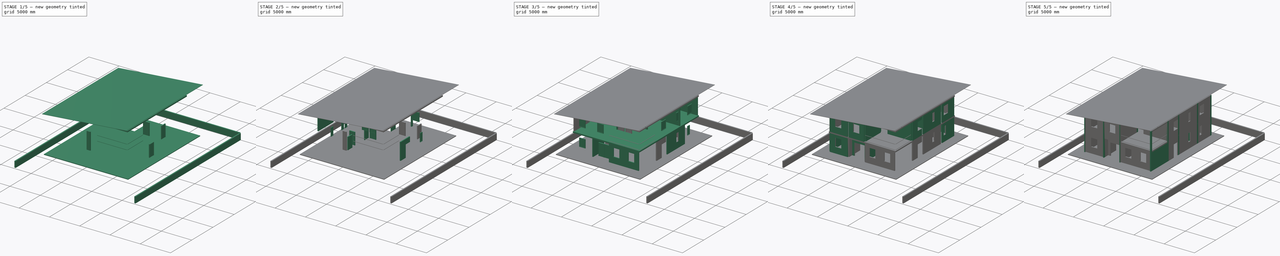
[diagram: build sequence overview — one tinted view per stage of 5, left to right]
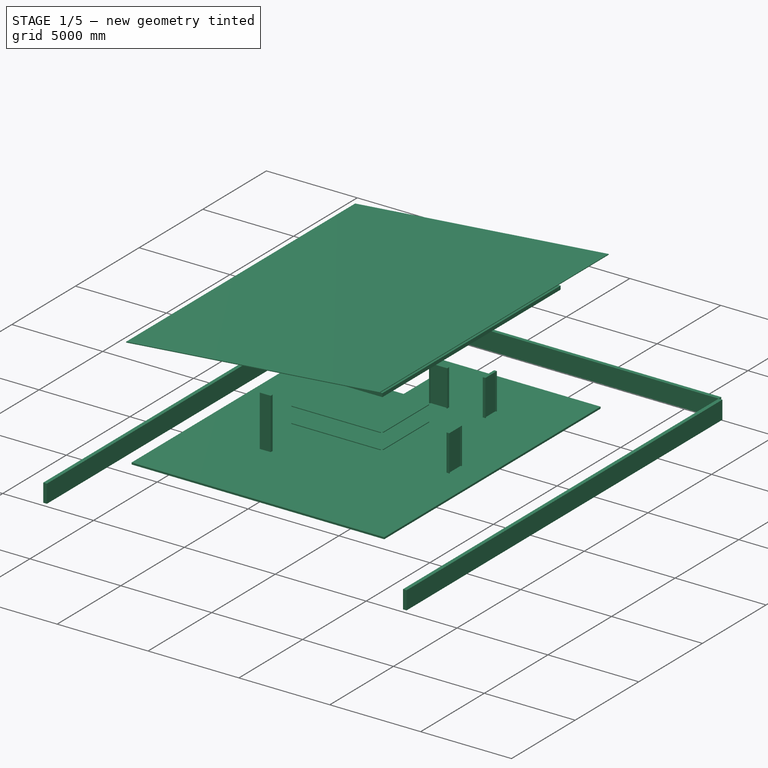
[diagram: stage 1 of 5 — iso view after this stage's code; geometry added in this stage tinted green]
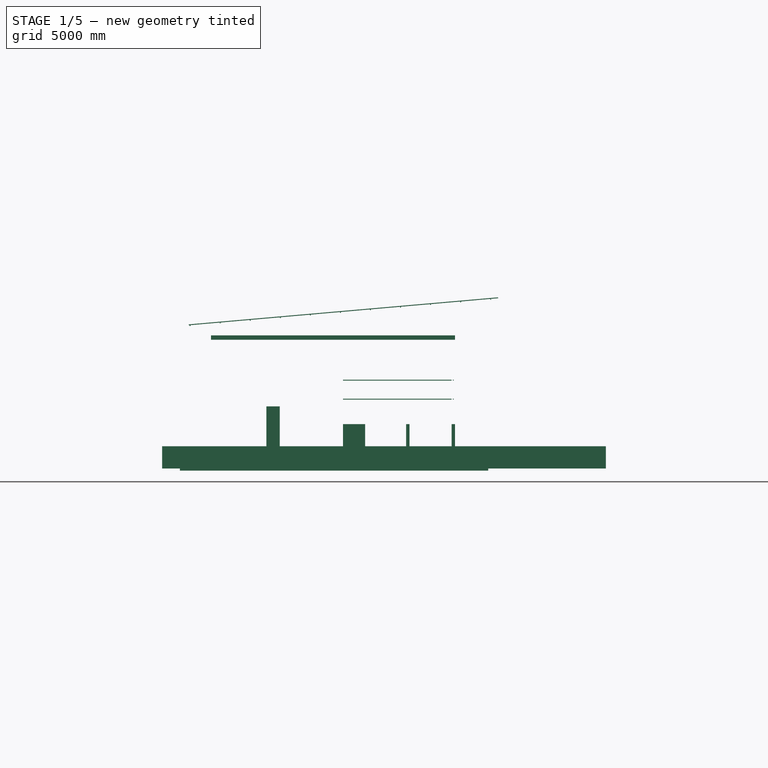
[diagram: stage 1 of 5 — front view after this stage's code; geometry added in this stage tinted green]
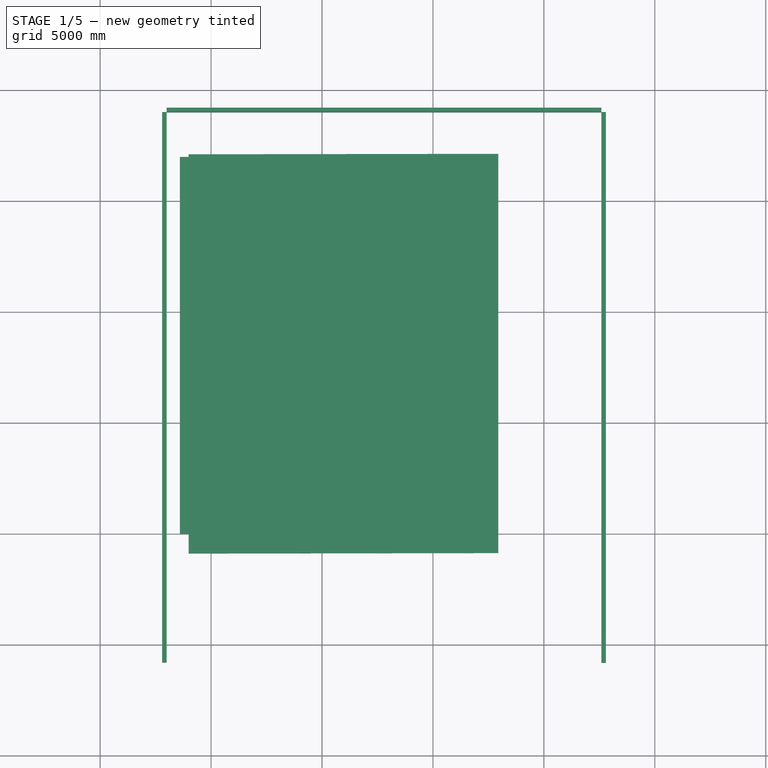
[diagram: stage 1 of 5 — top view after this stage's code; geometry added in this stage tinted green]
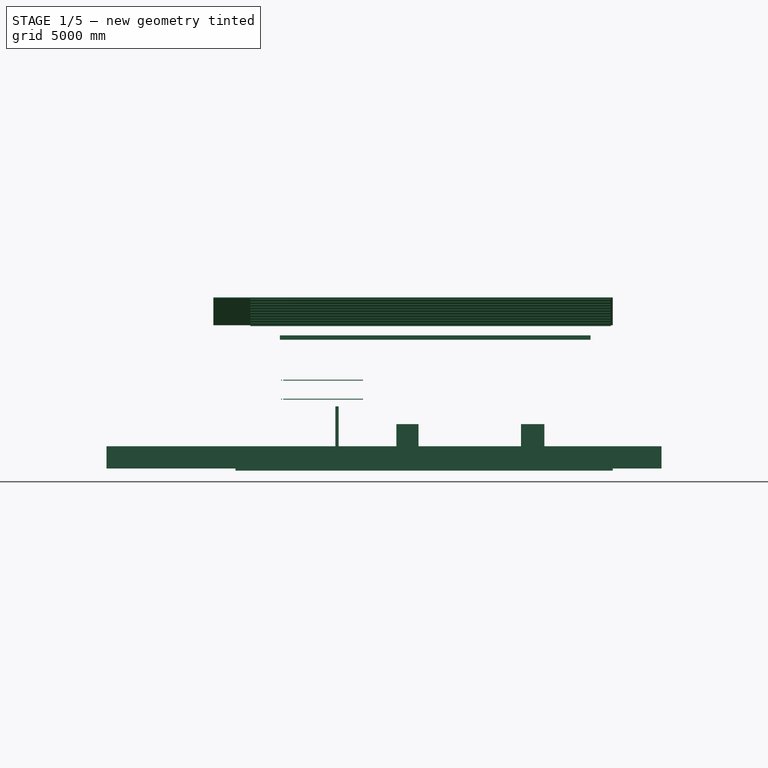
[diagram: stage 1 of 5 — right view after this stage's code; geometry added in this stage tinted green]
FCSTD DOCUMENT  (FreeCAD 0.15R4671 (Git))
Label: Document
License: All rights reserved
LicenseURL: http://en.wikipedia.org/wiki/All_rights_reserved
objects: Part::Part2DObjectPython×243, Part::FeaturePython×123, Sketcher::SketchObject×41, App::FeaturePython×27, Part::Extrusion×25, Part::Feature×21, App::DocumentObjectGroup×10, Part::Cut×3, App::DocumentObjectGroupPython×1, Drawing::FeaturePage×1
note: 463 computed .brp shape members not serialized (recipe doc carries the construction recipe); baked Part::Feature solids carry a one-line shape summary decoded from their .brp

FEATURE [Part::Part2DObjectPython] Line094  # Draft 2D object (typed FeaturePython)
  ChamferSize = 0
  Closed = false
  End = (15259.7,16000,6000)
  FilletRadius = 0
  Length = 18706.8
  MakeFace = true
  Points = (2) [(-3447.1,16000,6000),(15259.7,16000,6000)]
  Start = (-3447.1,16000,6000)
FEATURE [Part::Part2DObjectPython] Line095  # Draft 2D object (typed FeaturePython)
  ChamferSize = 0
  Closed = false
  End = (15000,2000,6000)
  FilletRadius = 0
  Length = 18000
  MakeFace = true
  Points = (2) [(-3000,2000,6000),(15000,2000,6000)]
  Start = (-3000,2000,6000)
FEATURE [Part::Part2DObjectPython] Line097  # Draft 2D object (typed FeaturePython)
  ChamferSize = 0
  Closed = false
  End = (10995,-2000,6000)
  FilletRadius = 0
  Length = 20565.3
  MakeFace = true
  Points = (2) [(10995,18565.3,6000),(10995,-2000,6000)]
  Start = (10995,18565.3,6000)
FEATURE [Part::Part2DObjectPython] Line098  # Draft 2D object (typed FeaturePython)
  ChamferSize = 0
  Closed = false
  End = (16572.2,5900,6000)
  FilletRadius = 0
  Length = 17589.6
  MakeFace = true
  Points = (2) [(-1017.37,5900,6000),(16572.2,5900,6000)]
  Start = (-1017.37,5900,6000)
FEATURE [Part::Part2DObjectPython] Line099  # Draft 2D object (typed FeaturePython)
  ChamferSize = 0
  Closed = false
  End = (5945,-647.865,6000)
  FilletRadius = 0
  Length = 7788.14
  MakeFace = true
  Points = (2) [(5945,7140.27,6000),(5945,-647.865,6000)]
  Start = (5945,7140.27,6000)
FEATURE [Part::Part2DObjectPython] Line100  # Draft 2D object (typed FeaturePython)
  ChamferSize = 0
  Closed = false
  End = (16107.5,2150,6000)
  FilletRadius = 0
  Length = 14487.5
  MakeFace = true
  Points = (2) [(1620,2150,6000),(16107.5,2150,6000)]
  Start = (1620,2150,6000)
FEATURE [Part::Part2DObjectPython] Line101  # Draft 2D object (typed FeaturePython)
  ChamferSize = 0
  Closed = false
  End = (10845,-331.68,6000)
  FilletRadius = 0
  Length = 7481.68
  MakeFace = true
  Points = (2) [(10845,7150,6000),(10845,-331.68,6000)]
  Start = (10845,7150,6000)
FEATURE [Part::Part2DObjectPython] Rectangle004  # Draft 2D object (typed FeaturePython)
  ChamferSize = 0
  FilletRadius = 0
  Height = -3750
  Length = 4900
  MakeFace = true
  Placement = pos=(5945,5900,6000) rot=(0,0,1;0rad)
FEATURE [Part::Extrusion] Extrusion005
  Base = -> Rectangle004
  Dir = (0,0,-200)
  Solid = true
FEATURE [Part::Part2DObjectPython] Line102  # Draft 2D object (typed FeaturePython)
  ChamferSize = 0
  Closed = false
  End = (-5,18537.2,6000)
  FilletRadius = 0
  Length = 19254.8
  MakeFace = true
  Points = (2) [(-5,-717.619,6000),(-5,18537.2,6000)]
  Start = (-5,-717.619,6000)
FEATURE [Part::Part2DObjectPython] Rectangle005  # Draft 2D object (typed FeaturePython)
  ChamferSize = 0
  FilletRadius = 0
  Height = 14000
  Length = 11000
  MakeFace = true
  Placement = pos=(-5,2000,6000) rot=(0,0,1;0rad)
FEATURE [Part::Extrusion] Extrusion006
  Base = -> Rectangle005
  Dir = (0,0,-200)
  Solid = true
FEATURE [Part::Cut] Cut001  label="Roof Slab level 3"
  Base = -> Extrusion006
  Tool = -> Extrusion005
FEATURE [Part::Part2DObjectPython] Line105  # Draft 2D object (typed FeaturePython)
  ChamferSize = 0
  Closed = false
  End = (5945,2000,3000)
  FilletRadius = 0
  Length = 6000
  MakeFace = true
  Points = (2) [(5945,2000,9000),(5945,2000,3000)]
  Start = (5945,2000,9000)
FEATURE [Part::Part2DObjectPython] Line106  # Draft 2D object (typed FeaturePython)
  ChamferSize = 0
  Closed = false
  End = (5945,2150,3000)
  FilletRadius = 0
  Length = 6000
  MakeFace = true
  Points = (2) [(5945,2150,9000),(5945,2150,3000)]
  Start = (5945,2150,9000)
FEATURE [Part::Part2DObjectPython] Line107  # Draft 2D object (typed FeaturePython)
  ChamferSize = 0
  Closed = false
  End = (5945,1518.36,3000)
  FilletRadius = 0
  Length = 631.638
  MakeFace = true
  Points = (2) [(5945,2150,3000),(5945,1518.36,3000)]
  Start = (5945,2150,3000)
FEATURE [Part::Part2DObjectPython] Line108  # Draft 2D object (typed FeaturePython)
  ChamferSize = 0
  Closed = false
  End = (5945,3000,4000)
  FilletRadius = 0
  Length = 1000
  MakeFace = true
  Points = (2) [(5945,2000,4000),(5945,3000,4000)]
  Start = (5945,2000,4000)
FEATURE [Part::Part2DObjectPython] Line109  # Draft 2D object (typed FeaturePython)
  ChamferSize = 0
  Closed = false
  End = (5945,2150,3632.83)
  FilletRadius = 0
  Length = 150
  MakeFace = true
  Points = (2) [(5945,2000,3632.83),(5945,2150,3632.83)]
  Start = (5945,2000,3632.83)
FEATURE [Part::Part2DObjectPython] Line110  # Draft 2D object (typed FeaturePython)
  ChamferSize = 0
  Closed = false
  End = (5945,2075,4000)
  FilletRadius = 0
  Length = 900
  MakeFace = true
  Points = (2) [(5945,2075,3100),(5945,2075,4000)]
  Start = (5945,2075,3100)
FEATURE [Part::Part2DObjectPython] Line111  # Draft 2D object (typed FeaturePython)
  ChamferSize = 0
  Closed = false
  End = (5945,3000,3960)
  FilletRadius = 0
  Length = 1000
  MakeFace = true
  Points = (2) [(5945,2000,3960),(5945,3000,3960)]
  Start = (5945,2000,3960)
FEATURE [Part::Part2DObjectPython] Line112  # Draft 2D object (typed FeaturePython)
  ChamferSize = 0
  Closed = false
  End = (5945,2075.02,4000)
  FilletRadius = 0
  Length = 367.171
  MakeFace = true
  Points = (2) [(5945,2075.02,3632.83),(5945,2075.02,4000)]
  Start = (5945,2075.02,3632.83)
FEATURE [Part::Part2DObjectPython] Line113  # Draft 2D object (typed FeaturePython)
  ChamferSize = 0
  Closed = false
  End = (5945,2095,4000)
  FilletRadius = 0
  Length = 367.171
  MakeFace = true
  Points = (2) [(5945,2095,3632.83),(5945,2095,4000)]
  Start = (5945,2095,3632.83)
FEATURE [Part::Part2DObjectPython] Line114  # Draft 2D object (typed FeaturePython)
  ChamferSize = 0
  Closed = false
  End = (5945,2055,4000)
  FilletRadius = 0
  Length = 367.171
  MakeFace = true
  Points = (2) [(5945,2055,3632.83),(5945,2055,4000)]
  Start = (5945,2055,3632.83)
FEATURE [Part::Part2DObjectPython] Line115  # Draft 2D object (typed FeaturePython)
  ChamferSize = 0
  Closed = false
  End = (5945,1518.36,3100)
  FilletRadius = 0
  Length = 631.638
  MakeFace = true
  Points = (2) [(5945,2150,3100),(5945,1518.36,3100)]
  Start = (5945,2150,3100)
FEATURE [Part::Part2DObjectPython] Line116  # Draft 2D object (typed FeaturePython)
  ChamferSize = 0
  Closed = false
  End = (5945,1518.36,3140)
  FilletRadius = 0
  Length = 631.638
  MakeFace = true
  Points = (2) [(5945,2150,3140),(5945,1518.36,3140)]
  Start = (5945,2150,3140)
FEATURE [Part::Part2DObjectPython] Rectangle006  # Draft 2D object (typed FeaturePython)
  ChamferSize = 0
  FilletRadius = 0
  Height = -40
  Length = 40
  MakeFace = true
  Placement = pos=(5945,2055,4000) rot=(0.57735,0.57735,0.57735;2.0944rad)
FEATURE [Part::Part2DObjectPython] Rectangle007  # Draft 2D object (typed FeaturePython)
  ChamferSize = 0
  FilletRadius = 0
  Height = -40
  Length = 40
  MakeFace = true
  Placement = pos=(5945,2055,3140) rot=(0.57735,0.57735,0.57735;2.0944rad)
FEATURE [Part::Extrusion] Extrusion007
  Base = -> Rectangle006
  Dir = (4900,0,0)
  Solid = true
FEATURE [Part::Extrusion] Extrusion008
  Base = -> Rectangle007
  Dir = (4900,0,0)
  Solid = true
FEATURE [Part::Part2DObjectPython] Line117  # Draft 2D object (typed FeaturePython)
  ChamferSize = 0
  Closed = false
  End = (9920,2150,3000)
  FilletRadius = 0
  Length = 2000
  MakeFace = true
  Points = (2) [(11920,2150,3000),(9920,2150,3000)]
  Start = (11920,2150,3000)
FEATURE [Part::Part2DObjectPython] Line118  # Draft 2D object (typed FeaturePython)
  ChamferSize = 0
  Closed = false
  End = (11308.3,2150,3100)
  FilletRadius = 0
  Length = 463.293
  MakeFace = true
  Points = (2) [(10845,2150,3100),(11308.3,2150,3100)]
  Start = (10845,2150,3100)
FEATURE [Part::Part2DObjectPython] Line119  # Draft 2D object (typed FeaturePython)
  ChamferSize = 0
  Closed = false
  End = (11308.3,2150,3140)
  FilletRadius = 0
  Length = 463.293
  MakeFace = true
  Points = (2) [(10845,2150,3140),(11308.3,2150,3140)]
  Start = (10845,2150,3140)
FEATURE [Part::Part2DObjectPython] Line120  # Draft 2D object (typed FeaturePython)
  ChamferSize = 0
  Closed = false
  End = (11308.3,2150,3960)
  FilletRadius = 0
  Length = 463.293
  MakeFace = true
  Points = (2) [(10845,2150,3960),(11308.3,2150,3960)]
  Start = (10845,2150,3960)
FEATURE [Part::Part2DObjectPython] Line121  # Draft 2D object (typed FeaturePython)
  ChamferSize = 0
  Closed = false
  End = (11308.3,2150,4000)
  FilletRadius = 0
  Length = 463.293
  MakeFace = true
  Points = (2) [(10845,2150,4000),(11308.3,2150,4000)]
  Start = (10845,2150,4000)
FEATURE [Part::Part2DObjectPython] Line122  # Draft 2D object (typed FeaturePython)
  ChamferSize = 0
  Closed = false
  End = (10995,2150,4000)
  FilletRadius = 0
  Length = 900
  MakeFace = true
  Points = (2) [(10995,2150,3100),(10995,2150,4000)]
  Start = (10995,2150,3100)
FEATURE [Part::Part2DObjectPython] Line123  # Draft 2D object (typed FeaturePython)
  ChamferSize = 0
  Closed = false
  End = (10845,2150,4000)
  FilletRadius = 0
  Length = 900
  MakeFace = true
  Points = (2) [(10845,2150,3100),(10845,2150,4000)]
  Start = (10845,2150,3100)
FEATURE [Part::Part2DObjectPython] Line124  # Draft 2D object (typed FeaturePython)
  ChamferSize = 0
  Closed = false
  End = (10845,2150,3774.18)
  FilletRadius = 0
  Length = 150
  MakeFace = true
  Points = (2) [(10995,2150,3774.18),(10845,2150,3774.18)]
  Start = (10995,2150,3774.18)
FEATURE [Part::Part2DObjectPython] Line125  # Draft 2D object (typed FeaturePython)
  ChamferSize = 0
  Closed = false
  End = (10920,2150,4000)
  FilletRadius = 0
  Length = 900
  MakeFace = true
  Points = (2) [(10920,2150,3100),(10920,2150,4000)]
  Start = (10920,2150,3100)
FEATURE [Part::Part2DObjectPython] Line126  # Draft 2D object (typed FeaturePython)
  ChamferSize = 0
  Closed = false
  End = (10940,2150,4000)
  FilletRadius = 0
  Length = 900
  MakeFace = true
  Points = (2) [(10940,2150,3100),(10940,2150,4000)]
  Start = (10940,2150,3100)
FEATURE [Part::Part2DObjectPython] Line127  # Draft 2D object (typed FeaturePython)
  ChamferSize = 0
  Closed = false
  End = (10900,2150,4000)
  FilletRadius = 0
  Length = 900
  MakeFace = true
  Points = (2) [(10900,2150,3100),(10900,2150,4000)]
  Start = (10900,2150,3100)
FEATURE [Part::Part2DObjectPython] Rectangle008  # Draft 2D object (typed FeaturePython)
  ChamferSize = 0
  FilletRadius = 0
  Height = 40
  Length = -40
  MakeFace = true
  Placement = pos=(10900,2150,3960) rot=(0,0.707107,0.707107;3.14159rad)
FEATURE [Part::Part2DObjectPython] Rectangle009  # Draft 2D object (typed FeaturePython)
  ChamferSize = 0
  FilletRadius = 0
  Height = -40
  Length = -40
  MakeFace = true
  Placement = pos=(10900,2150,3140) rot=(0,0.707107,0.707107;3.14159rad)
FEATURE [Part::Extrusion] Extrusion009
  Base = -> Rectangle009
  Dir = (0,3600,-1e-12)
  Solid = true
FEATURE [Part::Extrusion] Extrusion010
  Base = -> Rectangle008
  Dir = (0,3600,-1e-12)
  Solid = true
FEATURE [Sketcher::SketchObject] Sketch060
  Placement = pos=(8795,13474.6,138.247) rot=(0.57735,-0.57735,-0.57735;2.0944rad)
  sketch-geometry (8):
    g0: LineSegment StartX=0 StartY=0 StartZ=0 EndX=900 EndY=0 EndZ=0
    g1: LineSegment StartX=900 StartY=0 StartZ=0 EndX=900 EndY=2000 EndZ=0
    g2: LineSegment StartX=900 StartY=2000 StartZ=0 EndX=0 EndY=2000 EndZ=0
    g3: LineSegment StartX=0 StartY=2000 StartZ=0 EndX=0 EndY=0 EndZ=0
    g4: LineSegment StartX=50 StartY=0 StartZ=0 EndX=850 EndY=0 EndZ=0
    g5: LineSegment StartX=850 StartY=0 StartZ=0 EndX=850 EndY=1950 EndZ=0
    g6: LineSegment StartX=850 StartY=1950 StartZ=0 EndX=50 EndY=1950 EndZ=0
    g7: LineSegment StartX=50 StartY=1950 StartZ=0 EndX=50 EndY=0 EndZ=0
  constraints (23):
    c: Coincident(g0,g1)
    c: Coincident(g1,g2)
    c: Coincident(g2,g3)
    c: Coincident(g3,g0)
    c: Horizontal(g0)
    c: Horizontal(g2)
    c: Vertical(g1)
    c: Vertical(g3)
    c: Coincident(g4,g5)
    c: Coincident(g5,g6)
    c: Coincident(g6,g7)
    c: Coincident(g7,g4)
    c: Horizontal(g4)
    c: Horizontal(g6)
    c: Vertical(g5)
    c: Vertical(g7)
    c: DistanceY(g1) = 2000
    c: DistanceX(g0) = 900
    c: DistanceY(g6,g2) = 50
    c: DistanceX(g2,g6) = 50
    c: DistanceX(g4,g0) = 50
    c: DistanceY(g0,g4) = 0
    c: Coincident(g0,g-1)
FEATURE [Part::FeaturePython] Window050  label="Window048"  # WARN: FeaturePython — macro-defined, semantics opaque (R4)
  Base = -> Sketch060
  Height = 2000
  HoleDepth = 0
  MoveWithHost = true
  Normal = (1,0,0)
  Placement = pos=(0,445.38,-138.247) rot=(0,0,1;0rad)
  Preset = 6
  Role = 1
  Width = 900
  WindowParts = OuterFrame | Frame | Wire0,Wire1 | 150.0 | 0.0 | Door | Solid panel | Wire1 | 50.0 | 50.0
FEATURE [App::DocumentObjectGroup] Group005  label="external railings"
  Group = -> [Extrusion007,Extrusion008,Extrusion009,Extrusion010]
FEATURE [App::DocumentObjectGroup] Group006  label="sketches"
  Group = -> [Rectangle011,Face,Rectangle010,Line142,Line128]
FEATURE [Sketcher::SketchObject] Sketch061
  Placement = pos=(6504.33,12870,252.819) rot=(1,0,0;1.5708rad)
  sketch-geometry (8):
    g0: LineSegment StartX=0 StartY=0 StartZ=0 EndX=1000 EndY=0 EndZ=0
    g1: LineSegment StartX=1000 StartY=0 StartZ=0 EndX=1000 EndY=2000 EndZ=0
    g2: LineSegment StartX=1000 StartY=2000 StartZ=0 EndX=0 EndY=2000 EndZ=0
    g3: LineSegment StartX=0 StartY=2000 StartZ=0 EndX=0 EndY=0 EndZ=0
    g4: LineSegment StartX=50 StartY=0 StartZ=0 EndX=950 EndY=0 EndZ=0
    g5: LineSegment StartX=950 StartY=0 StartZ=0 EndX=950 EndY=1950 EndZ=0
    g6: LineSegment StartX=950 StartY=1950 StartZ=0 EndX=50 EndY=1950 EndZ=0
    g7: LineSegment StartX=50 StartY=1950 StartZ=0 EndX=50 EndY=0 EndZ=0
  constraints (23):
    c: Coincident(g0,g1)
    c: Coincident(g1,g2)
    c: Coincident(g2,g3)
    c: Coincident(g3,g0)
    c: Horizontal(g0)
    c: Horizontal(g2)
    c: Vertical(g1)
    c: Vertical(g3)
    c: Coincident(g4,g5)
    c: Coincident(g5,g6)
    c: Coincident(g6,g7)
    c: Coincident(g7,g4)
    c: Horizontal(g4)
    c: Horizontal(g6)
    c: Vertical(g5)
    c: Vertical(g7)
    c: DistanceY(g1) = 2000
    c: DistanceX(g0) = 1000
    c: DistanceY(g6,g2) = 50
    c: DistanceX(g2,g6) = 50
    c: DistanceX(g4,g0) = 50
    c: DistanceY(g0,g4) = 0
    c: Coincident(g0,g-1)
FEATURE [Part::FeaturePython] Window051  label="Window049"  # WARN: FeaturePython — macro-defined, semantics opaque (R4)
  Base = -> Sketch061
  Height = 2000
  HoleDepth = 0
  MoveWithHost = true
  Normal = (0,1,0)
  Placement = pos=(-559.328,0,-252.819) rot=(0,0,1;0rad)
  Preset = 6
  Role = 1
  Width = 1000
  WindowParts = OuterFrame | Frame | Wire0,Wire1 | 150.0 | 0.0 | Door | Solid panel | Wire1 | 50.0 | 50.0
FEATURE [Part::Extrusion] Extrusion  label="Floor Slab Level 1"
  Base = -> DWire
  Dir = (0,0,-100)
  Solid = true
FEATURE [Part::Part2DObjectPython] Line211  # Draft 2D object (typed FeaturePython)
  ChamferSize = 0
  Closed = false
  End = (10995,15417.2,0)
  FilletRadius = 0
  Length = 6391.78
  MakeFace = true
  Points = (2) [(10995,21809,0),(10995,15417.2,0)]
  Start = (10995,21809,0)
FEATURE [Part::Part2DObjectPython] Line212  # Draft 2D object (typed FeaturePython)
  ChamferSize = 0
  Closed = false
  End = (17595,20689,0)
  FilletRadius = 0
  Length = 28788
  MakeFace = true
  Points = (2) [(17595,-8099,0),(17595,20689,0)]
  Start = (17595,-8099,0)
FEATURE [Part::Part2DObjectPython] Line213  # Draft 2D object (typed FeaturePython)
  ChamferSize = 0
  Closed = false
  End = (10009,16000,0)
  FilletRadius = 0
  Length = 15035
  MakeFace = true
  Points = (2) [(25044,16000,0),(10009,16000,0)]
  Start = (25044,16000,0)
FEATURE [Part::Part2DObjectPython] Line214  # Draft 2D object (typed FeaturePython)
  ChamferSize = 0
  Closed = false
  End = (-6207,19000,0)
  FilletRadius = 0
  Length = 30892
  MakeFace = true
  Points = (2) [(24685,19000,0),(-6207,19000,0)]
  Start = (24685,19000,0)
FEATURE [Part::Part2DObjectPython] Line215  # Draft 2D object (typed FeaturePython)
  ChamferSize = 0
  Closed = false
  End = (-5,22480,0)
  FilletRadius = 0
  Length = 6480
  MakeFace = true
  Points = (2) [(-5,16000,0),(-5,22480,0)]
  Start = (-5,16000,0)
FEATURE [Part::Part2DObjectPython] Line216  # Draft 2D object (typed FeaturePython)
  ChamferSize = 0
  Closed = false
  End = (-2005,-10740,0)
  FilletRadius = 0
  Length = 32773
  MakeFace = true
  Points = (2) [(-2005,22033,0),(-2005,-10740,0)]
  Start = (-2005,22033,0)
FEATURE [Part::Part2DObjectPython] Line217  # Draft 2D object (typed FeaturePython)
  ChamferSize = 0
  Closed = false
  End = (21238,2000,0)
  FilletRadius = 0
  Length = 9472.71
  MakeFace = true
  Points = (2) [(11765.3,2000,0),(21238,2000,0)]
  Start = (11765.3,2000,0)
FEATURE [Part::Part2DObjectPython] Line218  # Draft 2D object (typed FeaturePython)
  ChamferSize = 0
  Closed = false
  End = (22671,-5800,0)
  FilletRadius = 0
  Length = 28609
  MakeFace = true
  Points = (2) [(-5938,-5800,0),(22671,-5800,0)]
  Start = (-5938,-5800,0)
FEATURE [Part::Part2DObjectPython] Line219  # Draft 2D object (typed FeaturePython)
  ChamferSize = 0
  Closed = false
  End = (17595,-5815,0)
  FilletRadius = 0
  Length = 24815
  MakeFace = true
  Points = (2) [(17595,19000,0),(17595,-5815,0)]
  Start = (17595,19000,0)
FEATURE [Part::Part2DObjectPython] Line220  # Draft 2D object (typed FeaturePython)
  ChamferSize = 0
  Closed = false
  End = (-2005,19000,0)
  FilletRadius = 0
  Length = 19600
  MakeFace = true
  Points = (2) [(17595,19000,0),(-2005,19000,0)]
  Start = (17595,19000,0)
FEATURE [Part::Part2DObjectPython] Line221  # Draft 2D object (typed FeaturePython)
  ChamferSize = 0
  Closed = false
  End = (-2005,-5800,0)
  FilletRadius = 0
  Length = 24800
  MakeFace = true
  Points = (2) [(-2005,19000,0),(-2005,-5800,0)]
  Start = (-2005,19000,0)
FEATURE [Part::FeaturePython] Wall081  # WARN: FeaturePython — macro-defined, semantics opaque (R4)
  Align = 1
  Base = -> Line219
  Face = 0
  Height = 1000
  Length = 0
  MoveWithHost = false
  Normal = (0,0,0)
  Role = 0
  Width = 200
FEATURE [Part::FeaturePython] Wall082  # WARN: FeaturePython — macro-defined, semantics opaque (R4)
  Align = 0
  Base = -> Line221
  Face = 0
  Height = 1000
  Length = 0
  MoveWithHost = false
  Normal = (0,0,0)
  Role = 0
  Width = 200
FEATURE [Part::FeaturePython] Wall083  # WARN: FeaturePython — macro-defined, semantics opaque (R4)
  Align = 0
  Base = -> Line220
  Face = 0
  Height = 1000
  Length = 0
  MoveWithHost = false
  Normal = (0,0,0)
  Role = 0
  Width = 200
FEATURE [Part::Part2DObjectPython] Line222  # Draft 2D object (typed FeaturePython)
  ChamferSize = 0
  Closed = false
  End = (-3795,0,0)
  FilletRadius = 0
  Length = 9665
  MakeFace = true
  Points = (2) [(5870,0,0),(-3795,0,0)]
  Start = (5870,0,0)
FEATURE [Part::Feature] Block_Car_05_18
  Placement = pos=(13753.6,-1979.05,0) rot=(0,0,1;1.5702rad)
  shape: bbox 1966 x 4375 x 2e-07 mm, 0 faces, 0 solids (baked)
FEATURE [Part::Feature] Block_Subcompact_Car_18
  Placement = pos=(16130.3,163.492,0) rot=(0,0,-1;1.5708rad)
  shape: bbox 1899 x 3606 x 2e-07 mm, 0 faces, 0 solids (baked)
FEATURE [App::DocumentObjectGroup] Interior___Furniture  label="Interior - Furniture"
  Group = -> [Block_Car_05_18,Block_Subcompact_Car_18]
FEATURE [App::DocumentObjectGroup] _d_vehicles  label="2d vehicles"
  Group = -> [Interior___Furniture]
FEATURE [Part::Part2DObjectPython] Line226  # Draft 2D object (typed FeaturePython)
  ChamferSize = 0
  Closed = false
  End = (10009,17000,0)
  FilletRadius = 0
  Length = 15035
  MakeFace = true
  Points = (2) [(25044,17000,0),(10009,17000,0)]
  Start = (25044,17000,0)
FEATURE [Part::Part2DObjectPython] DWire002  # Draft 2D object (typed FeaturePython)
  ChamferSize = 0
  Closed = true
  End = (-5,2000,0)
  FilletRadius = 0
  Length = 51700
  MakeFace = true
  Points = (8) [(-5,16000,0),(10995,16000,0),(10995,2000,0),(5795,2000,0),(5795,2850,0),(3245,2850,0),(3245,2000,0),(-5,2000,0)]
  Start = (-5,16000,0)
FEATURE [Part::Feature] Face010
  shape: bbox 13900 x 17000 x 2e-07 mm, 1 faces, 0 solids (baked)
FEATURE [Part::Cut] Cut002
  Base = -> Face010
  Tool = -> DWire002
FEATURE [Part::Extrusion] Extrusion022  label="Around House side walk"
  Base = -> Cut002
  Dir = (0,0,-100)
  Solid = true
FEATURE [Part::Part2DObjectPython] Line227  # Draft 2D object (typed FeaturePython)
  ChamferSize = 0
  Closed = false
  End = (-1337.85,4650,0)
  FilletRadius = 0
  Length = 4432.85
  MakeFace = true
  Points = (2) [(3095,4650,0),(-1337.85,4650,0)]
  Start = (3095,4650,0)
FEATURE [Part::Part2DObjectPython] Line228  # Draft 2D object (typed FeaturePython)
  ChamferSize = 0
  Closed = false
  End = (3094.86,5159.52,0)
  FilletRadius = 0
  Length = 409.518
  MakeFace = true
  Points = (2) [(3095,4750,0),(3094.86,5159.52,0)]
  Start = (3095,4750,0)
FEATURE [Part::Part2DObjectPython] Line229  # Draft 2D object (typed FeaturePython)
  ChamferSize = 0
  Closed = false
  End = (2494.86,5159.31,0)
  FilletRadius = 0
  Length = 921.768
  MakeFace = true
  Points = (2) [(2495.18,4237.54,0),(2494.86,5159.31,0)]
  Start = (2495.18,4237.54,0)
FEATURE [Part::Part2DObjectPython] Line230  # Draft 2D object (typed FeaturePython)
  ChamferSize = 0
  Closed = false
  End = (2495.03,4650,0)
  FilletRadius = 0
  Length = 599.965
  MakeFace = true
  Points = (2) [(3095,4650,0),(2495.03,4650,0)]
  Start = (3095,4650,0)
FEATURE [Part::FeaturePython] Wall084  # WARN: FeaturePython — macro-defined, semantics opaque (R4)
  Align = 1
  Base = -> Line230
  Face = 0
  Height = 2800
  Length = 0
  MoveWithHost = false
  Normal = (0,0,0)
  Role = 0
  Width = 150
FEATURE [Part::Part2DObjectPython] Line231  # Draft 2D object (typed FeaturePython)
  ChamferSize = 0
  Closed = false
  End = (10995,19207.2,3000)
  FilletRadius = 0
  Length = 3357.22
  MakeFace = true
  Points = (2) [(10995,15850,3000),(10995,19207.2,3000)]
  Start = (10995,15850,3000)
FEATURE [Part::Part2DObjectPython] Line232  # Draft 2D object (typed FeaturePython)
  ChamferSize = 0
  Closed = false
  End = (10995,19207.2,4000)
  FilletRadius = 0
  Length = 13157.2
  MakeFace = true
  Points = (2) [(10995,6050,4000),(10995,19207.2,4000)]
  Start = (10995,6050,4000)
FEATURE [Part::Part2DObjectPython] Line233  # Draft 2D object (typed FeaturePython)
  ChamferSize = 0
  Closed = false
  End = (-997.708,670,6373)
  FilletRadius = 0
  Length = 1276
  MakeFace = true
  Points = (2) [(-1108.92,670,7644.14),(-997.708,670,6373)]
  Start = (-1108.92,670,7644.14)
FEATURE [Part::Part2DObjectPython] Line234  # Draft 2D object (typed FeaturePython)
  ChamferSize = 0
  Closed = false
  End = (396.964,670,6495.01)
  FilletRadius = 0
  Length = 1276
  MakeFace = true
  Points = (2) [(285.753,670,7766.16),(396.964,670,6495.01)]
  Start = (285.753,670,7766.16)
FEATURE [Part::Part2DObjectPython] Line236  # Draft 2D object (typed FeaturePython)
  ChamferSize = 0
  Closed = false
  End = (-957.861,670,6376.48)
  FilletRadius = 0
  Length = 79.9999
  MakeFace = true
  Points = (2) [(-964.833,670,6456.18),(-957.861,670,6376.48)]
  Start = (-964.833,670,6456.18)
FEATURE [Part::Part2DObjectPython] Line237  # Draft 2D object (typed FeaturePython)
  ChamferSize = 0
  Closed = false
  End = (-1317.98,670,6385.13)
  FilletRadius = 0
  Length = 398
  MakeFace = true
  Points = (2) [(-921.499,670,6419.82),(-1317.98,670,6385.13)]
  Start = (-921.499,670,6419.82)
FEATURE [Part::Part2DObjectPython] Line238  # Draft 2D object (typed FeaturePython)
  ChamferSize = 0
  Closed = false
  End = (-1321.47,670,6424.98)
  FilletRadius = 0
  Length = 398
  MakeFace = true
  Points = (2) [(-924.985,670,6459.66),(-1321.47,670,6424.98)]
  Start = (-924.985,670,6459.66)
FEATURE [Part::Part2DObjectPython] Line239  # Draft 2D object (typed FeaturePython)
  ChamferSize = 0
  Closed = false
  End = (-1029.22,670,7651.11)
  FilletRadius = 0
  Length = 1236
  MakeFace = true
  Placement = pos=(39.8478,0,3.48623) rot=(0,0,1;0rad)
  Points = (2) [(-961.347,670,6416.33),(-1069.07,670,7647.63)]
  Start = (-921.499,670,6419.82)
FEATURE [Part::Part2DObjectPython] Rectangle013  # Draft 2D object (typed FeaturePython)
  ChamferSize = 0
  FilletRadius = 0
  Height = 40
  Length = 39.9998
  MakeFace = true
  Placement = pos=(-921.499,670,6419.82) rot=(0.543775,-0.593426,0.593426;2.14549rad)
FEATURE [Part::Part2DObjectPython] Rectangle014  # Draft 2D object (typed FeaturePython)
  ChamferSize = 0
  FilletRadius = 0
  Height = 40
  Length = 39.9998
  MakeFace = true
  Placement = pos=(433.326,670,6538.35) rot=(0.543775,-0.593426,0.593426;2.14549rad)
FEATURE [Part::Part2DObjectPython] Rectangle015  # Draft 2D object (typed FeaturePython)
  ChamferSize = 0
  FilletRadius = 0
  Height = 40
  Length = 39.9998
  MakeFace = true
  Placement = pos=(1788.15,670,6656.88) rot=(0.543775,-0.593426,0.593426;2.14549rad)
FEATURE [Part::Part2DObjectPython] Rectangle016  # Draft 2D object (typed FeaturePython)
  ChamferSize = 0
  FilletRadius = 0
  Height = 40
  Length = 39.9998
  MakeFace = true
  Placement = pos=(3142.98,670,6775.41) rot=(0.543775,-0.593426,0.593426;2.14549rad)
FEATURE [Part::Part2DObjectPython] Rectangle017  # Draft 2D object (typed FeaturePython)
  ChamferSize = 0
  FilletRadius = 0
  Height = 40
  Length = 39.9998
  MakeFace = true
  Placement = pos=(5852.62,670,7012.48) rot=(0.543775,-0.593426,0.593426;2.14549rad)
FEATURE [Part::Part2DObjectPython] Rectangle018  # Draft 2D object (typed FeaturePython)
  ChamferSize = 0
  FilletRadius = 0
  Height = 40
  Length = 39.9998
  MakeFace = true
  Placement = pos=(4497.8,670,6893.94) rot=(0.543775,-0.593426,0.593426;2.14549rad)
FEATURE [Part::Part2DObjectPython] Rectangle019  # Draft 2D object (typed FeaturePython)
  ChamferSize = 0
  FilletRadius = 0
  Height = 40
  Length = 39.9998
  MakeFace = true
  Placement = pos=(7207.45,670,7131.01) rot=(0.543775,-0.593426,0.593426;2.14549rad)
FEATURE [Part::Part2DObjectPython] Rectangle020  # Draft 2D object (typed FeaturePython)
  ChamferSize = 0
  FilletRadius = 0
  Height = 40
  Length = 39.9998
  MakeFace = true
  Placement = pos=(8562.27,670,7249.54) rot=(0.543775,-0.593426,0.593426;2.14549rad)
FEATURE [Part::Part2DObjectPython] Rectangle021  # Draft 2D object (typed FeaturePython)
  ChamferSize = 0
  FilletRadius = 0
  Height = 40
  Length = 39.9998
  MakeFace = true
  Placement = pos=(9917.1,670,7368.07) rot=(0.543775,-0.593426,0.593426;2.14549rad)
FEATURE [Part::Part2DObjectPython] Rectangle022  # Draft 2D object (typed FeaturePython)
  ChamferSize = 0
  FilletRadius = 0
  Height = 40
  Length = 39.9998
  MakeFace = true
  Placement = pos=(11271.9,670,7486.6) rot=(0.543775,-0.593426,0.593426;2.14549rad)
FEATURE [Part::Part2DObjectPython] Rectangle023  # Draft 2D object (typed FeaturePython)
  ChamferSize = 0
  FilletRadius = 0
  Height = 40
  Length = 39.9998
  MakeFace = true
  Placement = pos=(12626.7,670,7605.13) rot=(0.543775,-0.593426,0.593426;2.14549rad)
FEATURE [Part::Extrusion] Extrusion023
  Base = -> Rectangle013
  Dir = (0,16250,0)
  Solid = true
FEATURE [Part::Extrusion] Extrusion024
  Base = -> Rectangle014
  Dir = (-4e-12,16225,0)
  Solid = true
FEATURE [Part::Extrusion] Extrusion025
  Base = -> Rectangle015
  Dir = (0,16225,0)
  Solid = true
FEATURE [Part::Extrusion] Extrusion026
  Base = -> Rectangle016
  Dir = (0,16225,0)
  Solid = true
FEATURE [Part::Extrusion] Extrusion027
  Base = -> Rectangle018
  Dir = (0,16225,0)
  Solid = true
FEATURE [Part::Extrusion] Extrusion028
  Base = -> Rectangle017
  Dir = (0,16225,0)
  Solid = true
FEATURE [Part::Extrusion] Extrusion029
  Base = -> Rectangle019
  Dir = (0,16225,0)
  Solid = true
FEATURE [Part::Extrusion] Extrusion030
  Base = -> Rectangle020
  Dir = (0,16225,0)
  Solid = true
FEATURE [Part::Extrusion] Extrusion031
  Base = -> Rectangle021
  Dir = (0,16225,0)
  Solid = true
FEATURE [Part::Extrusion] Extrusion032
  Base = -> Rectangle022
  Dir = (0,16225,0)
  Solid = true
FEATURE [Part::Extrusion] Extrusion033
  Base = -> Rectangle023
  Dir = (0,16225,0)
  Solid = true
FEATURE [App::DocumentObjectGroup] Group004  label="roof"
  Group = -> [Clone,Clone004,Clone005,Clone006,Clone007,Clone008,Extrusion015,Extrusion016,Extrusion017,Extrusion018,Extrusion019,Extrusion020,Extrusion021,Rectangle012,Extrusion023,Extrusion024,Extrusion025,Extrusion026,Extrusion027,Extrusion028,Extrusion029,Extrusion030,Extrusion031,Extrusion032,Extrusion033]
FEATURE [Part::Feature] Face011
  Placement = pos=(12942,17000,7672.87) rot=(0.043578,-0.043578,-0.998099;1.5727rad)
  shape: bbox 13950 x 18000 x 1220 mm, 1 faces, 0 solids (baked)
FEATURE [Part::Extrusion] Extrusion035
  Base = -> Face011
  Dir = (-3.48623,0,39.8478)
  Solid = true
FEATURE [Part::Feature] Face014
  Placement = pos=(0,1690.02,0) rot=(0,0,1;0rad)
  shape: bbox 13950 x 2e-07 x 1260 mm, 1 faces, 0 solids (baked)
FEATURE [Part::Feature] Face015
  Placement = pos=(0,1670,0) rot=(0,0,1;0rad)
  shape: bbox 13950 x 2e-07 x 1260 mm, 1 faces, 0 solids (baked)
FEATURE [Part::Extrusion] Extrusion038
  Base = -> Face015
  Dir = (0,16250,0)
  Solid = true
FEATURE [App::FeaturePython] Dimension009  # Draft dimension (typed FeaturePython)
  Dimline = (34448,538,0)
  Direction = (0,0,0)
  Distance = 11000
  End = (36498.4,1849.61,0)
  Normal = (0,0,1)
  Start = (25498.4,1849.61,0)
FEATURE [App::FeaturePython] Dimension010  # Draft dimension (typed FeaturePython)
  Dimline = (26007,818,0)
  Direction = (0,0,0)
  Distance = 3250
  End = (28748.4,1849.61,0)
  Normal = (0,0,1)
  Start = (25498.4,1849.61,0)
FEATURE [App::FeaturePython] Dimension011  # Draft dimension (typed FeaturePython)
  Dimline = (28748.4,818,0)
  Direction = (0,0,0)
  Distance = 2550
  End = (31298.4,1849.61,0)
  Normal = (0,0,1)
  Start = (28748.4,1849.61,0)
FEATURE [App::FeaturePython] Dimension012  # Draft dimension (typed FeaturePython)
  Dimline = (31298.4,818,0)
  Direction = (0,0,0)
  Distance = 5200
  End = (36498.4,1849.61,0)
  Normal = (0,0,1)
  Start = (31298.4,1849.61,0)
FEATURE [App::FeaturePython] Dimension013  # Draft dimension (typed FeaturePython)
  Dimline = (28748,1151,0)
  Direction = (0,0,0)
  Distance = 150
  End = (28748.4,1849.61,0)
  Normal = (0,0,1)
  Start = (28598.4,1849.61,0)
FEATURE [App::FeaturePython] Dimension014  # Draft dimension (typed FeaturePython)
  Dimline = (28598.4,1151,0)
  Direction = (0,0,0)
  Distance = 150
  End = (25498.4,1849.61,0)
  Normal = (0,0,1)
  Start = (25648.4,1849.61,0)
FEATURE [App::FeaturePython] Dimension015  # Draft dimension (typed FeaturePython)
  Dimline = (28748.4,1151,0)
  Direction = (0,0,0)
  Distance = 150
  End = (31448.4,1849.61,0)
  Normal = (0,0,1)
  Start = (31298.4,1849.61,0)
FEATURE [App::FeaturePython] Dimension016  # Draft dimension (typed FeaturePython)
  Dimline = (31448.4,1151,0)
  Direction = (0,0,0)
  Distance = 150
  End = (36498.4,1849.61,0)
  Normal = (0,0,1)
  Start = (36348.4,1849.61,0)
FEATURE [App::FeaturePython] Dimension017  # Draft dimension (typed FeaturePython)
  Dimline = (31448.4,1151,0)
  Direction = (0,0,0)
  Distance = 1225
  End = (31448.4,1999.61,0)
  Normal = (0,0,1)
  Start = (32673.4,1999.61,0)
FEATURE [App::FeaturePython] Dimension018  # Draft dimension (typed FeaturePython)
  Dimline = (32673.4,1151,0)
  Direction = (0,0,0)
  Distance = 2450
  End = (35123.4,1999.61,0)
  Normal = (0,0,1)
  Start = (32673.4,1999.61,0)
FEATURE [App::FeaturePython] Dimension019  # Draft dimension (typed FeaturePython)
  Dimline = (35123.4,1151,0)
  Direction = (0,0,0)
  Distance = 1225
  End = (36348.4,1999.61,0)
  Normal = (0,0,1)
  Start = (35123.4,1999.61,0)
FEATURE [Sketcher::SketchObject] Sketch062
  Placement = pos=(10995,6109.53,185.542) rot=(0.57735,0.57735,0.57735;2.0944rad)
  sketch-geometry (8):
    g0: LineSegment StartX=0 StartY=0 StartZ=0 EndX=1000 EndY=0 EndZ=0
    g1: LineSegment StartX=1000 StartY=0 StartZ=0 EndX=1000 EndY=2000 EndZ=0
    g2: LineSegment StartX=1000 StartY=2000 StartZ=0 EndX=0 EndY=2000 EndZ=0
    g3: LineSegment StartX=0 StartY=2000 StartZ=0 EndX=0 EndY=0 EndZ=0
    g4: LineSegment StartX=50 StartY=0 StartZ=0 EndX=950 EndY=0 EndZ=0
    g5: LineSegment StartX=950 StartY=0 StartZ=0 EndX=950 EndY=1950 EndZ=0
    g6: LineSegment StartX=950 StartY=1950 StartZ=0 EndX=50 EndY=1950 EndZ=0
    g7: LineSegment StartX=50 StartY=1950 StartZ=0 EndX=50 EndY=0 EndZ=0
  constraints (23):
    c: Coincident(g0,g1)
    c: Coincident(g1,g2)
    c: Coincident(g2,g3)
    c: Coincident(g3,g0)
    c: Horizontal(g0)
    c: Horizontal(g2)
    c: Vertical(g1)
    c: Vertical(g3)
    c: Coincident(g4,g5)
    c: Coincident(g5,g6)
    c: Coincident(g6,g7)
    c: Coincident(g7,g4)
    c: Horizontal(g4)
    c: Horizontal(g6)
    c: Vertical(g5)
    c: Vertical(g7)
    c: DistanceY(g1) = 2000
    c: DistanceX(g0) = 1000
    c: DistanceY(g6,g2) = 50
    c: DistanceX(g2,g6) = 50
    c: DistanceX(g4,g0) = 50
    c: DistanceY(g0,g4) = 0
    c: Coincident(g0,g-1)
FEATURE [Part::FeaturePython] Window052  label="Window050"  # WARN: FeaturePython — macro-defined, semantics opaque (R4)
  Base = -> Sketch062
  Height = 2000
  HoleDepth = 0
  MoveWithHost = true
  Normal = (-1,0,0)
  Placement = pos=(0,1140.47,-185.542) rot=(0,0,1;0rad)
  Preset = 6
  Role = 1
  Width = 1000
  WindowParts = OuterFrame | Frame | Wire0,Wire1 | 150.0 | 0.0 | Door | Solid panel | Wire1 | 50.0 | 50.0
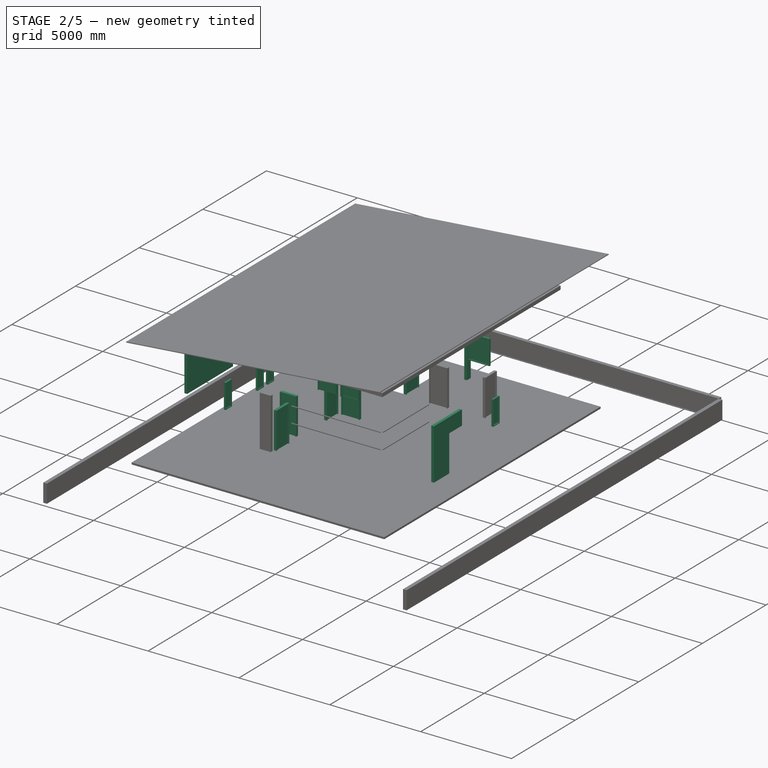
[diagram: stage 2 of 5 — iso view after this stage's code; geometry added in this stage tinted green]
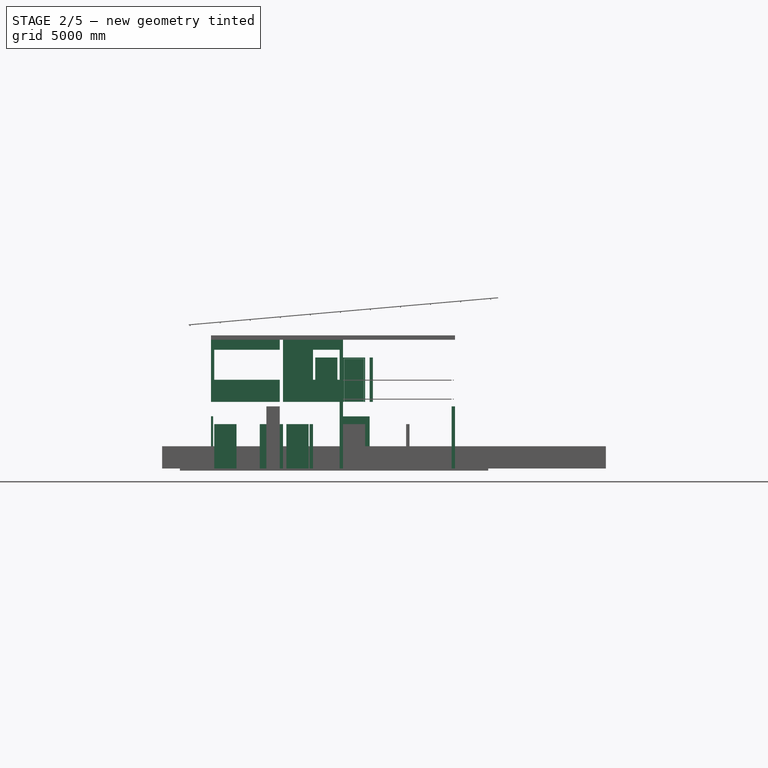
[diagram: stage 2 of 5 — front view after this stage's code; geometry added in this stage tinted green]
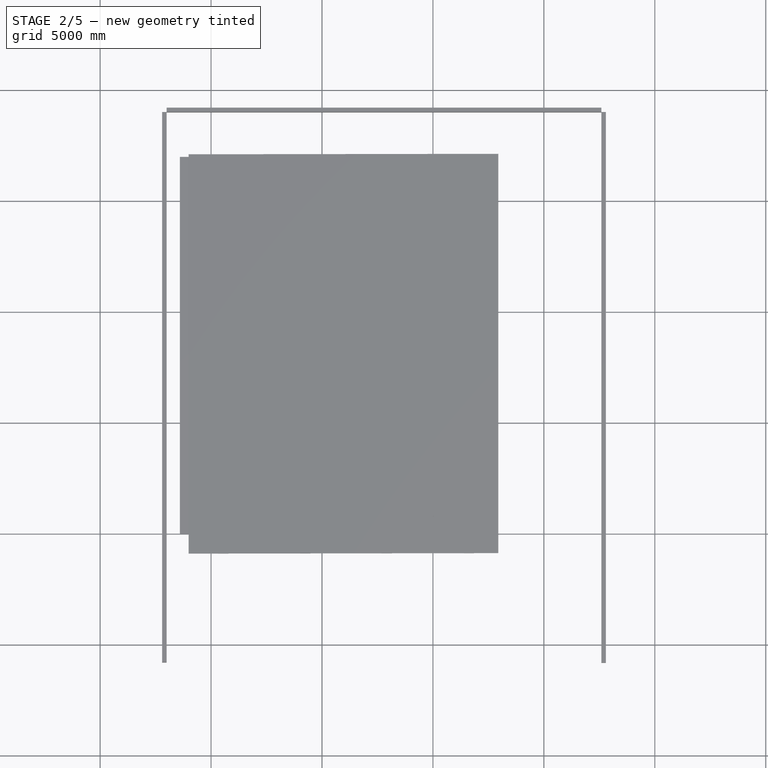
[diagram: stage 2 of 5 — top view after this stage's code; geometry added in this stage tinted green]
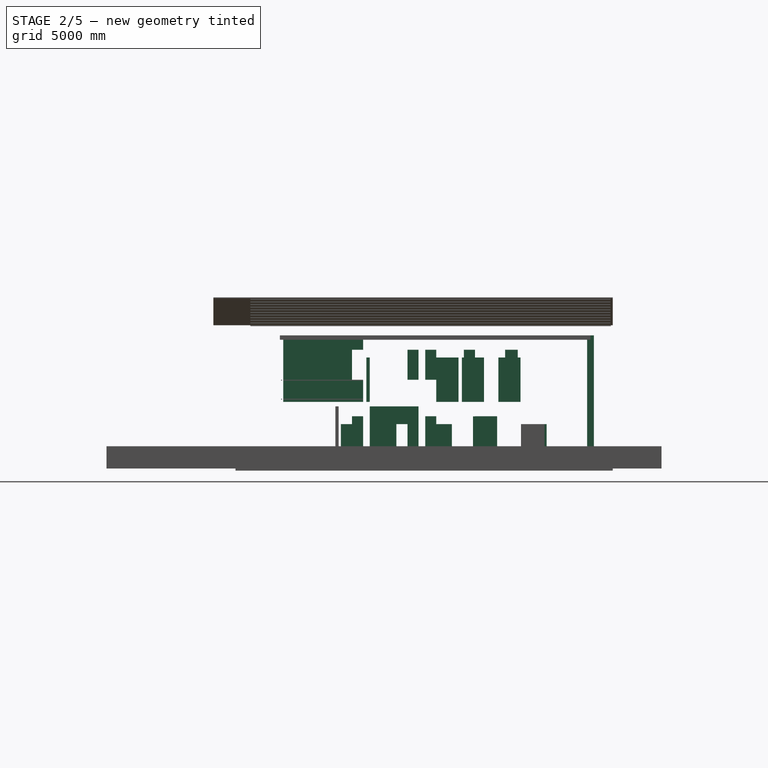
[diagram: stage 2 of 5 — right view after this stage's code; geometry added in this stage tinted green]
FEATURE [Part::FeaturePython] Structure002  # WARN: FeaturePython — macro-defined, semantics opaque (R4)
  Height = 6000
  Length = 150
  MoveWithHost = false
  Nodes = (2) [(0,0,0),(0,0,6000)]
  Normal = (0,0,0)
  Placement = pos=(5870,16000,0) rot=(0,0,1;0rad)
  Role = 1
  Width = 300
FEATURE [Sketcher::SketchObject] Sketch025
  Placement = pos=(5176.32,16000,3501.5) rot=(0,0.707107,0.707107;3.14159rad)
  sketch-geometry (8):
    g0: LineSegment StartX=0 StartY=0 StartZ=0 EndX=1200 EndY=0 EndZ=0
    g1: LineSegment StartX=1200 StartY=0 StartZ=0 EndX=1200 EndY=1350 EndZ=0
    g2: LineSegment StartX=1200 StartY=1350 StartZ=0 EndX=0 EndY=1350 EndZ=0
    g3: LineSegment StartX=0 StartY=1350 StartZ=0 EndX=0 EndY=0 EndZ=0
    g4: LineSegment StartX=50 StartY=50 StartZ=0 EndX=1150 EndY=50 EndZ=0
    g5: LineSegment StartX=1150 StartY=50 StartZ=0 EndX=1150 EndY=1300 EndZ=0
    g6: LineSegment StartX=1150 StartY=1300 StartZ=0 EndX=50 EndY=1300 EndZ=0
    g7: LineSegment StartX=50 StartY=1300 StartZ=0 EndX=50 EndY=50 EndZ=0
  constraints (23):
    c: Coincident(g0,g1)
    c: Coincident(g1,g2)
    c: Coincident(g2,g3)
    c: Coincident(g3,g0)
    c: Horizontal(g0)
    c: Horizontal(g2)
    c: Vertical(g1)
    c: Vertical(g3)
    c: Coincident(g4,g5)
    c: Coincident(g5,g6)
    c: Coincident(g6,g7)
    c: Coincident(g7,g4)
    c: Horizontal(g4)
    c: Horizontal(g6)
    c: Vertical(g5)
    c: Vertical(g7)
    c: DistanceY(g1) = 1350
    c: DistanceX(g0) = 1200
    c: DistanceY(g6,g2) = 50
    c: DistanceX(g2,g6) = 50
    c: DistanceX(g4,g0) = 50
    c: DistanceY(g0,g4) = 50
    c: Coincident(g0,g-1)
FEATURE [Part::FeaturePython] Window017  label="Window015"  # WARN: FeaturePython — macro-defined, semantics opaque (R4)
  Base = -> Sketch025
  Height = 1350
  HoleDepth = 0
  MoveWithHost = true
  Normal = (0,-1,0)
  Placement = pos=(618.677,0,498.5) rot=(0,0,1;0rad)
  Preset = 1
  Role = 0
  Width = 1200
  WindowParts = OuterFrame | Frame | Wire0,Wire1 | 100.0 | 0.0 | Glass | Glass panel | Wire1 | 10.0 | 50.0
FEATURE [Part::FeaturePython] Wall050  # WARN: FeaturePython — macro-defined, semantics opaque (R4)
  Align = 1
  Base = -> Line031
  Face = 0
  Height = 2800
  Length = 0
  MoveWithHost = false
  Normal = (0,0,0)
  Role = 0
  Subtractions = -> [Window017]
  Width = 150
FEATURE [Sketcher::SketchObject] Sketch026
  Placement = pos=(2156.94,16000,4060.29) rot=(0,0.707107,0.707107;3.14159rad)
  sketch-geometry (8):
    g0: LineSegment StartX=0 StartY=0 StartZ=0 EndX=2950 EndY=0 EndZ=0
    g1: LineSegment StartX=2950 StartY=0 StartZ=0 EndX=2950 EndY=1350 EndZ=0
    g2: LineSegment StartX=2950 StartY=1350 StartZ=0 EndX=0 EndY=1350 EndZ=0
    g3: LineSegment StartX=0 StartY=1350 StartZ=0 EndX=0 EndY=0 EndZ=0
    g4: LineSegment StartX=50 StartY=50 StartZ=0 EndX=2900 EndY=50 EndZ=0
    g5: LineSegment StartX=2900 StartY=50 StartZ=0 EndX=2900 EndY=1300 EndZ=0
    g6: LineSegment StartX=2900 StartY=1300 StartZ=0 EndX=50 EndY=1300 EndZ=0
    g7: LineSegment StartX=50 StartY=1300 StartZ=0 EndX=50 EndY=50 EndZ=0
  constraints (23):
    c: Coincident(g0,g1)
    c: Coincident(g1,g2)
    c: Coincident(g2,g3)
    c: Coincident(g3,g0)
    c: Horizontal(g0)
    c: Horizontal(g2)
    c: Vertical(g1)
    c: Vertical(g3)
    c: Coincident(g4,g5)
    c: Coincident(g5,g6)
    c: Coincident(g6,g7)
    c: Coincident(g7,g4)
    c: Horizontal(g4)
    c: Horizontal(g6)
    c: Vertical(g5)
    c: Vertical(g7)
    c: DistanceY(g1) = 1350
    c: DistanceX(g0) = 2950
    c: DistanceY(g6,g2) = 50
    c: DistanceX(g2,g6) = 50
    c: DistanceX(g4,g0) = 50
    c: DistanceY(g0,g4) = 50
    c: Coincident(g0,g-1)
FEATURE [Part::FeaturePython] Window018  label="Window016"  # WARN: FeaturePython — macro-defined, semantics opaque (R4)
  Base = -> Sketch026
  Height = 1350
  HoleDepth = 0
  MoveWithHost = true
  Normal = (0,-1,0)
  Placement = pos=(938.057,0,-60.292) rot=(0,0,1;0rad)
  Preset = 1
  Role = 0
  Width = 2950
  WindowParts = OuterFrame | Frame | Wire0,Wire1 | 100.0 | 0.0 | Glass | Glass panel | Wire1 | 10.0 | 50.0
FEATURE [Part::FeaturePython] Wall049  # WARN: FeaturePython — macro-defined, semantics opaque (R4)
  Align = 1
  Base = -> Line030
  Face = 0
  Height = 2800
  Length = 0
  MoveWithHost = false
  Normal = (0,0,0)
  Role = 0
  Subtractions = -> [Window018]
  Width = 150
FEATURE [Part::Part2DObjectPython] Line194  # Draft 2D object (typed FeaturePython)
  ChamferSize = 0
  Closed = false
  End = (5945,17748,5800)
  FilletRadius = 0
  Length = 1898
  MakeFace = true
  Points = (2) [(5945,15850,5800),(5945,17748,5800)]
  Start = (5945,15850,5800)
  Support = -> Wall024
FEATURE [Part::Part2DObjectPython] Line195  # Draft 2D object (typed FeaturePython)
  ChamferSize = 0
  Closed = false
  End = (7145,17748,5800)
  FilletRadius = 0
  Length = 1898
  MakeFace = true
  Points = (2) [(7145,15850,5800),(7145,17748,5800)]
  Start = (7145,15850,5800)
FEATURE [App::FeaturePython] Dimension005  # Draft dimension (typed FeaturePython)
  Dimline = (6789,17060,5800)
  Direction = (0,0,0)
  Distance = 1200
  End = (7145,16799,5800)
  Normal = (0,0,1)
  Start = (5945,16799,5800)
FEATURE [Part::Part2DObjectPython] Line196  # Draft 2D object (typed FeaturePython)
  ChamferSize = 0
  Closed = false
  End = (145,17753,5800)
  FilletRadius = 0
  Length = 1753
  MakeFace = true
  Points = (2) [(145,16000,5800),(145,17753,5800)]
  Start = (145,16000,5800)
  Support = -> Wall049
FEATURE [Part::Part2DObjectPython] Line197  # Draft 2D object (typed FeaturePython)
  ChamferSize = 0
  Closed = false
  End = (3095,17753,5800)
  FilletRadius = 0
  Length = 1753
  MakeFace = true
  Points = (2) [(3095,16000,5800),(3095,17753,5800)]
  Start = (3095,16000,5800)
FEATURE [App::FeaturePython] Dimension006  # Draft dimension (typed FeaturePython)
  Dimline = (549,17280,5800)
  Direction = (0,0,0)
  Distance = 2950
  End = (145,16876.5,5800)
  Normal = (0,0,1)
  Start = (3095,16876.5,5800)
FEATURE [Part::Part2DObjectPython] Line198  # Draft 2D object (typed FeaturePython)
  ChamferSize = 0
  Closed = false
  End = (-2712.21,16000,5045.65)
  FilletRadius = 0
  Length = 8657.21
  MakeFace = true
  Points = (2) [(5945,16000,5045.65),(-2712.21,16000,5045.65)]
  Start = (5945,16000,5045.65)
  Support = -> Structure002
FEATURE [Sketcher::SketchObject] Sketch027
  Placement = pos=(7204.4,16000,892.333) rot=(0,0.707107,0.707107;3.14159rad)
  sketch-geometry (8):
    g0: LineSegment StartX=0 StartY=0 StartZ=0 EndX=1200 EndY=0 EndZ=0
    g1: LineSegment StartX=1200 StartY=0 StartZ=0 EndX=1200 EndY=1350 EndZ=0
    g2: LineSegment StartX=1200 StartY=1350 StartZ=0 EndX=0 EndY=1350 EndZ=0
    g3: LineSegment StartX=0 StartY=1350 StartZ=0 EndX=0 EndY=0 EndZ=0
    g4: LineSegment StartX=50 StartY=50 StartZ=0 EndX=1150 EndY=50 EndZ=0
    g5: LineSegment StartX=1150 StartY=50 StartZ=0 EndX=1150 EndY=1300 EndZ=0
    g6: LineSegment StartX=1150 StartY=1300 StartZ=0 EndX=50 EndY=1300 EndZ=0
    g7: LineSegment StartX=50 StartY=1300 StartZ=0 EndX=50 EndY=50 EndZ=0
  constraints (23):
    c: Coincident(g0,g1)
    c: Coincident(g1,g2)
    c: Coincident(g2,g3)
    c: Coincident(g3,g0)
    c: Horizontal(g0)
    c: Horizontal(g2)
    c: Vertical(g1)
    c: Vertical(g3)
    c: Coincident(g4,g5)
    c: Coincident(g5,g6)
    c: Coincident(g6,g7)
    c: Coincident(g7,g4)
    c: Horizontal(g4)
    c: Horizontal(g6)
    c: Vertical(g5)
    c: Vertical(g7)
    c: DistanceY(g1) = 1350
    c: DistanceX(g0) = 1200
    c: DistanceY(g6,g2) = 50
    c: DistanceX(g2,g6) = 50
    c: DistanceX(g4,g0) = 50
    c: DistanceY(g0,g4) = 50
    c: Coincident(g0,g-1)
FEATURE [Part::FeaturePython] Window019  label="Window017"  # WARN: FeaturePython — macro-defined, semantics opaque (R4)
  Base = -> Sketch027
  Height = 1350
  HoleDepth = 0
  MoveWithHost = true
  Normal = (0,-1,0)
  Placement = pos=(-59.4014,0,107.264) rot=(0,0,1;0rad)
  Preset = 1
  Role = 0
  Width = 1200
  WindowParts = OuterFrame | Frame | Wire0,Wire1 | 100.0 | 0.0 | Glass | Glass panel | Wire1 | 10.0 | 50.0
FEATURE [Part::Part2DObjectPython] Line200  # Draft 2D object (typed FeaturePython)
  ChamferSize = 0
  Closed = false
  End = (-5,-620.577,4000)
  FilletRadius = 0
  Length = 6370.58
  MakeFace = true
  Points = (2) [(-5,5750,4000),(-5,-620.577,4000)]
  Start = (-5,5750,4000)
FEATURE [Part::Part2DObjectPython] Line201  # Draft 2D object (typed FeaturePython)
  ChamferSize = 0
  Closed = false
  End = (-5,-1734.33,0.0665423)
  FilletRadius = 0
  Length = 7484.33
  MakeFace = true
  Points = (2) [(-5,5750,0),(-5,-1734.33,0.0665423)]
  Start = (-5,5750,0)
FEATURE [Part::Part2DObjectPython] Line202  # Draft 2D object (typed FeaturePython)
  ChamferSize = 0
  Closed = false
  End = (-5,-1734.32,1000.07)
  FilletRadius = 0
  Length = 7484.33
  MakeFace = true
  Points = (2) [(-5,5750.01,1000),(-5,-1734.32,1000.07)]
  Start = (-5,5750.01,1000)
FEATURE [Sketcher::SketchObject] Sketch031
  Placement = pos=(-5,3708.81,1040.01) rot=(0.57735,-0.57735,-0.57735;2.0944rad)
  sketch-geometry (8):
    g0: LineSegment StartX=0 StartY=0 StartZ=0 EndX=500 EndY=0 EndZ=0
    g1: LineSegment StartX=500 StartY=0 StartZ=0 EndX=500 EndY=1350 EndZ=0
    g2: LineSegment StartX=500 StartY=1350 StartZ=0 EndX=0 EndY=1350 EndZ=0
    g3: LineSegment StartX=0 StartY=1350 StartZ=0 EndX=0 EndY=0 EndZ=0
    g4: LineSegment StartX=50 StartY=50 StartZ=0 EndX=450 EndY=50 EndZ=0
    g5: LineSegment StartX=450 StartY=50 StartZ=0 EndX=450 EndY=1300 EndZ=0
    g6: LineSegment StartX=450 StartY=1300 StartZ=0 EndX=50 EndY=1300 EndZ=0
    g7: LineSegment StartX=50 StartY=1300 StartZ=0 EndX=50 EndY=50 EndZ=0
  constraints (23):
    c: Coincident(g0,g1)
    c: Coincident(g1,g2)
    c: Coincident(g2,g3)
    c: Coincident(g3,g0)
    c: Horizontal(g0)
    c: Horizontal(g2)
    c: Vertical(g1)
    c: Vertical(g3)
    c: Coincident(g4,g5)
    c: Coincident(g5,g6)
    c: Coincident(g6,g7)
    c: Coincident(g7,g4)
    c: Horizontal(g4)
    c: Horizontal(g6)
    c: Vertical(g5)
    c: Vertical(g7)
    c: DistanceY(g1) = 1350
    c: DistanceX(g0) = 500
    c: DistanceY(g6,g2) = 50
    c: DistanceX(g2,g6) = 50
    c: DistanceX(g4,g0) = 50
    c: DistanceY(g0,g4) = 50
    c: Coincident(g0,g-1)
FEATURE [Part::FeaturePython] Window024  label="Window022"  # WARN: FeaturePython — macro-defined, semantics opaque (R4)
  Base = -> Sketch031
  Height = 1350
  HoleDepth = 0
  MoveWithHost = true
  Normal = (1,0,0)
  Placement = pos=(0,2041.19,-39.9771) rot=(0,0,1;0rad)
  Preset = 1
  Role = 0
  Width = 500
  WindowParts = OuterFrame | Frame | Wire0,Wire1 | 100.0 | 0.0 | Glass | Glass panel | Wire1 | 10.0 | 50.0
FEATURE [Sketcher::SketchObject] Sketch032
  Placement = pos=(-5,3336.55,4144.34) rot=(0.57735,-0.57735,-0.57735;2.0944rad)
  sketch-geometry (8):
    g0: LineSegment StartX=0 StartY=0 StartZ=0 EndX=500 EndY=0 EndZ=0
    g1: LineSegment StartX=500 StartY=0 StartZ=0 EndX=500 EndY=1350 EndZ=0
    g2: LineSegment StartX=500 StartY=1350 StartZ=0 EndX=0 EndY=1350 EndZ=0
    g3: LineSegment StartX=0 StartY=1350 StartZ=0 EndX=0 EndY=0 EndZ=0
    g4: LineSegment StartX=50 StartY=50 StartZ=0 EndX=450 EndY=50 EndZ=0
    g5: LineSegment StartX=450 StartY=50 StartZ=0 EndX=450 EndY=1300 EndZ=0
    g6: LineSegment StartX=450 StartY=1300 StartZ=0 EndX=50 EndY=1300 EndZ=0
    g7: LineSegment StartX=50 StartY=1300 StartZ=0 EndX=50 EndY=50 EndZ=0
  constraints (23):
    c: Coincident(g0,g1)
    c: Coincident(g1,g2)
    c: Coincident(g2,g3)
    c: Coincident(g3,g0)
    c: Horizontal(g0)
    c: Horizontal(g2)
    c: Vertical(g1)
    c: Vertical(g3)
    c: Coincident(g4,g5)
    c: Coincident(g5,g6)
    c: Coincident(g6,g7)
    c: Coincident(g7,g4)
    c: Horizontal(g4)
    c: Horizontal(g6)
    c: Vertical(g5)
    c: Vertical(g7)
    c: DistanceY(g1) = 1350
    c: DistanceX(g0) = 500
    c: DistanceY(g6,g2) = 50
    c: DistanceX(g2,g6) = 50
    c: DistanceX(g4,g0) = 50
    c: DistanceY(g0,g4) = 50
    c: Coincident(g0,g-1)
FEATURE [Part::FeaturePython] Window026  label="Window024"  # WARN: FeaturePython — macro-defined, semantics opaque (R4)
  Base = -> Sketch032
  Height = 1350
  HoleDepth = 0
  MoveWithHost = true
  Normal = (1,0,0)
  Placement = pos=(0,2413.45,-144.716) rot=(0,0,1;0rad)
  Preset = 1
  Role = 0
  Width = 500
  WindowParts = OuterFrame | Frame | Wire0,Wire1 | 100.0 | 0.0 | Glass | Glass panel | Wire1 | 10.0 | 50.0
FEATURE [Part::FeaturePython] Wall025  # WARN: FeaturePython — macro-defined, semantics opaque (R4)
  Align = 2
  Base = -> Line013
  Face = 0
  Height = 2800
  Length = 0
  MoveWithHost = false
  Normal = (0,0,0)
  Placement = pos=(0,0,3000) rot=(0,0,1;0rad)
  Role = 0
  Subtractions = -> [Window026]
  Width = 150
FEATURE [Part::Part2DObjectPython] Line199  # Draft 2D object (typed FeaturePython)
  ChamferSize = 0
  Closed = false
  End = (-5,-620.577,3000)
  FilletRadius = 0
  Length = 6370.58
  MakeFace = true
  Points = (2) [(-5,5750,3000),(-5,-620.577,3000)]
  Start = (-5,5750,3000)
  Support = -> Wall025
FEATURE [Sketcher::SketchObject] Sketch033
  Placement = pos=(-5,7736.15,3949.46) rot=(0.57735,-0.57735,-0.57735;2.0944rad)
  sketch-geometry (8):
    g0: LineSegment StartX=0 StartY=0 StartZ=0 EndX=500 EndY=0 EndZ=0
    g1: LineSegment StartX=500 StartY=0 StartZ=0 EndX=500 EndY=1350 EndZ=0
    g2: LineSegment StartX=500 StartY=1350 StartZ=0 EndX=0 EndY=1350 EndZ=0
    g3: LineSegment StartX=0 StartY=1350 StartZ=0 EndX=0 EndY=0 EndZ=0
    g4: LineSegment StartX=50 StartY=50 StartZ=0 EndX=450 EndY=50 EndZ=0
    g5: LineSegment StartX=450 StartY=50 StartZ=0 EndX=450 EndY=1300 EndZ=0
    g6: LineSegment StartX=450 StartY=1300 StartZ=0 EndX=50 EndY=1300 EndZ=0
    g7: LineSegment StartX=50 StartY=1300 StartZ=0 EndX=50 EndY=50 EndZ=0
  constraints (23):
    c: Coincident(g0,g1)
    c: Coincident(g1,g2)
    c: Coincident(g2,g3)
    c: Coincident(g3,g0)
    c: Horizontal(g0)
    c: Horizontal(g2)
    c: Vertical(g1)
    c: Vertical(g3)
    c: Coincident(g4,g5)
    c: Coincident(g5,g6)
    c: Coincident(g6,g7)
    c: Coincident(g7,g4)
    c: Horizontal(g4)
    c: Horizontal(g6)
    c: Vertical(g5)
    c: Vertical(g7)
    c: DistanceY(g1) = 1350
    c: DistanceX(g0) = 500
    c: DistanceY(g6,g2) = 50
    c: DistanceX(g2,g6) = 50
    c: DistanceX(g4,g0) = 50
    c: DistanceY(g0,g4) = 50
    c: Coincident(g0,g-1)
FEATURE [Part::FeaturePython] Window027  label="Window025"  # WARN: FeaturePython — macro-defined, semantics opaque (R4)
  Base = -> Sketch033
  Height = 1350
  HoleDepth = 0
  MoveWithHost = true
  Normal = (1,0,0)
  Placement = pos=(0,513.852,50.1695) rot=(0,0,1;0rad)
  Preset = 1
  Role = 0
  Width = 500
  WindowParts = OuterFrame | Frame | Wire0,Wire1 | 100.0 | 0.0 | Glass | Glass panel | Wire1 | 10.0 | 50.0
FEATURE [Sketcher::SketchObject] Sketch035
  Placement = pos=(-5,8905.43,3845.39) rot=(0,-1,0;1.5708rad)
  sketch-geometry (8):
    g0: LineSegment StartX=0 StartY=0 StartZ=0 EndX=1350 EndY=0 EndZ=0
    g1: LineSegment StartX=1350 StartY=0 StartZ=0 EndX=1350 EndY=500 EndZ=0
    g2: LineSegment StartX=1350 StartY=500 StartZ=0 EndX=0 EndY=500 EndZ=0
    g3: LineSegment StartX=0 StartY=500 StartZ=0 EndX=0 EndY=0 EndZ=0
    g4: LineSegment StartX=50 StartY=50 StartZ=0 EndX=1300 EndY=50 EndZ=0
    g5: LineSegment StartX=1300 StartY=50 StartZ=0 EndX=1300 EndY=450 EndZ=0
    g6: LineSegment StartX=1300 StartY=450 StartZ=0 EndX=50 EndY=450 EndZ=0
    g7: LineSegment StartX=50 StartY=450 StartZ=0 EndX=50 EndY=50 EndZ=0
  constraints (23):
    c: Coincident(g0,g1)
    c: Coincident(g1,g2)
    c: Coincident(g2,g3)
    c: Coincident(g3,g0)
    c: Horizontal(g0)
    c: Horizontal(g2)
    c: Vertical(g1)
    c: Vertical(g3)
    c: Coincident(g4,g5)
    c: Coincident(g5,g6)
    c: Coincident(g6,g7)
    c: Coincident(g7,g4)
    c: Horizontal(g4)
    c: Horizontal(g6)
    c: Vertical(g5)
    c: Vertical(g7)
    c: DistanceY(g1) = 500
    c: DistanceX(g0) = 1350
    c: DistanceY(g6,g2) = 50
    c: DistanceX(g2,g6) = 50
    c: DistanceX(g4,g0) = 50
    c: DistanceY(g0,g4) = 50
    c: Coincident(g0,g-1)
FEATURE [Part::FeaturePython] Window029  label="Window027"  # WARN: FeaturePython — macro-defined, semantics opaque (R4)
  Base = -> Sketch035
  Height = 1000
  HoleDepth = 0
  MoveWithHost = true
  Normal = (1,0,0)
  Placement = pos=(0,-355.431,154.61) rot=(0,0,1;0rad)
  Preset = 1
  Role = 0
  Width = 1000
  WindowParts = OuterFrame | Frame | Wire0,Wire1 | 100.0 | 0.0 | Glass | Glass panel | Wire1 | 10.0 | 50.0
FEATURE [Sketcher::SketchObject] Sketch036
  Placement = pos=(-5,9726.63,950.647) rot=(0.57735,-0.57735,-0.57735;2.0944rad)
  sketch-geometry (8):
    g0: LineSegment StartX=0 StartY=0 StartZ=0 EndX=500 EndY=0 EndZ=0
    g1: LineSegment StartX=500 StartY=0 StartZ=0 EndX=500 EndY=1350 EndZ=0
    g2: LineSegment StartX=500 StartY=1350 StartZ=0 EndX=0 EndY=1350 EndZ=0
    g3: LineSegment StartX=0 StartY=1350 StartZ=0 EndX=0 EndY=0 EndZ=0
    g4: LineSegment StartX=50 StartY=50 StartZ=0 EndX=450 EndY=50 EndZ=0
    g5: LineSegment StartX=450 StartY=50 StartZ=0 EndX=450 EndY=1300 EndZ=0
    g6: LineSegment StartX=450 StartY=1300 StartZ=0 EndX=50 EndY=1300 EndZ=0
    g7: LineSegment StartX=50 StartY=1300 StartZ=0 EndX=50 EndY=50 EndZ=0
  constraints (23):
    c: Coincident(g0,g1)
    c: Coincident(g1,g2)
    c: Coincident(g2,g3)
    c: Coincident(g3,g0)
    c: Horizontal(g0)
    c: Horizontal(g2)
    c: Vertical(g1)
    c: Vertical(g3)
    c: Coincident(g4,g5)
    c: Coincident(g5,g6)
    c: Coincident(g6,g7)
    c: Coincident(g7,g4)
    c: Horizontal(g4)
    c: Horizontal(g6)
    c: Vertical(g5)
    c: Vertical(g7)
    c: DistanceY(g1) = 1350
    c: DistanceX(g0) = 500
    c: DistanceY(g6,g2) = 50
    c: DistanceX(g2,g6) = 50
    c: DistanceX(g4,g0) = 50
    c: DistanceY(g0,g4) = 50
    c: Coincident(g0,g-1)
FEATURE [Part::FeaturePython] Window030  label="Window028"  # WARN: FeaturePython — macro-defined, semantics opaque (R4)
  Base = -> Sketch036
  Height = 1000
  HoleDepth = 0
  MoveWithHost = true
  Normal = (1,0,0)
  Placement = pos=(0,-676.63,49.3897) rot=(0,0,1;0rad)
  Preset = 1
  Role = 0
  Width = 1000
  WindowParts = OuterFrame | Frame | Wire0,Wire1 | 100.0 | 0.0 | Glass | Glass panel | Wire1 | 10.0 | 50.0
FEATURE [Sketcher::SketchObject] Sketch037
  Placement = pos=(-5,11427.7,3858.09) rot=(0.57735,-0.57735,-0.57735;2.0944rad)
  sketch-geometry (8):
    g0: LineSegment StartX=0 StartY=0 StartZ=0 EndX=500 EndY=0 EndZ=0
    g1: LineSegment StartX=500 StartY=0 StartZ=0 EndX=500 EndY=1350 EndZ=0
    g2: LineSegment StartX=500 StartY=1350 StartZ=0 EndX=0 EndY=1350 EndZ=0
    g3: LineSegment StartX=0 StartY=1350 StartZ=0 EndX=0 EndY=0 EndZ=0
    g4: LineSegment StartX=50 StartY=50 StartZ=0 EndX=450 EndY=50 EndZ=0
    g5: LineSegment StartX=450 StartY=50 StartZ=0 EndX=450 EndY=1300 EndZ=0
    g6: LineSegment StartX=450 StartY=1300 StartZ=0 EndX=50 EndY=1300 EndZ=0
    g7: LineSegment StartX=50 StartY=1300 StartZ=0 EndX=50 EndY=50 EndZ=0
  constraints (23):
    c: Coincident(g0,g1)
    c: Coincident(g1,g2)
    c: Coincident(g2,g3)
    c: Coincident(g3,g0)
    c: Horizontal(g0)
    c: Horizontal(g2)
    c: Vertical(g1)
    c: Vertical(g3)
    c: Coincident(g4,g5)
    c: Coincident(g5,g6)
    c: Coincident(g6,g7)
    c: Coincident(g7,g4)
    c: Horizontal(g4)
    c: Horizontal(g6)
    c: Vertical(g5)
    c: Vertical(g7)
    c: DistanceY(g1) = 1350
    c: DistanceX(g0) = 500
    c: DistanceY(g6,g2) = 50
    c: DistanceX(g2,g6) = 50
    c: DistanceX(g4,g0) = 50
    c: DistanceY(g0,g4) = 50
    c: Coincident(g0,g-1)
FEATURE [Part::FeaturePython] Window031  label="Window029"  # WARN: FeaturePython — macro-defined, semantics opaque (R4)
  Base = -> Sketch037
  Height = 1000
  HoleDepth = 0
  MoveWithHost = true
  Normal = (1,0,0)
  Placement = pos=(0,-636.294,141.535) rot=(0,0,1;0rad)
  Preset = 1
  Role = 0
  Width = 1000
  WindowParts = OuterFrame | Frame | Wire0,Wire1 | 100.0 | 0.0 | Glass | Glass panel | Wire1 | 10.0 | 50.0
FEATURE [Sketcher::SketchObject] Sketch038
  Placement = pos=(-5,11630.4,963.774) rot=(0.57735,-0.57735,-0.57735;2.0944rad)
  sketch-geometry (8):
    g0: LineSegment StartX=0 StartY=0 StartZ=0 EndX=1000 EndY=0 EndZ=0
    g1: LineSegment StartX=1000 StartY=0 StartZ=0 EndX=1000 EndY=1350 EndZ=0
    g2: LineSegment StartX=1000 StartY=1350 StartZ=0 EndX=0 EndY=1350 EndZ=0
    g3: LineSegment StartX=0 StartY=1350 StartZ=0 EndX=0 EndY=0 EndZ=0
    g4: LineSegment StartX=50 StartY=50 StartZ=0 EndX=950 EndY=50 EndZ=0
    g5: LineSegment StartX=950 StartY=50 StartZ=0 EndX=950 EndY=1300 EndZ=0
    g6: LineSegment StartX=950 StartY=1300 StartZ=0 EndX=50 EndY=1300 EndZ=0
    g7: LineSegment StartX=50 StartY=1300 StartZ=0 EndX=50 EndY=50 EndZ=0
  constraints (23):
    c: Coincident(g0,g1)
    c: Coincident(g1,g2)
    c: Coincident(g2,g3)
    c: Coincident(g3,g0)
    c: Horizontal(g0)
    c: Horizontal(g2)
    c: Vertical(g1)
    c: Vertical(g3)
    c: Coincident(g4,g5)
    c: Coincident(g5,g6)
    c: Coincident(g6,g7)
    c: Coincident(g7,g4)
    c: Horizontal(g4)
    c: Horizontal(g6)
    c: Vertical(g5)
    c: Vertical(g7)
    c: DistanceY(g1) = 1350
    c: DistanceX(g0) = 1000
    c: DistanceY(g6,g2) = 50
    c: DistanceX(g2,g6) = 50
    c: DistanceX(g4,g0) = 50
    c: DistanceY(g0,g4) = 50
    c: Coincident(g0,g-1)
FEATURE [Part::FeaturePython] Window032  label="Window030"  # WARN: FeaturePython — macro-defined, semantics opaque (R4)
  Base = -> Sketch038
  Height = 1350
  HoleDepth = 0
  MoveWithHost = true
  Normal = (1,0,0)
  Placement = pos=(0,161.051,36.2626) rot=(0,0,1;0rad)
  Preset = 1
  Role = 0
  Width = 1000
  WindowParts = OuterFrame | Frame | Wire0,Wire1 | 100.0 | 0.0 | Glass | Glass panel | Wire1 | 10.0 | 50.0
FEATURE [Sketcher::SketchObject] Sketch039
  Placement = pos=(-5,12440.3,3880.54) rot=(0.57735,-0.57735,-0.57735;2.0944rad)
  sketch-geometry (8):
    g0: LineSegment StartX=0 StartY=0 StartZ=0 EndX=570 EndY=0 EndZ=0
    g1: LineSegment StartX=570 StartY=0 StartZ=0 EndX=570 EndY=1350 EndZ=0
    g2: LineSegment StartX=570 StartY=1350 StartZ=0 EndX=0 EndY=1350 EndZ=0
    g3: LineSegment StartX=0 StartY=1350 StartZ=0 EndX=0 EndY=0 EndZ=0
    g4: LineSegment StartX=50 StartY=50 StartZ=0 EndX=520 EndY=50 EndZ=0
    g5: LineSegment StartX=520 StartY=50 StartZ=0 EndX=520 EndY=1300 EndZ=0
    g6: LineSegment StartX=520 StartY=1300 StartZ=0 EndX=50 EndY=1300 EndZ=0
    g7: LineSegment StartX=50 StartY=1300 StartZ=0 EndX=50 EndY=50 EndZ=0
  constraints (23):
    c: Coincident(g0,g1)
    c: Coincident(g1,g2)
    c: Coincident(g2,g3)
    c: Coincident(g3,g0)
    c: Horizontal(g0)
    c: Horizontal(g2)
    c: Vertical(g1)
    c: Vertical(g3)
    c: Coincident(g4,g5)
    c: Coincident(g5,g6)
    c: Coincident(g6,g7)
    c: Coincident(g7,g4)
    c: Horizontal(g4)
    c: Horizontal(g6)
    c: Vertical(g5)
    c: Vertical(g7)
    c: DistanceY(g1) = 1350
    c: DistanceX(g0) = 570
    c: DistanceY(g6,g2) = 50
    c: DistanceX(g2,g6) = 50
    c: DistanceX(g4,g0) = 50
    c: DistanceY(g0,g4) = 50
    c: Coincident(g0,g-1)
FEATURE [Part::FeaturePython] Window033  label="Window031"  # WARN: FeaturePython — macro-defined, semantics opaque (R4)
  Base = -> Sketch039
  Height = 1350
  HoleDepth = 0
  MoveWithHost = true
  Normal = (1,0,0)
  Placement = pos=(0,279.658,119.464) rot=(0,0,1;0rad)
  Preset = 1
  Role = 0
  Width = 570
  WindowParts = OuterFrame | Frame | Wire0,Wire1 | 100.0 | 0.0 | Glass | Glass panel | Wire1 | 10.0 | 50.0
FEATURE [Sketcher::SketchObject] Sketch041
  Placement = pos=(-5,6454.91,995.958) rot=(0,-1,0;1.5708rad)
  sketch-geometry (8):
    g0: LineSegment StartX=0 StartY=0 StartZ=0 EndX=1350 EndY=0 EndZ=0
    g1: LineSegment StartX=1350 StartY=0 StartZ=0 EndX=1350 EndY=500 EndZ=0
    g2: LineSegment StartX=1350 StartY=500 StartZ=0 EndX=0 EndY=500 EndZ=0
    g3: LineSegment StartX=0 StartY=500 StartZ=0 EndX=0 EndY=0 EndZ=0
    g4: LineSegment StartX=50 StartY=50 StartZ=0 EndX=1300 EndY=50 EndZ=0
    g5: LineSegment StartX=1300 StartY=50 StartZ=0 EndX=1300 EndY=450 EndZ=0
    g6: LineSegment StartX=1300 StartY=450 StartZ=0 EndX=50 EndY=450 EndZ=0
    g7: LineSegment StartX=50 StartY=450 StartZ=0 EndX=50 EndY=50 EndZ=0
  constraints (23):
    c: Coincident(g0,g1)
    c: Coincident(g1,g2)
    c: Coincident(g2,g3)
    c: Coincident(g3,g0)
    c: Horizontal(g0)
    c: Horizontal(g2)
    c: Vertical(g1)
    c: Vertical(g3)
    c: Coincident(g4,g5)
    c: Coincident(g5,g6)
    c: Coincident(g6,g7)
    c: Coincident(g7,g4)
    c: Horizontal(g4)
    c: Horizontal(g6)
    c: Vertical(g5)
    c: Vertical(g7)
    c: DistanceY(g1) = 500
    c: DistanceX(g0) = 1350
    c: DistanceY(g6,g2) = 50
    c: DistanceX(g2,g6) = 50
    c: DistanceX(g4,g0) = 50
    c: DistanceY(g0,g4) = 50
    c: Coincident(g0,g-1)
FEATURE [Part::FeaturePython] Window034  label="Window032"  # WARN: FeaturePython — macro-defined, semantics opaque (R4)
  Base = -> Sketch041
  Height = 1350
  HoleDepth = 0
  MoveWithHost = true
  Normal = (1,0,0)
  Placement = pos=(0,1295.09,4.07861) rot=(0,0,1;0rad)
  Preset = 1
  Role = 0
  Width = 1000
  WindowParts = OuterFrame | Frame | Wire0,Wire1 | 100.0 | 0.0 | Glass | Glass panel | Wire1 | 10.0 | 50.0
FEATURE [Part::Part2DObjectPython] Line203  # Draft 2D object (typed FeaturePython)
  ChamferSize = 0
  Closed = false
  End = (-5,8250,286.666)
  FilletRadius = 0
  Length = 2200
  MakeFace = true
  Points = (2) [(-5,6050,286.666),(-5,8250,286.666)]
  Start = (-5,6050,286.666)
FEATURE [Part::Part2DObjectPython] Line204  # Draft 2D object (typed FeaturePython)
  ChamferSize = 0
  Closed = false
  End = (-5,8250.42,-967.374)
  FilletRadius = 0
  Length = 1254.04
  MakeFace = true
  Points = (2) [(-5,8250,286.666),(-5,8250.42,-967.374)]
  Start = (-5,8250,286.666)
FEATURE [Part::Part2DObjectPython] Line205  # Draft 2D object (typed FeaturePython)
  ChamferSize = 0
  Closed = false
  End = (-5,7050,-695.847)
  FilletRadius = 0
  Length = 982.513
  MakeFace = true
  Points = (2) [(-5,7050,286.666),(-5,7050,-695.847)]
  Start = (-5,7050,286.666)
FEATURE [App::FeaturePython] Dimension007  # Draft dimension (typed FeaturePython)
  Dimline = (350,12213,5800)
  Direction = (0,0,0)
  Distance = 570
  End = (145,12150,5800)
  Normal = (0,0,1)
  Start = (145,12720,5800)
FEATURE [Sketcher::SketchObject] Sketch042
  Placement = pos=(10995,10155.1,905.079) rot=(0.57735,0.57735,0.57735;2.0944rad)
  sketch-geometry (8):
    g0: LineSegment StartX=0 StartY=0 StartZ=0 EndX=500 EndY=0 EndZ=0
    g1: LineSegment StartX=500 StartY=0 StartZ=0 EndX=500 EndY=1350 EndZ=0
    g2: LineSegment StartX=500 StartY=1350 StartZ=0 EndX=0 EndY=1350 EndZ=0
    g3: LineSegment StartX=0 StartY=1350 StartZ=0 EndX=0 EndY=0 EndZ=0
    g4: LineSegment StartX=50 StartY=50 StartZ=0 EndX=450 EndY=50 EndZ=0
    g5: LineSegment StartX=450 StartY=50 StartZ=0 EndX=450 EndY=1300 EndZ=0
    g6: LineSegment StartX=450 StartY=1300 StartZ=0 EndX=50 EndY=1300 EndZ=0
    g7: LineSegment StartX=50 StartY=1300 StartZ=0 EndX=50 EndY=50 EndZ=0
  constraints (23):
    c: Coincident(g0,g1)
    c: Coincident(g1,g2)
    c: Coincident(g2,g3)
    c: Coincident(g3,g0)
    c: Horizontal(g0)
    c: Horizontal(g2)
    c: Vertical(g1)
    c: Vertical(g3)
    c: Coincident(g4,g5)
    c: Coincident(g5,g6)
    c: Coincident(g6,g7)
    c: Coincident(g7,g4)
    c: Horizontal(g4)
    c: Horizontal(g6)
    c: Vertical(g5)
    c: Vertical(g7)
    c: DistanceY(g1) = 1350
    c: DistanceX(g0) = 500
    c: DistanceY(g6,g2) = 50
    c: DistanceX(g2,g6) = 50
    c: DistanceX(g4,g0) = 50
    c: DistanceY(g0,g4) = 50
    c: Coincident(g0,g-1)
FEATURE [Part::FeaturePython] Window035  label="Window033"  # WARN: FeaturePython — macro-defined, semantics opaque (R4)
  Base = -> Sketch042
  Height = 1350
  HoleDepth = 0
  MoveWithHost = true
  Normal = (-1,0,0)
  Placement = pos=(0,548.938,92.5956) rot=(0,0,1;0rad)
  Preset = 1
  Role = 0
  Width = 500
  WindowParts = OuterFrame | Frame | Wire0,Wire1 | 100.0 | 0.0 | Glass | Glass panel | Wire1 | 10.0 | 50.0
FEATURE [Part::Part2DObjectPython] Line177  # Draft 2D object (typed FeaturePython)
  ChamferSize = 0
  Closed = false
  End = (10995,19646.3,999.599)
  FilletRadius = 0
  Length = 8942.3
  MakeFace = true
  Placement = pos=(0,0,1000) rot=(0,0,1;0rad)
  Points = (2) [(10995,10704,-0.0820662),(10995,19646.3,-0.400582)]
  Start = (10995,10704,999.918)
  Support = -> Wall076
FEATURE [Part::Part2DObjectPython] Line206  # Draft 2D object (typed FeaturePython)
  ChamferSize = 0
  Closed = false
  End = (10920,8250,0)
  FilletRadius = 0
  Length = 2200
  MakeFace = true
  Placement = pos=(0,2500,0) rot=(0,0,1;0rad)
  Points = (2) [(10920,3550,0),(10920,5750,0)]
  Start = (10920,6050,0)
FEATURE [Part::Part2DObjectPython] Line207  # Draft 2D object (typed FeaturePython)
  ChamferSize = 0
  Closed = false
  End = (16286.7,16000,-0.403262)
  FilletRadius = 0
  Length = 7891.69
  MakeFace = true
  Points = (2) [(8395,16000,0),(16286.7,16000,-0.403262)]
  Start = (8395,16000,0)
FEATURE [Part::Part2DObjectPython] Line208  # Draft 2D object (typed FeaturePython)
  ChamferSize = 0
  Closed = false
  End = (16286.7,16000,999.597)
  FilletRadius = 0
  Length = 10341.7
  MakeFace = true
  Points = (2) [(5945,16000,1000.13),(16286.7,16000,999.597)]
  Start = (5945,16000,1000.13)
FEATURE [Part::Part2DObjectPython] Line209  # Draft 2D object (typed FeaturePython)
  ChamferSize = 0
  Closed = false
  End = (-4182.1,16000,3000)
  FilletRadius = 0
  Length = 9977.1
  MakeFace = true
  Points = (2) [(5795,16000,3000),(-4182.1,16000,3000)]
  Start = (5795,16000,3000)
  Support = -> Wall050
FEATURE [Part::Part2DObjectPython] Line210  # Draft 2D object (typed FeaturePython)
  ChamferSize = 0
  Closed = false
  End = (-4182.1,16000,4000)
  FilletRadius = 0
  Length = 9977.1
  MakeFace = true
  Points = (2) [(5795,16000,4000),(-4182.1,16000,4000)]
  Start = (5795,16000,4000)
FEATURE [Sketcher::SketchObject] Sketch046
  Placement = pos=(4595,13103.3,0.909169) rot=(0.57735,0.57735,0.57735;2.0944rad)
  sketch-geometry (8):
    g0: LineSegment StartX=0 StartY=0 StartZ=0 EndX=1000 EndY=0 EndZ=0
    g1: LineSegment StartX=1000 StartY=0 StartZ=0 EndX=1000 EndY=2000 EndZ=0
    g2: LineSegment StartX=1000 StartY=2000 StartZ=0 EndX=0 EndY=2000 EndZ=0
    g3: LineSegment StartX=0 StartY=2000 StartZ=0 EndX=0 EndY=0 EndZ=0
    g4: LineSegment StartX=50 StartY=0 StartZ=0 EndX=950 EndY=0 EndZ=0
    g5: LineSegment StartX=950 StartY=0 StartZ=0 EndX=950 EndY=1950 EndZ=0
    g6: LineSegment StartX=950 StartY=1950 StartZ=0 EndX=50 EndY=1950 EndZ=0
    g7: LineSegment StartX=50 StartY=1950 StartZ=0 EndX=50 EndY=0 EndZ=0
  constraints (23):
    c: Coincident(g0,g1)
    c: Coincident(g1,g2)
    c: Coincident(g2,g3)
    c: Coincident(g3,g0)
    c: Horizontal(g0)
    c: Horizontal(g2)
    c: Vertical(g1)
    c: Vertical(g3)
    c: Coincident(g4,g5)
    c: Coincident(g5,g6)
    c: Coincident(g6,g7)
    c: Coincident(g7,g4)
    c: Horizontal(g4)
    c: Horizontal(g6)
    c: Vertical(g5)
    c: Vertical(g7)
    c: DistanceY(g1) = 2000
    c: DistanceX(g0) = 1000
    c: DistanceY(g6,g2) = 50
    c: DistanceX(g2,g6) = 50
    c: DistanceX(g4,g0) = 50
    c: DistanceY(g0,g4) = 0
    c: Coincident(g0,g-1)
FEATURE [Part::FeaturePython] Window038  label="Window036"  # WARN: FeaturePython — macro-defined, semantics opaque (R4)
  Base = -> Sketch046
  Height = 2000
  HoleDepth = 0
  MoveWithHost = true
  Normal = (-1,0,0)
  Placement = pos=(0,-83.2871,-0.909169) rot=(0,0,1;0rad)
  Preset = 6
  Role = 1
  Width = 1000
  WindowParts = OuterFrame | Frame | Wire0,Wire1 | 150.0 | 0.0 | Door | Solid panel | Wire1 | 50.0 | 50.0
FEATURE [Sketcher::SketchObject] Sketch047
  Placement = pos=(4723.61,5900,3297.23) rot=(1,0,0;1.5708rad)
  sketch-geometry (8):
    g0: LineSegment StartX=0 StartY=0 StartZ=0 EndX=1000 EndY=0 EndZ=0
    g1: LineSegment StartX=1000 StartY=0 StartZ=0 EndX=1000 EndY=2000 EndZ=0
    g2: LineSegment StartX=1000 StartY=2000 StartZ=0 EndX=0 EndY=2000 EndZ=0
    g3: LineSegment StartX=0 StartY=2000 StartZ=0 EndX=0 EndY=0 EndZ=0
    g4: LineSegment StartX=50 StartY=0 StartZ=0 EndX=950 EndY=0 EndZ=0
    g5: LineSegment StartX=950 StartY=0 StartZ=0 EndX=950 EndY=1950 EndZ=0
    g6: LineSegment StartX=950 StartY=1950 StartZ=0 EndX=50 EndY=1950 EndZ=0
    g7: LineSegment StartX=50 StartY=1950 StartZ=0 EndX=50 EndY=0 EndZ=0
  constraints (23):
    c: Coincident(g0,g1)
    c: Coincident(g1,g2)
    c: Coincident(g2,g3)
    c: Coincident(g3,g0)
    c: Horizontal(g0)
    c: Horizontal(g2)
    c: Vertical(g1)
    c: Vertical(g3)
    c: Coincident(g4,g5)
    c: Coincident(g5,g6)
    c: Coincident(g6,g7)
    c: Coincident(g7,g4)
    c: Horizontal(g4)
    c: Horizontal(g6)
    c: Vertical(g5)
    c: Vertical(g7)
    c: DistanceY(g1) = 2000
    c: DistanceX(g0) = 1000
    c: DistanceY(g6,g2) = 50
    c: DistanceX(g2,g6) = 50
    c: DistanceX(g4,g0) = 50
    c: DistanceY(g0,g4) = 0
    c: Coincident(g0,g-1)
FEATURE [Part::FeaturePython] Window039  label="Window037"  # WARN: FeaturePython — macro-defined, semantics opaque (R4)
  Base = -> Sketch047
  Height = 2000
  HoleDepth = 0
  MoveWithHost = true
  Normal = (0,1,0)
  Placement = pos=(-28.6626,0,-297.231) rot=(0,0,1;0rad)
  Preset = 6
  Role = 1
  Width = 1000
  WindowParts = OuterFrame | Frame | Wire0,Wire1 | 150.0 | 0.0 | Door | Solid panel | Wire1 | 50.0 | 50.0
FEATURE [Sketcher::SketchObject] Sketch048
  Placement = pos=(7145,9592.53,3262.68) rot=(0.57735,-0.57735,-0.57735;2.0944rad)
  sketch-geometry (8):
    g0: LineSegment StartX=0 StartY=0 StartZ=0 EndX=1000 EndY=0 EndZ=0
    g1: LineSegment StartX=1000 StartY=0 StartZ=0 EndX=1000 EndY=2000 EndZ=0
    g2: LineSegment StartX=1000 StartY=2000 StartZ=0 EndX=0 EndY=2000 EndZ=0
    g3: LineSegment StartX=0 StartY=2000 StartZ=0 EndX=0 EndY=0 EndZ=0
    g4: LineSegment StartX=50 StartY=0 StartZ=0 EndX=950 EndY=0 EndZ=0
    g5: LineSegment StartX=950 StartY=0 StartZ=0 EndX=950 EndY=1950 EndZ=0
    g6: LineSegment StartX=950 StartY=1950 StartZ=0 EndX=50 EndY=1950 EndZ=0
    g7: LineSegment StartX=50 StartY=1950 StartZ=0 EndX=50 EndY=0 EndZ=0
  constraints (23):
    c: Coincident(g0,g1)
    c: Coincident(g1,g2)
    c: Coincident(g2,g3)
    c: Coincident(g3,g0)
    c: Horizontal(g0)
    c: Horizontal(g2)
    c: Vertical(g1)
    c: Vertical(g3)
    c: Coincident(g4,g5)
    c: Coincident(g5,g6)
    c: Coincident(g6,g7)
    c: Coincident(g7,g4)
    c: Horizontal(g4)
    c: Horizontal(g6)
    c: Vertical(g5)
    c: Vertical(g7)
    c: DistanceY(g1) = 2000
    c: DistanceX(g0) = 1000
    c: DistanceY(g6,g2) = 50
    c: DistanceX(g2,g6) = 50
    c: DistanceX(g4,g0) = 50
    c: DistanceY(g0,g4) = 0
    c: Coincident(g0,g-1)
FEATURE [Part::FeaturePython] Window040  label="Window038"  # WARN: FeaturePython — macro-defined, semantics opaque (R4)
  Base = -> Sketch048
  Height = 2000
  HoleDepth = 0
  MoveWithHost = true
  Normal = (1,0,0)
  Placement = pos=(0,457.471,-262.678) rot=(0,0,1;0rad)
  Preset = 6
  Role = 1
  Width = 1000
  WindowParts = OuterFrame | Frame | Wire0,Wire1 | 150.0 | 0.0 | Door | Solid panel | Wire1 | 50.0 | 50.0
FEATURE [Sketcher::SketchObject] Sketch051
  Placement = pos=(7145,11348.3,3088.52) rot=(0.57735,-0.57735,-0.57735;2.0944rad)
  sketch-geometry (8):
    g0: LineSegment StartX=0 StartY=0 StartZ=0 EndX=1000 EndY=0 EndZ=0
    g1: LineSegment StartX=1000 StartY=0 StartZ=0 EndX=1000 EndY=2000 EndZ=0
    g2: LineSegment StartX=1000 StartY=2000 StartZ=0 EndX=0 EndY=2000 EndZ=0
    g3: LineSegment StartX=0 StartY=2000 StartZ=0 EndX=0 EndY=0 EndZ=0
    g4: LineSegment StartX=50 StartY=0 StartZ=0 EndX=950 EndY=0 EndZ=0
    g5: LineSegment StartX=950 StartY=0 StartZ=0 EndX=950 EndY=1950 EndZ=0
    g6: LineSegment StartX=950 StartY=1950 StartZ=0 EndX=50 EndY=1950 EndZ=0
    g7: LineSegment StartX=50 StartY=1950 StartZ=0 EndX=50 EndY=0 EndZ=0
  constraints (23):
    c: Coincident(g0,g1)
    c: Coincident(g1,g2)
    c: Coincident(g2,g3)
    c: Coincident(g3,g0)
    c: Horizontal(g0)
    c: Horizontal(g2)
    c: Vertical(g1)
    c: Vertical(g3)
    c: Coincident(g4,g5)
    c: Coincident(g5,g6)
    c: Coincident(g6,g7)
    c: Coincident(g7,g4)
    c: Horizontal(g4)
    c: Horizontal(g6)
    c: Vertical(g5)
    c: Vertical(g7)
    c: DistanceY(g1) = 2000
    c: DistanceX(g0) = 1000
    c: DistanceY(g6,g2) = 50
    c: DistanceX(g2,g6) = 50
    c: DistanceX(g4,g0) = 50
    c: DistanceY(g0,g4) = 0
    c: Coincident(g0,g-1)
FEATURE [Part::FeaturePython] Window041  label="Window039"  # WARN: FeaturePython — macro-defined, semantics opaque (R4)
  Base = -> Sketch051
  Height = 2000
  HoleDepth = 0
  MoveWithHost = true
  Normal = (1,0,0)
  Placement = pos=(0,-148.338,-88.5159) rot=(0,0,1;0rad)
  Preset = 6
  Role = 1
  Width = 1000
  WindowParts = OuterFrame | Frame | Wire0,Wire1 | 150.0 | 0.0 | Door | Solid panel | Wire1 | 50.0 | 50.0
FEATURE [Sketcher::SketchObject] Sketch052
  Placement = pos=(7145,13328.9,3078.96) rot=(0.57735,-0.57735,-0.57735;2.0944rad)
  sketch-geometry (8):
    g0: LineSegment StartX=0 StartY=0 StartZ=0 EndX=1000 EndY=0 EndZ=0
    g1: LineSegment StartX=1000 StartY=0 StartZ=0 EndX=1000 EndY=2000 EndZ=0
    g2: LineSegment StartX=1000 StartY=2000 StartZ=0 EndX=0 EndY=2000 EndZ=0
    g3: LineSegment StartX=0 StartY=2000 StartZ=0 EndX=0 EndY=0 EndZ=0
    g4: LineSegment StartX=50 StartY=0 StartZ=0 EndX=950 EndY=0 EndZ=0
    g5: LineSegment StartX=950 StartY=0 StartZ=0 EndX=950 EndY=1950 EndZ=0
    g6: LineSegment StartX=950 StartY=1950 StartZ=0 EndX=50 EndY=1950 EndZ=0
    g7: LineSegment StartX=50 StartY=1950 StartZ=0 EndX=50 EndY=0 EndZ=0
  constraints (23):
    c: Coincident(g0,g1)
    c: Coincident(g1,g2)
    c: Coincident(g2,g3)
    c: Coincident(g3,g0)
    c: Horizontal(g0)
    c: Horizontal(g2)
    c: Vertical(g1)
    c: Vertical(g3)
    c: Coincident(g4,g5)
    c: Coincident(g5,g6)
    c: Coincident(g6,g7)
    c: Coincident(g7,g4)
    c: Horizontal(g4)
    c: Horizontal(g6)
    c: Vertical(g5)
    c: Vertical(g7)
    c: DistanceY(g1) = 2000
    c: DistanceX(g0) = 1000
    c: DistanceY(g6,g2) = 50
    c: DistanceX(g2,g6) = 50
    c: DistanceX(g4,g0) = 50
    c: DistanceY(g0,g4) = 0
    c: Coincident(g0,g-1)
FEATURE [Part::FeaturePython] Window042  label="Window040"  # WARN: FeaturePython — macro-defined, semantics opaque (R4)
  Base = -> Sketch052
  Height = 2000
  HoleDepth = 0
  MoveWithHost = true
  Normal = (1,0,0)
  Placement = pos=(0,-483.989,-78.9607) rot=(0,0,1;0rad)
  Preset = 6
  Role = 1
  Width = 1000
  WindowParts = OuterFrame | Frame | Wire0,Wire1 | 150.0 | 0.0 | Door | Solid panel | Wire1 | 50.0 | 50.0
FEATURE [Sketcher::SketchObject] Sketch053
  Placement = pos=(4043.83,12150,3125.58) rot=(0,0.707107,0.707107;3.14159rad)
  sketch-geometry (8):
    g0: LineSegment StartX=0 StartY=0 StartZ=0 EndX=1000 EndY=0 EndZ=0
    g1: LineSegment StartX=1000 StartY=0 StartZ=0 EndX=1000 EndY=2000 EndZ=0
    g2: LineSegment StartX=1000 StartY=2000 StartZ=0 EndX=0 EndY=2000 EndZ=0
    g3: LineSegment StartX=0 StartY=2000 StartZ=0 EndX=0 EndY=0 EndZ=0
    g4: LineSegment StartX=50 StartY=0 StartZ=0 EndX=950 EndY=0 EndZ=0
    g5: LineSegment StartX=950 StartY=0 StartZ=0 EndX=950 EndY=1950 EndZ=0
    g6: LineSegment StartX=950 StartY=1950 StartZ=0 EndX=50 EndY=1950 EndZ=0
    g7: LineSegment StartX=50 StartY=1950 StartZ=0 EndX=50 EndY=0 EndZ=0
  constraints (23):
    c: Coincident(g0,g1)
    c: Coincident(g1,g2)
    c: Coincident(g2,g3)
    c: Coincident(g3,g0)
    c: Horizontal(g0)
    c: Horizontal(g2)
    c: Vertical(g1)
    c: Vertical(g3)
    c: Coincident(g4,g5)
    c: Coincident(g5,g6)
    c: Coincident(g6,g7)
    c: Coincident(g7,g4)
    c: Horizontal(g4)
    c: Horizontal(g6)
    c: Vertical(g5)
    c: Vertical(g7)
    c: DistanceY(g1) = 2000
    c: DistanceX(g0) = 1000
    c: DistanceY(g6,g2) = 50
    c: DistanceX(g2,g6) = 50
    c: DistanceX(g4,g0) = 50
    c: DistanceY(g0,g4) = 0
    c: Coincident(g0,g-1)
FEATURE [Part::FeaturePython] Window043  label="Window041"  # WARN: FeaturePython — macro-defined, semantics opaque (R4)
  Base = -> Sketch053
  Height = 2000
  HoleDepth = 0
  MoveWithHost = true
  Normal = (0,-1,0)
  Placement = pos=(401.167,0,-125.582) rot=(0,0,1;0rad)
  Preset = 6
  Role = 1
  Width = 1000
  WindowParts = OuterFrame | Frame | Wire0,Wire1 | 150.0 | 0.0 | Door | Solid panel | Wire1 | 50.0 | 50.0
FEATURE [Sketcher::SketchObject] Sketch054
  Placement = pos=(6098.78,5900,3053.06) rot=(1,0,0;1.5708rad)
  sketch-geometry (16):
    g0: LineSegment StartX=0 StartY=0 StartZ=0 EndX=1000 EndY=0 EndZ=0
    g1: LineSegment StartX=1000 StartY=0 StartZ=0 EndX=1000 EndY=2000 EndZ=0
    g2: LineSegment StartX=1000 StartY=2000 StartZ=0 EndX=0 EndY=2000 EndZ=0
    g3: LineSegment StartX=0 StartY=2000 StartZ=0 EndX=0 EndY=0 EndZ=0
    g4: LineSegment StartX=50 StartY=0 StartZ=0 EndX=950 EndY=0 EndZ=0
    g5: LineSegment StartX=950 StartY=0 StartZ=0 EndX=950 EndY=1950 EndZ=0
    g6: LineSegment StartX=950 StartY=1950 StartZ=0 EndX=50 EndY=1950 EndZ=0
    g7: LineSegment StartX=50 StartY=1950 StartZ=0 EndX=50 EndY=0 EndZ=0
    g8: LineSegment StartX=55 StartY=5 StartZ=0 EndX=945 EndY=5 EndZ=0
    g9: LineSegment StartX=945 StartY=5 StartZ=0 EndX=945 EndY=1945 EndZ=0
    g10: LineSegment StartX=945 StartY=1945 StartZ=0 EndX=55 EndY=1945 EndZ=0
    g11: LineSegment StartX=55 StartY=1945 StartZ=0 EndX=55 EndY=5 EndZ=0
    g12: LineSegment StartX=105 StartY=55 StartZ=0 EndX=895 EndY=55 EndZ=0
    g13: LineSegment StartX=895 StartY=55 StartZ=0 EndX=895 EndY=1895 EndZ=0
    g14: LineSegment StartX=895 StartY=1895 StartZ=0 EndX=105 EndY=1895 EndZ=0
    g15: LineSegment StartX=105 StartY=1895 StartZ=0 EndX=105 EndY=55 EndZ=0
  constraints (47):
    c: Coincident(g0,g1)
    c: Coincident(g1,g2)
    c: Coincident(g2,g3)
    c: Coincident(g3,g0)
    c: Horizontal(g0)
    c: Horizontal(g2)
    c: Vertical(g1)
    c: Vertical(g3)
    c: Coincident(g4,g5)
    c: Coincident(g5,g6)
    c: Coincident(g6,g7)
    c: Coincident(g7,g4)
    c: Horizontal(g4)
    c: Horizontal(g6)
    c: Vertical(g5)
    c: Vertical(g7)
    c: DistanceY(g1) = 2000
    c: DistanceX(g0) = 1000
    c: DistanceY(g6,g2) = 50
    c: DistanceX(g2,g6) = 50
    c: DistanceX(g4,g0) = 50
    c: DistanceY(g0,g4) = 0
    c: Coincident(g0,g-1)
    c: Coincident(g8,g9)
    c: Coincident(g9,g10)
    c: Coincident(g10,g11)
    c: Coincident(g11,g8)
    c: Horizontal(g8)
    c: Horizontal(g10)
    c: Vertical(g9)
    c: Vertical(g11)
    c: Coincident(g12,g13)
    c: Coincident(g13,g14)
    c: Coincident(g14,g15)
    c: Coincident(g15,g12)
    c: Horizontal(g12)
    c: Horizontal(g14)
    c: Vertical(g13)
    c: Vertical(g15)
    c: DistanceX(g8,g12) = 50
    c: DistanceY(g8,g12) = 50
    c: DistanceX(g14,g10) = 50
    c: DistanceY(g14,g10) = 50
    c: DistanceX(g4,g8) = 5
    c: DistanceY(g4,g8) = 5
    c: DistanceX(g10,g6) = 5
    c: DistanceY(g10,g6) = 5
FEATURE [Part::FeaturePython] Window044  label="Window042"  # WARN: FeaturePython — macro-defined, semantics opaque (R4)
  Base = -> Sketch054
  Height = 2000
  HoleDepth = 0
  MoveWithHost = true
  Normal = (0,1,0)
  Placement = pos=(-153.783,0,-53.0642) rot=(0,0,1;0rad)
  Preset = 7
  Role = 1
  Width = 1000
  WindowParts = OuterFrame | Frame | Wire0,Wire1 | 150.0 | 0.0 | InnerFrame | Frame | Wire2,Wire3 | 50.0 | 50.0 | InnerGlass | Glass panel | Wire3 | 10.0 | 70.0
FEATURE [App::DocumentObjectGroup] Group002  label="LEVEL 2 WALLS"
  Group = -> [Wall078,Wall058,Wall032,Wall057,Wall056,Wall055,Wall054,Wall053,Wall052,Wall051,Wall050,Wall049,Wall048,Wall047,Wall046,Wall045,Wall042,Wall041,Wall038,Wall037,Wall035,Wall034,Wall033,Wall031,Wall030,Wall029,Wall028,Wall027,Wall026,Wall025,Wall024,Wall023,Sketch021]
FEATURE [Sketcher::SketchObject] Sketch055
  Placement = pos=(3397.14,9600,136.121) rot=(1,0,0;1.5708rad)
  sketch-geometry (8):
    g0: LineSegment StartX=0 StartY=0 StartZ=0 EndX=1000 EndY=0 EndZ=0
    g1: LineSegment StartX=1000 StartY=0 StartZ=0 EndX=1000 EndY=2000 EndZ=0
    g2: LineSegment StartX=1000 StartY=2000 StartZ=0 EndX=0 EndY=2000 EndZ=0
    g3: LineSegment StartX=0 StartY=2000 StartZ=0 EndX=0 EndY=0 EndZ=0
    g4: LineSegment StartX=50 StartY=0 StartZ=0 EndX=950 EndY=0 EndZ=0
    g5: LineSegment StartX=950 StartY=0 StartZ=0 EndX=950 EndY=1950 EndZ=0
    g6: LineSegment StartX=950 StartY=1950 StartZ=0 EndX=50 EndY=1950 EndZ=0
    g7: LineSegment StartX=50 StartY=1950 StartZ=0 EndX=50 EndY=0 EndZ=0
  constraints (23):
    c: Coincident(g0,g1)
    c: Coincident(g1,g2)
    c: Coincident(g2,g3)
    c: Coincident(g3,g0)
    c: Horizontal(g0)
    c: Horizontal(g2)
    c: Vertical(g1)
    c: Vertical(g3)
    c: Coincident(g4,g5)
    c: Coincident(g5,g6)
    c: Coincident(g6,g7)
    c: Coincident(g7,g4)
    c: Horizontal(g4)
    c: Horizontal(g6)
    c: Vertical(g5)
    c: Vertical(g7)
    c: DistanceY(g1) = 2000
    c: DistanceX(g0) = 1000
    c: DistanceY(g6,g2) = 50
    c: DistanceX(g2,g6) = 50
    c: DistanceX(g4,g0) = 50
    c: DistanceY(g0,g4) = 0
    c: Coincident(g0,g-1)
FEATURE [Part::FeaturePython] Window045  label="Window043"  # WARN: FeaturePython — macro-defined, semantics opaque (R4)
  Base = -> Sketch055
  Height = 2000
  HoleDepth = 0
  MoveWithHost = true
  Normal = (0,1,0)
  Placement = pos=(0,0,-136.121) rot=(0,0,1;0rad)
  Preset = 6
  Role = 1
  Width = 1000
  WindowParts = OuterFrame | Frame | Wire0,Wire1 | 150.0 | 0.0 | Door | Solid panel | Wire1 | 50.0 | 50.0
FEATURE [Sketcher::SketchObject] Sketch056
  Placement = pos=(3095,9472.37,101.752) rot=(0.57735,-0.57735,-0.57735;2.0944rad)
  sketch-geometry (8):
    g0: LineSegment StartX=0 StartY=0 StartZ=0 EndX=900 EndY=0 EndZ=0
    g1: LineSegment StartX=900 StartY=0 StartZ=0 EndX=900 EndY=2000 EndZ=0
    g2: LineSegment StartX=900 StartY=2000 StartZ=0 EndX=0 EndY=2000 EndZ=0
    g3: LineSegment StartX=0 StartY=2000 StartZ=0 EndX=0 EndY=0 EndZ=0
    g4: LineSegment StartX=50 StartY=0 StartZ=0 EndX=850 EndY=0 EndZ=0
    g5: LineSegment StartX=850 StartY=0 StartZ=0 EndX=850 EndY=1950 EndZ=0
    g6: LineSegment StartX=850 StartY=1950 StartZ=0 EndX=50 EndY=1950 EndZ=0
    g7: LineSegment StartX=50 StartY=1950 StartZ=0 EndX=50 EndY=0 EndZ=0
  constraints (23):
    c: Coincident(g0,g1)
    c: Coincident(g1,g2)
    c: Coincident(g2,g3)
    c: Coincident(g3,g0)
    c: Horizontal(g0)
    c: Horizontal(g2)
    c: Vertical(g1)
    c: Vertical(g3)
    c: Coincident(g4,g5)
    c: Coincident(g5,g6)
    c: Coincident(g6,g7)
    c: Coincident(g7,g4)
    c: Horizontal(g4)
    c: Horizontal(g6)
    c: Vertical(g5)
    c: Vertical(g7)
    c: DistanceY(g1) = 2000
    c: DistanceX(g0) = 900
    c: DistanceY(g6,g2) = 50
    c: DistanceX(g2,g6) = 50
    c: DistanceX(g4,g0) = 50
    c: DistanceY(g0,g4) = 0
    c: Coincident(g0,g-1)
FEATURE [Part::FeaturePython] Window046  label="Window044"  # WARN: FeaturePython — macro-defined, semantics opaque (R4)
  Base = -> Sketch056
  Height = 2000
  HoleDepth = 0
  MoveWithHost = true
  Normal = (1,0,0)
  Placement = pos=(0,127.626,-101.752) rot=(0,0,1;0rad)
  Preset = 6
  Role = 1
  Width = 900
  WindowParts = OuterFrame | Frame | Wire0,Wire1 | 150.0 | 0.0 | Door | Solid panel | Wire1 | 50.0 | 50.0
FEATURE [Sketcher::SketchObject] Sketch057
  Placement = pos=(1889.83,6500,142.361) rot=(1,0,0;1.5708rad)
  sketch-geometry (8):
    g0: LineSegment StartX=0 StartY=0 StartZ=0 EndX=900 EndY=0 EndZ=0
    g1: LineSegment StartX=900 StartY=0 StartZ=0 EndX=900 EndY=2000 EndZ=0
    g2: LineSegment StartX=900 StartY=2000 StartZ=0 EndX=0 EndY=2000 EndZ=0
    g3: LineSegment StartX=0 StartY=2000 StartZ=0 EndX=0 EndY=0 EndZ=0
    g4: LineSegment StartX=50 StartY=0 StartZ=0 EndX=850 EndY=0 EndZ=0
    g5: LineSegment StartX=850 StartY=0 StartZ=0 EndX=850 EndY=1950 EndZ=0
    g6: LineSegment StartX=850 StartY=1950 StartZ=0 EndX=50 EndY=1950 EndZ=0
    g7: LineSegment StartX=50 StartY=1950 StartZ=0 EndX=50 EndY=0 EndZ=0
  constraints (23):
    c: Coincident(g0,g1)
    c: Coincident(g1,g2)
    c: Coincident(g2,g3)
    c: Coincident(g3,g0)
    c: Horizontal(g0)
    c: Horizontal(g2)
    c: Vertical(g1)
    c: Vertical(g3)
    c: Coincident(g4,g5)
    c: Coincident(g5,g6)
    c: Coincident(g6,g7)
    c: Coincident(g7,g4)
    c: Horizontal(g4)
    c: Horizontal(g6)
    c: Vertical(g5)
    c: Vertical(g7)
    c: DistanceY(g1) = 2000
    c: DistanceX(g0) = 900
    c: DistanceY(g6,g2) = 50
    c: DistanceX(g2,g6) = 50
    c: DistanceX(g4,g0) = 50
    c: DistanceY(g0,g4) = 0
    c: Coincident(g0,g-1)
FEATURE [Part::FeaturePython] Window047  label="Window045"  # WARN: FeaturePython — macro-defined, semantics opaque (R4)
  Base = -> Sketch057
  Height = 2000
  HoleDepth = 0
  MoveWithHost = true
  Normal = (0,1,0)
  Placement = pos=(305.169,0,-142.361) rot=(0,0,1;0rad)
  Preset = 6
  Role = 1
  Width = 900
  WindowParts = OuterFrame | Frame | Wire0,Wire1 | 150.0 | 0.0 | Door | Solid panel | Wire1 | 50.0 | 50.0
FEATURE [Sketcher::SketchObject] Sketch058
  Placement = pos=(3095,5375.63,103.777) rot=(0.57735,-0.57735,-0.57735;2.0944rad)
  sketch-geometry (8):
    g0: LineSegment StartX=0 StartY=0 StartZ=0 EndX=1000 EndY=0 EndZ=0
    g1: LineSegment StartX=1000 StartY=0 StartZ=0 EndX=1000 EndY=2000 EndZ=0
    g2: LineSegment StartX=1000 StartY=2000 StartZ=0 EndX=0 EndY=2000 EndZ=0
    g3: LineSegment StartX=0 StartY=2000 StartZ=0 EndX=0 EndY=0 EndZ=0
    g4: LineSegment StartX=50 StartY=0 StartZ=0 EndX=950 EndY=0 EndZ=0
    g5: LineSegment StartX=950 StartY=0 StartZ=0 EndX=950 EndY=1950 EndZ=0
    g6: LineSegment StartX=950 StartY=1950 StartZ=0 EndX=50 EndY=1950 EndZ=0
    g7: LineSegment StartX=50 StartY=1950 StartZ=0 EndX=50 EndY=0 EndZ=0
  constraints (23):
    c: Coincident(g0,g1)
    c: Coincident(g1,g2)
    c: Coincident(g2,g3)
    c: Coincident(g3,g0)
    c: Horizontal(g0)
    c: Horizontal(g2)
    c: Vertical(g1)
    c: Vertical(g3)
    c: Coincident(g4,g5)
    c: Coincident(g5,g6)
    c: Coincident(g6,g7)
    c: Coincident(g7,g4)
    c: Horizontal(g4)
    c: Horizontal(g6)
    c: Vertical(g5)
    c: Vertical(g7)
    c: DistanceY(g1) = 2000
    c: DistanceX(g0) = 1000
    c: DistanceY(g6,g2) = 50
    c: DistanceX(g2,g6) = 50
    c: DistanceX(g4,g0) = 50
    c: DistanceY(g0,g4) = 0
    c: Coincident(g0,g-1)
FEATURE [Part::FeaturePython] Window048  label="Window046"  # WARN: FeaturePython — macro-defined, semantics opaque (R4)
  Base = -> Sketch058
  Height = 2000
  HoleDepth = 0
  MoveWithHost = true
  Normal = (1,0,0)
  Placement = pos=(0,374.375,-103.777) rot=(0,0,1;0rad)
  Preset = 6
  Role = 1
  Width = 1000
  WindowParts = OuterFrame | Frame | Wire0,Wire1 | 150.0 | 0.0 | Door | Solid panel | Wire1 | 50.0 | 50.0
FEATURE [Part::Part2DObjectPython] Line183  # Draft 2D object (typed FeaturePython)
  ChamferSize = 0
  Closed = false
  End = (4520,0,0)
  FilletRadius = 0
  Length = 3050
  MakeFace = true
  Points = (2) [(4520,3050,0),(4520,4.54747e-13,0)]
  Start = (4520,3050,0)
  Support = -> Wall009
FEATURE [Sketcher::SketchObject] Sketch059
  Placement = pos=(1369.67,13020,243.219) rot=(0,0.707107,0.707107;3.14159rad)
  sketch-geometry (8):
    g0: LineSegment StartX=0 StartY=0 StartZ=0 EndX=1000 EndY=0 EndZ=0
    g1: LineSegment StartX=1000 StartY=0 StartZ=0 EndX=1000 EndY=2000 EndZ=0
    g2: LineSegment StartX=1000 StartY=2000 StartZ=0 EndX=0 EndY=2000 EndZ=0
    g3: LineSegment StartX=0 StartY=2000 StartZ=0 EndX=0 EndY=0 EndZ=0
    g4: LineSegment StartX=50 StartY=0 StartZ=0 EndX=950 EndY=0 EndZ=0
    g5: LineSegment StartX=950 StartY=0 StartZ=0 EndX=950 EndY=1950 EndZ=0
    g6: LineSegment StartX=950 StartY=1950 StartZ=0 EndX=50 EndY=1950 EndZ=0
    g7: LineSegment StartX=50 StartY=1950 StartZ=0 EndX=50 EndY=0 EndZ=0
  constraints (23):
    c: Coincident(g0,g1)
    c: Coincident(g1,g2)
    c: Coincident(g2,g3)
    c: Coincident(g3,g0)
    c: Horizontal(g0)
    c: Horizontal(g2)
    c: Vertical(g1)
    c: Vertical(g3)
    c: Coincident(g4,g5)
    c: Coincident(g5,g6)
    c: Coincident(g6,g7)
    c: Coincident(g7,g4)
    c: Horizontal(g4)
    c: Horizontal(g6)
    c: Vertical(g5)
    c: Vertical(g7)
    c: DistanceY(g1) = 2000
    c: DistanceX(g0) = 1000
    c: DistanceY(g6,g2) = 50
    c: DistanceX(g2,g6) = 50
    c: DistanceX(g4,g0) = 50
    c: DistanceY(g0,g4) = 0
    c: Coincident(g0,g-1)
FEATURE [Part::FeaturePython] Window049  label="Window047"  # WARN: FeaturePython — macro-defined, semantics opaque (R4)
  Base = -> Sketch059
  Height = 2000
  HoleDepth = 0
  MoveWithHost = true
  Normal = (0,-1,0)
  Placement = pos=(-224.668,0,-243.219) rot=(0,0,1;0rad)
  Preset = 6
  Role = 1
  Width = 1000
  WindowParts = OuterFrame | Frame | Wire0,Wire1 | 150.0 | 0.0 | Door | Solid panel | Wire1 | 50.0 | 50.0
FEATURE [Part::FeaturePython] Wall080  # WARN: FeaturePython — macro-defined, semantics opaque (R4)
  Align = 2
  Base = -> Line206
  Face = 0
  Height = 2800
  Length = 0
  MoveWithHost = false
  Normal = (0,0,0)
  Role = 0
  Subtractions = -> [Window052]
  Width = 150
FEATURE [App::DocumentObjectGroup] Group001  label="LEVEL 1 WALLS"
  Group = -> [Wall004,Wall009,Wall011,Wall013,Wall015,Wall064,Wall065,Wall066,Wall063,Wall067,Wall059,Wall068,Wall069,Wall060,Wall061,Wall062,Wall072,Wall073,Wall074,Wall,Wall075,Wall076,Wall077,Wall080]
FEATURE [App::DocumentObjectGroup] Group003  label="WALLS"
  Group = -> [Group002,Group001]
FEATURE [Part::Part2DObjectPython] Line241  # Draft 2D object (typed FeaturePython)
  ChamferSize = 0
  Closed = false
  End = (4594.94,5900,6172.24)
  FilletRadius = 0
  Length = 463.499
  MakeFace = true
  Points = (2) [(4595,5900,5708.74),(4594.94,5900,6172.24)]
  Start = (4595,5900,5708.74)
FEATURE [App::FeaturePython] Dimension021  # Draft dimension (typed FeaturePython)
  Dimline = (5420.94,5900,6284.24)
  Direction = (0,0,0)
  Distance = 1200
  End = (5794.94,5900,6172.24)
  Normal = (0,-1,0)
  Start = (4594.94,5900,6172.24)
FEATURE [Part::Part2DObjectPython] Line242  # Draft 2D object (typed FeaturePython)
  ChamferSize = 0
  Closed = false
  End = (5794.96,1850,6172.39)
  FilletRadius = 0
  Length = 463.499
  MakeFace = true
  Points = (2) [(5795.02,1850,5708.89),(5794.96,1850,6172.39)]
  Start = (5795.02,1850,5708.89)
FEATURE [Part::Part2DObjectPython] Line243  # Draft 2D object (typed FeaturePython)
  ChamferSize = 0
  Closed = false
  End = (4694.94,5900,6172.25)
  FilletRadius = 0
  Length = 463.499
  MakeFace = true
  Points = (2) [(4695,5900,5708.75),(4694.94,5900,6172.25)]
  Start = (4695,5900,5708.75)
FEATURE [Part::Part2DObjectPython] Line244  # Draft 2D object (typed FeaturePython)
  ChamferSize = 0
  Closed = false
  End = (5694.94,5900,6172.37)
  FilletRadius = 0
  Length = 463.499
  MakeFace = true
  Points = (2) [(5695,5900,5708.88),(5694.94,5900,6172.37)]
  Start = (5695,5900,5708.88)
FEATURE [Part::Part2DObjectPython] Line245  # Draft 2D object (typed FeaturePython)
  ChamferSize = 0
  Closed = false
  End = (5794.96,5900,6172.39)
  FilletRadius = 0
  Length = 463.499
  MakeFace = true
  Points = (2) [(5795.02,5900,5708.89),(5794.96,5900,6172.39)]
  Start = (5795.02,5900,5708.89)
FEATURE [App::DocumentObjectGroup] Construction
  Group = -> [Line043,Line048,Line049,Line050,Line057,Line058,Line061,Line065,Line066,Line069,Line070,Line084,Line085,Line086,Line087,Line088,Line089,Line090,Line091,Line092,Line093,Line094,Line095,Line097,Line098,Line099,Line100,Line101,Line102,Line105,Line106,Line107,Line108,Line109,Line110,Line111,Line112,Line113,Line114,Line115,Line116,Line117,Line118,Line119,Line120,Line121,Line122,Line123,Line124,Line125,+101 more]
FEATURE [App::DocumentObjectGroupPython] Building  # scripted group (container) (typed FeaturePython)
  Group = -> [Group,Construction,Dimension,Dimension001,Dimension002,Dimension003,Dimension004,Stairs,Group003,Extrusion002,Cut,Cut001,Group004,Group005,Group006,Extrusion,Wall081,Wall082,Wall083,Line222,_d_vehicles,Line226,Extrusion022,Line227,Wall084,Extrusion035,Extrusion038]
  Height = 0
FEATURE [App::FeaturePython] Section  label="Section level 1"  # WARN: FeaturePython — macro-defined, semantics opaque (R4)
  Objects = -> [Building,Window052]
  OnlySolids = true
  Placement = pos=(6000,7000,1500) rot=(0,0,1;0rad)
FEATURE [Part::Part2DObjectPython] Shape2DView  # Draft 2D object (typed FeaturePython)
  Base = -> Section
  HiddenLines = false
  Placement = pos=(25503.4,-0.388367,0) rot=(0,0,1;0rad)
  Projection = (0,0,1)
  ProjectionMode = 2
  SegmentLength = 0.05
  Tessellation = false
FEATURE [App::FeaturePython] Section001  label="Section level 2"  # WARN: FeaturePython — macro-defined, semantics opaque (R4)
  Objects = -> [Building,Window052,Window039]
  OnlySolids = true
  Placement = pos=(6000,7000,4600) rot=(0,0,1;0rad)
FEATURE [Part::Part2DObjectPython] Shape2DView001  # Draft 2D object (typed FeaturePython)
  Base = -> Section001
  HiddenLines = false
  Placement = pos=(48139,0,0) rot=(0,0,1;0rad)
  Projection = (0,0,1)
  ProjectionMode = 2
  SegmentLength = 0.05
  Tessellation = false
FEATURE [App::FeaturePython] Section002  label="Section"  # WARN: FeaturePython — macro-defined, semantics opaque (R4)
  Objects = -> [Building]
  OnlySolids = true
  Placement = pos=(5990.59,-1537.83,4268.37) rot=(1,0,0;1.5708rad)
FEATURE [Part::Part2DObjectPython] Shape2DView002  # Draft 2D object (typed FeaturePython)
  Base = -> Section002
  HiddenLines = false
  Placement = pos=(-23885,5945,0) rot=(0,0,-1;1.5708rad)
  Projection = (0,0,1)
  ProjectionMode = 0
  SegmentLength = 0.05
  Tessellation = false
FEATURE [App::FeaturePython] Section003  label="Section001"  # WARN: FeaturePython — macro-defined, semantics opaque (R4)
  Objects = -> [Building]
  OnlySolids = true
  Placement = pos=(6774.56,2785.8,2713.22) rot=(0,1,0;1.5708rad)
FEATURE [Part::Part2DObjectPython] Shape2DView004  # Draft 2D object (typed FeaturePython)
  Base = -> Section003
  HiddenLines = false
  Placement = pos=(-21682,-18928,0) rot=(0,0,1;1.5708rad)
  Projection = (0,0,1)
  ProjectionMode = 0
  SegmentLength = 0.05
  Tessellation = false
FEATURE [Part::Part2DObjectPython] Shape2DView005  # Draft 2D object (typed FeaturePython)
  Base = -> Section003
  HiddenLines = true
  Placement = pos=(-21682,-18928,0) rot=(0,0,1;1.5708rad)
  Projection = (0,0,1)
  ProjectionMode = 0
  SegmentLength = 0.05
  Tessellation = false
FEATURE [Part::Part2DObjectPython] Line246  # Draft 2D object (typed FeaturePython)
  ChamferSize = 0
  Closed = false
  End = (54806,10050,0)
  FilletRadius = 0
  Length = 478
  MakeFace = true
  Points = (2) [(55284,10050,0),(54806,10050,0)]
  Start = (55284,10050,0)
FEATURE [Part::Part2DObjectPython] Line247  # Draft 2D object (typed FeaturePython)
  ChamferSize = 0
  Closed = false
  End = (54806,9950,0)
  FilletRadius = 0
  Length = 478
  MakeFace = true
  Points = (2) [(55284,9950,0),(54806,9950,0)]
  Start = (55284,9950,0)
FEATURE [App::FeaturePython] Section004  label="Section002"  # WARN: FeaturePython — macro-defined, semantics opaque (R4)
  Objects = -> [Building]
  OnlySolids = true
  Placement = pos=(9000,9000,4000) rot=(0,1,0;1.5708rad)
FEATURE [Drawing::FeaturePage] Page
  Template = <path>
note: 1 file-system path scrubbed to <path> (originals preserved in the JSON sidecar)
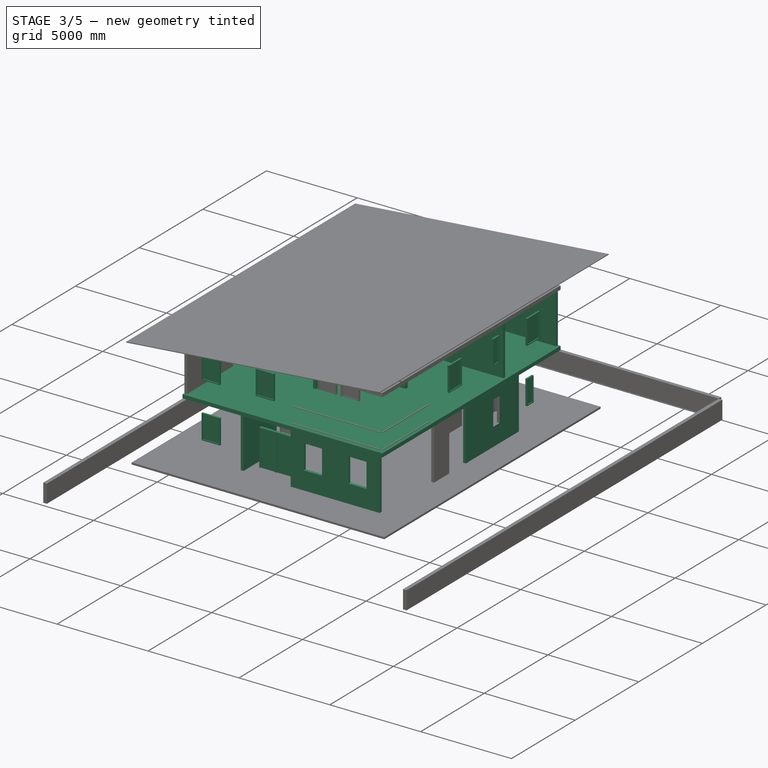
[diagram: stage 3 of 5 — iso view after this stage's code; geometry added in this stage tinted green]
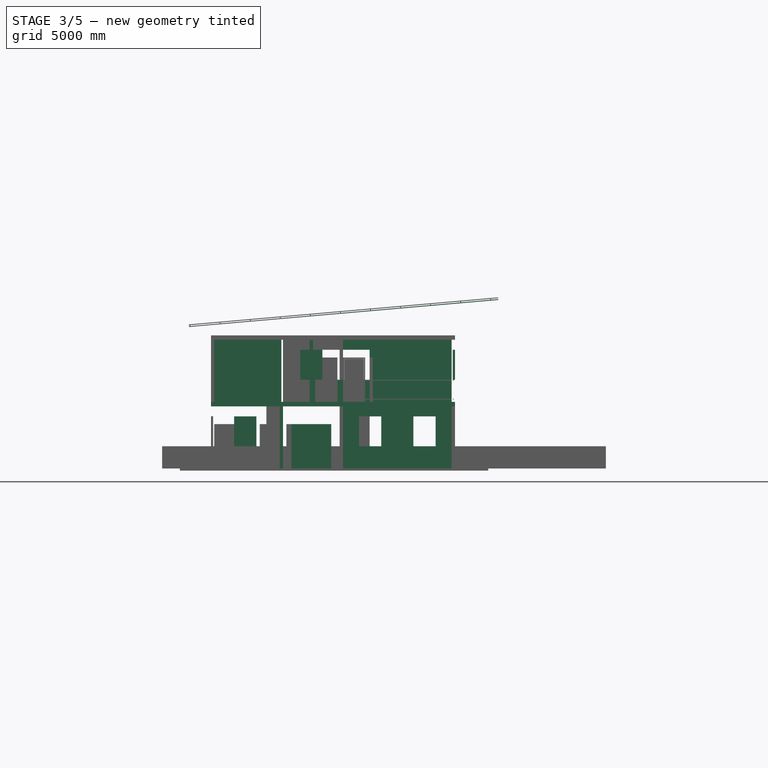
[diagram: stage 3 of 5 — front view after this stage's code; geometry added in this stage tinted green]
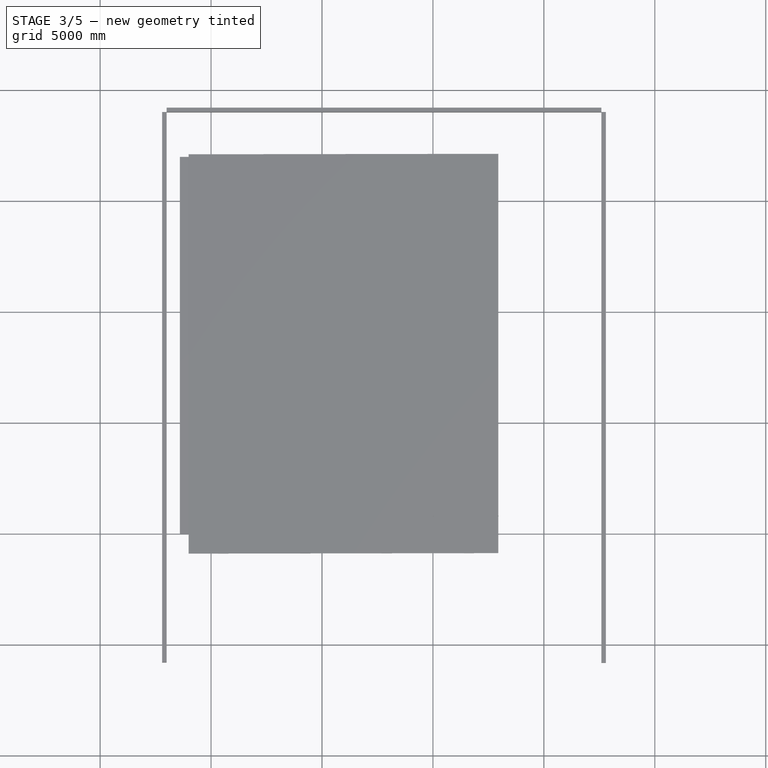
[diagram: stage 3 of 5 — top view after this stage's code; geometry added in this stage tinted green]
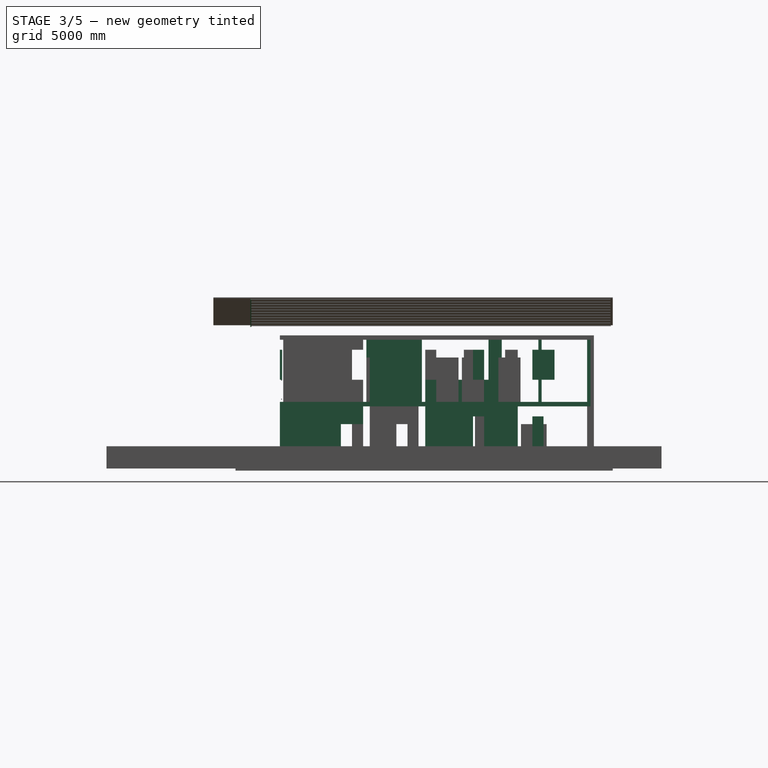
[diagram: stage 3 of 5 — right view after this stage's code; geometry added in this stage tinted green]
FEATURE [Part::Part2DObjectPython] Line040  # Draft 2D object (typed FeaturePython)
  ChamferSize = 0
  Closed = false
  End = (7145,6050,3000)
  FilletRadius = 0
  Length = 9800
  MakeFace = true
  Points = (2) [(7145,15850,3000),(7145,6050,3000)]
  Start = (7145,15850,3000)
FEATURE [Part::Part2DObjectPython] Line041  # Draft 2D object (typed FeaturePython)
  ChamferSize = 0
  Closed = false
  End = (4593.51,8250,3000)
  FilletRadius = 0
  Length = 1201.49
  MakeFace = true
  Points = (2) [(5795,8250,3000),(4593.51,8250,3000)]
  Start = (5795,8250,3000)
FEATURE [Part::Part2DObjectPython] Line042  # Draft 2D object (typed FeaturePython)
  ChamferSize = 0
  Closed = false
  End = (5945,12720,3000)
  FilletRadius = 0
  Length = 4170
  MakeFace = true
  Points = (2) [(5945,8550,3000),(5945,12720,3000)]
  Start = (5945,8550,3000)
FEATURE [Part::FeaturePython] Wall053  # WARN: FeaturePython — macro-defined, semantics opaque (R4)
  Align = 1
  Base = -> Line042
  Face = 0
  Height = 1000
  Length = 0
  MoveWithHost = false
  Normal = (0,0,0)
  Role = 0
  Width = 150
FEATURE [Part::FeaturePython] Wall054  # WARN: FeaturePython — macro-defined, semantics opaque (R4)
  Align = 0
  Base = -> Line041
  Face = 0
  Height = 1000
  Length = 0
  MoveWithHost = false
  Normal = (0,0,0)
  Role = 0
  Width = 150
FEATURE [Part::Part2DObjectPython] Line043  # Draft 2D object (typed FeaturePython)
  ChamferSize = 0
  Closed = false
  End = (7295,4069.51,3000)
  FilletRadius = 0
  Length = 4506.35
  MakeFace = true
  Points = (2) [(7295,8575.86,3000),(7295,4069.51,3000)]
  Start = (7295,8575.86,3000)
FEATURE [Part::Part2DObjectPython] Line047  # Draft 2D object (typed FeaturePython)
  ChamferSize = 0
  Closed = false
  End = (7900.65,8250,3000)
  FilletRadius = 0
  Length = 605.65
  MakeFace = true
  Points = (2) [(7295,8250,3000),(7900.65,8250,3000)]
  Start = (7295,8250,3000)
FEATURE [Part::FeaturePython] Wall055  # WARN: FeaturePython — macro-defined, semantics opaque (R4)
  Align = 1
  Base = -> Line047
  Face = 0
  Height = 2800
  Length = 0
  MoveWithHost = false
  Normal = (0,0,0)
  Role = 0
  Width = 150
FEATURE [Part::Part2DObjectPython] Line048  # Draft 2D object (typed FeaturePython)
  ChamferSize = 0
  Closed = false
  End = (12362.3,11850,3000)
  FilletRadius = 0
  Length = 3155.03
  MakeFace = true
  Points = (2) [(9207.29,11850,3000),(12362.3,11850,3000)]
  Start = (9207.29,11850,3000)
FEATURE [Part::Part2DObjectPython] Line049  # Draft 2D object (typed FeaturePython)
  ChamferSize = 0
  Closed = false
  End = (13484.4,15850,3000)
  FilletRadius = 0
  Length = 4404.97
  MakeFace = true
  Points = (2) [(9079.47,15850,3000),(13484.4,15850,3000)]
  Start = (9079.47,15850,3000)
FEATURE [Part::Part2DObjectPython] Line050  # Draft 2D object (typed FeaturePython)
  ChamferSize = 0
  Closed = false
  End = (13484.4,13650,3000)
  FilletRadius = 0
  Length = 4404.97
  MakeFace = true
  Points = (2) [(9079.47,13650,3000),(13484.4,13650,3000)]
  Start = (9079.47,13650,3000)
FEATURE [Part::Part2DObjectPython] Line051  # Draft 2D object (typed FeaturePython)
  ChamferSize = 0
  Closed = false
  End = (7295,13648.3,3000)
  FilletRadius = 0
  Length = 600.4
  MakeFace = true
  Points = (2) [(7895.4,13648.8,3000),(7295,13648.3,3000)]
  Start = (7895.4,13648.8,3000)
FEATURE [Part::FeaturePython] Wall056  # WARN: FeaturePython — macro-defined, semantics opaque (R4)
  Align = 0
  Base = -> Line051
  Face = 0
  Height = 2800
  Length = 0
  MoveWithHost = false
  Normal = (0,0,0)
  Role = 0
  Width = 150
FEATURE [Part::Part2DObjectPython] Line052  # Draft 2D object (typed FeaturePython)
  ChamferSize = 0
  Closed = false
  End = (4595,8250,3000)
  FilletRadius = 0
  Length = 2350
  MakeFace = true
  Points = (2) [(4595,5900,3000),(4595,8250,3000)]
  Start = (4595,5900,3000)
FEATURE [Part::FeaturePython] Wall057  # WARN: FeaturePython — macro-defined, semantics opaque (R4)
  Align = 1
  Base = -> Line052
  Face = 0
  Height = 2800
  Length = 0
  MoveWithHost = false
  Normal = (0,0,0)
  Role = 0
  Width = 150
FEATURE [App::FeaturePython] Dimension  # Draft dimension (typed FeaturePython)
  Dimline = (2942.7,7711.55,3000)
  Direction = (0,0,0)
  Distance = 1100
  End = (3095,8043.26,3000)
  Normal = (0,0,1)
  Start = (1995,8043.26,3000)
FEATURE [App::FeaturePython] Dimension001  # Draft dimension (typed FeaturePython)
  Dimline = (3985.87,8737.49,3000)
  Direction = (0,0,0)
  Distance = 2450
  End = (4445,9000.71,3000)
  Normal = (0,0,1)
  Start = (1995,9000.71,3000)
FEATURE [Part::FeaturePython] Wall032  # WARN: FeaturePython — macro-defined, semantics opaque (R4)
  Align = 1
  Base = -> Line020
  Face = 0
  Height = 2800
  Length = 0
  MoveWithHost = false
  Normal = (0,0,0)
  Role = 0
  Width = 150
FEATURE [App::FeaturePython] Dimension002  # Draft dimension (typed FeaturePython)
  Dimline = (1043.25,8581.64,3000)
  Direction = (0,0,0)
  Distance = 990.77
  End = (1319.1,8409.23,6000)
  Normal = (0,0,1)
  Start = (1319.1,9400,6000)
FEATURE [App::FeaturePython] Dimension003  # Draft dimension (typed FeaturePython)
  Dimline = (949.344,6208.01,3000)
  Direction = (0,0,0)
  Distance = 650
  End = (791.333,6050,3000)
  Normal = (0,0,1)
  Start = (791.333,6700,3000)
FEATURE [Part::Part2DObjectPython] Line057  # Draft 2D object (typed FeaturePython)
  ChamferSize = 0
  Closed = false
  End = (-2061.02,12000,3000)
  FilletRadius = 0
  Length = 3334.15
  MakeFace = true
  Points = (2) [(1273.13,12000,3000),(-2061.02,12000,3000)]
  Start = (1273.13,12000,3000)
FEATURE [Part::Part2DObjectPython] Line058  # Draft 2D object (typed FeaturePython)
  ChamferSize = 0
  Closed = false
  End = (-2061.02,11400,3000)
  FilletRadius = 0
  Length = 7145.96
  MakeFace = true
  Points = (2) [(5084.95,11400,3000),(-2061.02,11400,3000)]
  Start = (5084.95,11400,3000)
FEATURE [Part::Part2DObjectPython] Line059  # Draft 2D object (typed FeaturePython)
  ChamferSize = 0
  Closed = false
  End = (3170,12000,3000)
  FilletRadius = 0
  Length = 600
  MakeFace = true
  Points = (2) [(3170,11400,3000),(3170,12000,3000)]
  Start = (3170,11400,3000)
FEATURE [Part::FeaturePython] Wall058  # WARN: FeaturePython — macro-defined, semantics opaque (R4)
  Align = 1
  Base = -> Line059
  Face = 0
  Height = 2800
  Length = 0
  MoveWithHost = false
  Normal = (0,0,0)
  Role = 0
  Width = 150
FEATURE [Part::Part2DObjectPython] Line079  # Draft 2D object (typed FeaturePython)
  ChamferSize = 0
  Closed = false
  End = (5945,16000,0)
  FilletRadius = 0
  Length = 4900
  MakeFace = true
  Points = (2) [(10845,16000,0),(5945,16000,0)]
  Start = (10845,16000,0)
FEATURE [Part::Part2DObjectPython] Line080  # Draft 2D object (typed FeaturePython)
  ChamferSize = 0
  Closed = false
  End = (70,5750,0)
  FilletRadius = 0
  Length = 3600
  MakeFace = true
  Points = (2) [(70,2150,0),(70,5750,0)]
  Start = (70,2150,0)
FEATURE [Part::Part2DObjectPython] Line081  # Draft 2D object (typed FeaturePython)
  ChamferSize = 0
  Closed = false
  End = (10920,12720,0)
  FilletRadius = 0
  Length = 4170
  MakeFace = true
  Points = (2) [(10920,8550,0),(10920,12720,0)]
  Start = (10920,8550,0)
FEATURE [Part::Part2DObjectPython] Line082  # Draft 2D object (typed FeaturePython)
  ChamferSize = 0
  Closed = false
  End = (70,8250,0)
  FilletRadius = 0
  Length = 2200
  MakeFace = true
  Points = (2) [(70,6050,0),(70,8250,0)]
  Start = (70,6050,0)
FEATURE [Part::Part2DObjectPython] Line083  # Draft 2D object (typed FeaturePython)
  ChamferSize = 0
  Closed = false
  End = (10845,11850,3000)
  FilletRadius = 0
  Length = 3550
  MakeFace = true
  Points = (2) [(7295,11850,3000),(10845,11850,3000)]
  Start = (7295,11850,3000)
FEATURE [Part::FeaturePython] Wall078  # WARN: FeaturePython — macro-defined, semantics opaque (R4)
  Align = 0
  Base = -> Line083
  Face = 0
  Height = 2800
  Length = 0
  MoveWithHost = false
  Normal = (0,0,0)
  Role = 0
  Width = 150
FEATURE [Part::Part2DObjectPython] DWire  # Draft 2D object (typed FeaturePython)
  ChamferSize = 0
  Closed = true
  End = (-5,13020,0)
  FilletRadius = 0
  Length = 51700
  MakeFace = true
  Points = (10) [(4445,13020,0),(4445,16000,0),(10995,16000,0),(10995,2000,0),(5795,2000,0),(5795,2850,0),(3245,2850,0),(3245,2000,0),(-5,2000,0),(-5,13020,0)]
  Start = (4445,13020,0)
FEATURE [Part::Part2DObjectPython] Line084  # Draft 2D object (typed FeaturePython)
  ChamferSize = 0
  Closed = false
  End = (10995,-2593.73,0)
  FilletRadius = 0
  Length = 21220.1
  MakeFace = true
  Points = (2) [(10995,18626.4,0),(10995,-2593.73,0)]
  Start = (10995,18626.4,0)
FEATURE [Part::Part2DObjectPython] Line085  # Draft 2D object (typed FeaturePython)
  ChamferSize = 0
  Closed = false
  End = (-5,498.741,0)
  FilletRadius = 0
  Length = 18816.3
  MakeFace = true
  Points = (2) [(-5,19315,0),(-5,498.741,0)]
  Start = (-5,19315,0)
FEATURE [Part::Part2DObjectPython] Line086  # Draft 2D object (typed FeaturePython)
  ChamferSize = 0
  Closed = false
  End = (-994.058,2000,0)
  FilletRadius = 0
  Length = 13580.1
  MakeFace = true
  Points = (2) [(12586,2000,0),(-994.058,2000,0)]
  Start = (12586,2000,0)
FEATURE [Part::Part2DObjectPython] Line087  # Draft 2D object (typed FeaturePython)
  ChamferSize = 0
  Closed = false
  End = (13147,16000,0)
  FilletRadius = 0
  Length = 16540.6
  MakeFace = true
  Points = (2) [(-3393.63,16000,0),(13147,16000,0)]
  Start = (-3393.63,16000,0)
FEATURE [Part::Part2DObjectPython] Rectangle  # Draft 2D object (typed FeaturePython)
  ChamferSize = 0
  FilletRadius = 0
  Height = -14000
  Length = -11000
  MakeFace = true
  Placement = pos=(10995,16000,3000) rot=(0,0,1;0rad)
FEATURE [Part::Extrusion] Extrusion001  label="level 2 slab"
  Base = -> Rectangle
  Dir = (0,0,-200)
  Solid = true
FEATURE [Part::Part2DObjectPython] Line088  # Draft 2D object (typed FeaturePython)
  ChamferSize = 0
  Closed = false
  End = (-5,14435,0)
  FilletRadius = 0
  Length = 1565
  MakeFace = true
  Points = (2) [(-5,16000,0),(-5,14435,0)]
  Start = (-5,16000,0)
FEATURE [Part::Part2DObjectPython] Line089  # Draft 2D object (typed FeaturePython)
  ChamferSize = 0
  Closed = false
  End = (-2000,16000,0)
  FilletRadius = 0
  Length = 3620
  MakeFace = true
  Points = (2) [(1620,16000,0),(-2000,16000,0)]
  Start = (1620,16000,0)
FEATURE [Part::Part2DObjectPython] Rectangle001  # Draft 2D object (typed FeaturePython)
  ChamferSize = 0
  FilletRadius = 0
  Height = 2980
  Length = -4450
  MakeFace = true
  Placement = pos=(4445,13020,0) rot=(0,0,1;0rad)
FEATURE [Part::Extrusion] Extrusion002  label="rear veranda floor slab level 1"
  Base = -> Rectangle001
  Dir = (0,0,-100)
  Solid = true
FEATURE [Part::Part2DObjectPython] Line090  # Draft 2D object (typed FeaturePython)
  ChamferSize = 0
  Closed = false
  End = (5795,20292.1,3000)
  FilletRadius = 0
  Length = 21199.3
  MakeFace = true
  Points = (2) [(5795,-907.189,3000),(5795,20292.1,3000)]
  Start = (5795,-907.189,3000)
FEATURE [Part::Part2DObjectPython] Line091  # Draft 2D object (typed FeaturePython)
  ChamferSize = 0
  Closed = false
  End = (4595,19323.9,3000)
  FilletRadius = 0
  Length = 18775.6
  MakeFace = true
  Points = (2) [(4595,548.288,3000),(4595,19323.9,3000)]
  Start = (4595,548.288,3000)
FEATURE [Part::Part2DObjectPython] Line092  # Draft 2D object (typed FeaturePython)
  ChamferSize = 0
  Closed = false
  End = (-1490.68,13020,3000)
  FilletRadius = 0
  Length = 13409.8
  MakeFace = true
  Points = (2) [(11919.1,13020,3000),(-1490.68,13020,3000)]
  Start = (11919.1,13020,3000)
FEATURE [Part::Part2DObjectPython] Line093  # Draft 2D object (typed FeaturePython)
  ChamferSize = 0
  Closed = false
  End = (12148.2,8400,3000)
  FilletRadius = 0
  Length = 15139.7
  MakeFace = true
  Points = (2) [(-2991.47,8400,3000),(12148.2,8400,3000)]
  Start = (-2991.47,8400,3000)
FEATURE [Part::Part2DObjectPython] Rectangle002  # Draft 2D object (typed FeaturePython)
  ChamferSize = 0
  FilletRadius = 0
  Height = -4620
  Length = 1200
  MakeFace = true
  Placement = pos=(4595,13020,3000) rot=(0,0,1;0rad)
FEATURE [Part::Extrusion] Extrusion003
  Base = -> Rectangle002
  Dir = (0,0,-200)
  Solid = true
FEATURE [Part::Cut] Cut  label="Floor Slab level 2"
  Base = -> Extrusion001
  Tool = -> Extrusion003
FEATURE [Part::Feature] Face
  shape: bbox 14000 x 14000 x 2e-07 mm, 1 faces, 0 solids (baked)
FEATURE [Part::Part2DObjectPython] Rectangle010  # Draft 2D object (typed FeaturePython)
  ChamferSize = 0
  FilletRadius = 0
  Height = -14000
  Length = 18000
  MakeFace = true
  Placement = pos=(12995,17000,6500) rot=(0,0,-1;1.5708rad)
FEATURE [Part::Part2DObjectPython] Line128  # Draft 2D object (typed FeaturePython)
  ChamferSize = 0
  Closed = false
  End = (-5,2000,6500)
  FilletRadius = 0
  Length = 500
  MakeFace = true
  Points = (2) [(-5,2000,6000),(-5,2000,6500)]
  Start = (-5,2000,6000)
FEATURE [Part::Part2DObjectPython] Line129  # Draft 2D object (typed FeaturePython)
  ChamferSize = 0
  Closed = false
  End = (12700.1,2150,6000)
  FilletRadius = 0
  Length = 13165
  MakeFace = true
  Points = (2) [(-464.903,2150,6000),(12700.1,2150,6000)]
  Start = (-464.903,2150,6000)
  Support = -> Cut001
FEATURE [Part::Part2DObjectPython] Line130  # Draft 2D object (typed FeaturePython)
  ChamferSize = 0
  Closed = false
  End = (-464.903,2000,6000)
  FilletRadius = 0
  Length = 13165
  MakeFace = true
  Points = (2) [(12700.1,2000,6000),(-464.903,2000,6000)]
  Start = (12700.1,2000,6000)
FEATURE [Part::Part2DObjectPython] Line131  # Draft 2D object (typed FeaturePython)
  ChamferSize = 0
  Closed = false
  End = (12700.1,16000,6000)
  FilletRadius = 0
  Length = 14700.1
  MakeFace = true
  Points = (2) [(-2000,16000,6000),(12700.1,16000,6000)]
  Start = (-2000,16000,6000)
FEATURE [Part::Part2DObjectPython] Line133  # Draft 2D object (typed FeaturePython)
  ChamferSize = 0
  Closed = false
  End = (12700.1,15850,6000)
  FilletRadius = 0
  Length = 14700.1
  MakeFace = true
  Points = (2) [(-2000,15850,6000),(12700.1,15850,6000)]
  Start = (-2000,15850,6000)
FEATURE [Part::Part2DObjectPython] Line134  # Draft 2D object (typed FeaturePython)
  ChamferSize = 0
  Closed = false
  End = (12700.1,2000,6000)
  FilletRadius = 0
  Length = 150
  MakeFace = true
  Points = (2) [(12700.1,2150,6000),(12700.1,2000,6000)]
  Start = (12700.1,2150,6000)
  Support = -> Cut001
FEATURE [Part::Part2DObjectPython] Line135  # Draft 2D object (typed FeaturePython)
  ChamferSize = 0
  Closed = false
  End = (-1136.9,2075,6000)
  FilletRadius = 0
  Length = 13837
  MakeFace = true
  Points = (2) [(12700.1,2075,6000),(-1136.9,2075,6000)]
  Start = (12700.1,2075,6000)
FEATURE [Part::Part2DObjectPython] Line136  # Draft 2D object (typed FeaturePython)
  ChamferSize = 0
  Closed = false
  End = (12700.1,15850,6000)
  FilletRadius = 0
  Length = 150
  MakeFace = true
  Points = (2) [(12700.1,16000,6000),(12700.1,15850,6000)]
  Start = (12700.1,16000,6000)
FEATURE [Part::Part2DObjectPython] Line137  # Draft 2D object (typed FeaturePython)
  ChamferSize = 0
  Closed = false
  End = (-1996.9,15925,6000)
  FilletRadius = 0
  Length = 14697
  MakeFace = true
  Points = (2) [(12700.1,15925,6000),(-1996.9,15925,6000)]
  Start = (12700.1,15925,6000)
FEATURE [Part::Part2DObjectPython] Line141  # Draft 2D object (typed FeaturePython)
  ChamferSize = 0
  Closed = true
  End = (10995,2090,6000)
  FilletRadius = 0
  Length = 0
  MakeFace = true
  Points = (2) [(10995,2090,6000),(10995,2090,6000)]
  Start = (10995,2090,6000)
FEATURE [Part::Part2DObjectPython] Rectangle011  # Draft 2D object (typed FeaturePython)
  ChamferSize = 0
  FilletRadius = 0
  Height = 40
  Length = -40
  MakeFace = true
  Placement = pos=(10995,2055,6000) rot=(0,1,0;1.5708rad)
FEATURE [Part::Part2DObjectPython] Line142  # Draft 2D object (typed FeaturePython)
  ChamferSize = 0
  Closed = false
  End = (10995,15925,5742)
  FilletRadius = 0
  Length = 258
  MakeFace = true
  Points = (2) [(10995,15925,6000),(10995,15925,5742)]
  Start = (10995,15925,6000)
  Support = -> Cut001
FEATURE [Part::Part2DObjectPython] Line144  # Draft 2D object (typed FeaturePython)
  ChamferSize = 0
  Closed = false
  End = (10995,2075,6000)
  FilletRadius = 0
  Length = 2461
  MakeFace = true
  Points = (2) [(10995,2075,8461),(10995,2075,6000)]
  Start = (10995,2075,8461)
FEATURE [Part::Part2DObjectPython] Line148  # Draft 2D object (typed FeaturePython)
  ChamferSize = 0
  Closed = false
  End = (10995,15925,6000)
  FilletRadius = 0
  Length = 2461
  MakeFace = true
  Placement = pos=(0,10387.5,0) rot=(0,0,1;0rad)
  Points = (2) [(10995,5537.5,8461),(10995,5537.5,6000)]
  Start = (10995,15925,8461)
FEATURE [Part::Part2DObjectPython] Line147  # Draft 2D object (typed FeaturePython)
  ChamferSize = 0
  Closed = false
  End = (10995,12462.5,6000)
  FilletRadius = 0
  Length = 2461
  MakeFace = true
  Placement = pos=(0,6925,0) rot=(0,0,1;0rad)
  Points = (2) [(10995,5537.5,8461),(10995,5537.5,6000)]
  Start = (10995,12462.5,8461)
FEATURE [Part::Part2DObjectPython] Line149  # Draft 2D object (typed FeaturePython)
  ChamferSize = 0
  Closed = false
  End = (10995,4845,6000)
  FilletRadius = 0
  Length = 2461
  MakeFace = true
  Points = (2) [(10995,4845,8461),(10995,4845,6000)]
  Start = (10995,4845,8461)
FEATURE [Part::Part2DObjectPython] Line150  # Draft 2D object (typed FeaturePython)
  ChamferSize = 0
  Closed = false
  End = (10995,7615,6000)
  FilletRadius = 0
  Length = 2461
  MakeFace = true
  Placement = pos=(0,2770,0) rot=(0,0,1;0rad)
  Points = (2) [(10995,4845,8461),(10995,4845,6000)]
  Start = (10995,7615,8461)
FEATURE [Part::Part2DObjectPython] Line151  # Draft 2D object (typed FeaturePython)
  ChamferSize = 0
  Closed = false
  End = (10995,10385,6000)
  FilletRadius = 0
  Length = 2461
  MakeFace = true
  Placement = pos=(0,5540,0) rot=(0,0,1;0rad)
  Points = (2) [(10995,4845,8461),(10995,4845,6000)]
  Start = (10995,10385,8461)
FEATURE [Part::Part2DObjectPython] Line152  # Draft 2D object (typed FeaturePython)
  ChamferSize = 0
  Closed = false
  End = (10995,13155,6000)
  FilletRadius = 0
  Length = 2461
  MakeFace = true
  Placement = pos=(0,8310,0) rot=(0,0,1;0rad)
  Points = (2) [(10995,4845,8461),(10995,4845,6000)]
  Start = (10995,13155,8461)
FEATURE [Part::Part2DObjectPython] Line153  # Draft 2D object (typed FeaturePython)
  ChamferSize = 0
  Closed = false
  End = (10995,15925,6000)
  FilletRadius = 0
  Length = 2461
  MakeFace = true
  Placement = pos=(0,11080,0) rot=(0,0,1;0rad)
  Points = (2) [(10995,4845,8461),(10995,4845,6000)]
  Start = (10995,15925,8461)
FEATURE [Part::Feature] Clone  label="Clone of Extrusion018"
  Placement = pos=(0,2770,0) rot=(0,0,1;0rad)
  shape: bbox 11000 x 40 x 40 mm, 6 faces (baked)
FEATURE [Part::Feature] Clone004  label="Clone of Extrusion019"
  Placement = pos=(0,5540,0) rot=(0,0,1;0rad)
  shape: bbox 11000 x 40 x 40 mm, 6 faces (baked)
FEATURE [Part::Feature] Clone005  label="Clone of Extrusion020"
  Placement = pos=(0,8310,0) rot=(0,0,1;0rad)
  shape: bbox 11000 x 40 x 40 mm, 6 faces (baked)
FEATURE [Part::Feature] Clone006  label="Clone of Extrusion021"
  Placement = pos=(0,11080,0) rot=(0,0,1;0rad)
  shape: bbox 11000 x 40 x 40 mm, 6 faces (baked)
FEATURE [Part::Feature] Clone007  label="Clone of Extrusion022"
  Placement = pos=(0,13850,0) rot=(0,0,1;0rad)
  shape: bbox 11000 x 40 x 40 mm, 6 faces (baked)
FEATURE [Part::Feature] Clone008  label="Clone of Extrusion023"
  shape: bbox 11000 x 40 x 40 mm, 6 faces (baked)
FEATURE [Part::Part2DObjectPython] Rectangle012  # Draft 2D object (typed FeaturePython)
  ChamferSize = 0
  FilletRadius = 0
  Height = -14000
  Length = 18000
  MakeFace = true
  Placement = pos=(12945.5,17000,7633.02) rot=(0.043578,-0.043578,-0.998099;1.5727rad)
FEATURE [Part::Feature] Face009
  Placement = pos=(12949,2055,7593.18) rot=(0,1,0;1.48353rad)
  shape: bbox 3.488 x 40 x 39.85 mm, 1 faces, 0 solids (baked)
FEATURE [Part::Extrusion] Extrusion015
  Base = -> Face009
  Dir = (-13946.7,0,-1220.18)
  Placement = pos=(0,-1385,0) rot=(0,0,1;0rad)
  Solid = true
FEATURE [Part::Part2DObjectPython] Line155  # Draft 2D object (typed FeaturePython)
  ChamferSize = 0
  Closed = false
  End = (-5,13155,6040)
  FilletRadius = 0
  Length = 1385
  MakeFace = true
  Points = (2) [(-5,14540,6040),(-5,13155,6040)]
  Start = (-5,14540,6040)
FEATURE [Part::Part2DObjectPython] Line156  # Draft 2D object (typed FeaturePython)
  ChamferSize = 0
  Closed = false
  End = (-5,14540,7197)
  FilletRadius = 0
  Length = 1157
  MakeFace = true
  Points = (2) [(-5,14540,6040),(-5,14540,7197)]
  Start = (-5,14540,6040)
FEATURE [Part::Part2DObjectPython] Line157  # Draft 2D object (typed FeaturePython)
  ChamferSize = 0
  Closed = false
  End = (-5,13155,7197)
  FilletRadius = 0
  Length = 1157
  MakeFace = true
  Placement = pos=(0,-1385,0) rot=(0,0,1;0rad)
  Points = (2) [(-5,14540,6040),(-5,14540,7197)]
  Start = (-5,13155,6040)
FEATURE [Part::Part2DObjectPython] Line158  # Draft 2D object (typed FeaturePython)
  ChamferSize = 0
  Closed = false
  End = (-5,11770,6040)
  FilletRadius = 0
  Length = 1385
  MakeFace = true
  Placement = pos=(0,-1385,0) rot=(0,0,1;0rad)
  Points = (2) [(-5,14540,6040),(-5,13155,6040)]
  Start = (-5,13155,6040)
FEATURE [Part::Part2DObjectPython] Line159  # Draft 2D object (typed FeaturePython)
  ChamferSize = 0
  Closed = false
  End = (-5,11770,7197)
  FilletRadius = 0
  Length = 1157
  MakeFace = true
  Placement = pos=(0,-2770,0) rot=(0,0,1;0rad)
  Points = (2) [(-5,14540,6040),(-5,14540,7197)]
  Start = (-5,11770,6040)
FEATURE [Part::Part2DObjectPython] Line160  # Draft 2D object (typed FeaturePython)
  ChamferSize = 0
  Closed = false
  End = (-5,10385,6040)
  FilletRadius = 0
  Length = 1385
  MakeFace = true
  Placement = pos=(0,-2770,0) rot=(0,0,1;0rad)
  Points = (2) [(-5,14540,6040),(-5,13155,6040)]
  Start = (-5,11770,6040)
FEATURE [Part::Part2DObjectPython] Line161  # Draft 2D object (typed FeaturePython)
  ChamferSize = 0
  Closed = false
  End = (-5,9000,7197)
  FilletRadius = 0
  Length = 1157
  MakeFace = true
  Placement = pos=(0,-5540,0) rot=(0,0,1;0rad)
  Points = (2) [(-5,14540,6040),(-5,14540,7197)]
  Start = (-5,9000,6040)
FEATURE [Part::Part2DObjectPython] Line162  # Draft 2D object (typed FeaturePython)
  ChamferSize = 0
  Closed = false
  End = (-5,7615,6040)
  FilletRadius = 0
  Length = 1385
  MakeFace = true
  Placement = pos=(0,-5540,0) rot=(0,0,1;0rad)
  Points = (2) [(-5,14540,6040),(-5,13155,6040)]
  Start = (-5,9000,6040)
FEATURE [Part::Part2DObjectPython] Line163  # Draft 2D object (typed FeaturePython)
  ChamferSize = 0
  Closed = false
  End = (-5,7615,7197)
  FilletRadius = 0
  Length = 1157
  MakeFace = true
  Placement = pos=(0,-6925,0) rot=(0,0,1;0rad)
  Points = (2) [(-5,14540,6040),(-5,14540,7197)]
  Start = (-5,7615,6040)
FEATURE [Part::Part2DObjectPython] Line164  # Draft 2D object (typed FeaturePython)
  ChamferSize = 0
  Closed = false
  End = (-5,6230,6040)
  FilletRadius = 0
  Length = 1385
  MakeFace = true
  Placement = pos=(0,-6925,0) rot=(0,0,1;0rad)
  Points = (2) [(-5,14540,6040),(-5,13155,6040)]
  Start = (-5,7615,6040)
FEATURE [Part::Part2DObjectPython] Line165  # Draft 2D object (typed FeaturePython)
  ChamferSize = 0
  Closed = false
  End = (-5,4845,6040)
  FilletRadius = 0
  Length = 1385
  MakeFace = true
  Placement = pos=(0,-8310,0) rot=(0,0,1;0rad)
  Points = (2) [(-5,14540,6040),(-5,13155,6040)]
  Start = (-5,6230,6040)
FEATURE [Part::Part2DObjectPython] Line166  # Draft 2D object (typed FeaturePython)
  ChamferSize = 0
  Closed = false
  End = (-5,6230,7197)
  FilletRadius = 0
  Length = 1157
  MakeFace = true
  Placement = pos=(0,-8310,0) rot=(0,0,1;0rad)
  Points = (2) [(-5,14540,6040),(-5,14540,7197)]
  Start = (-5,6230,6040)
FEATURE [Part::Part2DObjectPython] Line167  # Draft 2D object (typed FeaturePython)
  ChamferSize = 0
  Closed = false
  End = (-5,4845,7197)
  FilletRadius = 0
  Length = 1157
  MakeFace = true
  Placement = pos=(0,-9695,0) rot=(0,0,1;0rad)
  Points = (2) [(-5,14540,6040),(-5,14540,7197)]
  Start = (-5,4845,6040)
FEATURE [Part::Part2DObjectPython] Line168  # Draft 2D object (typed FeaturePython)
  ChamferSize = 0
  Closed = false
  End = (-5,3460,6040)
  FilletRadius = 0
  Length = 1385
  MakeFace = true
  Placement = pos=(0,-9695,0) rot=(0,0,1;0rad)
  Points = (2) [(-5,14540,6040),(-5,13155,6040)]
  Start = (-5,4845,6040)
FEATURE [Part::Part2DObjectPython] Line169  # Draft 2D object (typed FeaturePython)
  ChamferSize = 0
  Closed = false
  End = (-5,2075,6040)
  FilletRadius = 0
  Length = 1385
  MakeFace = true
  Placement = pos=(0,-11080,0) rot=(0,0,1;0rad)
  Points = (2) [(-5,14540,6040),(-5,13155,6040)]
  Start = (-5,3460,6040)
FEATURE [Part::Part2DObjectPython] Line170  # Draft 2D object (typed FeaturePython)
  ChamferSize = 0
  Closed = false
  End = (-5,3460,7197)
  FilletRadius = 0
  Length = 1157
  MakeFace = true
  Placement = pos=(0,-11080,0) rot=(0,0,1;0rad)
  Points = (2) [(-5,14540,6040),(-5,14540,7197)]
  Start = (-5,3460,6040)
FEATURE [Part::Part2DObjectPython] Line171  # Draft 2D object (typed FeaturePython)
  ChamferSize = 0
  Closed = false
  End = (-5,2075,7197)
  FilletRadius = 0
  Length = 1157
  MakeFace = true
  Placement = pos=(0,-12465,0) rot=(0,0,1;0rad)
  Points = (2) [(-5,14540,6040),(-5,14540,7197)]
  Start = (-5,2075,6040)
FEATURE [Part::Part2DObjectPython] Line172  # Draft 2D object (typed FeaturePython)
  ChamferSize = 0
  Closed = false
  End = (-5,690,6040)
  FilletRadius = 0
  Length = 1385
  MakeFace = true
  Placement = pos=(0,-12465,0) rot=(0,0,1;0rad)
  Points = (2) [(-5,14540,6040),(-5,13155,6040)]
  Start = (-5,2075,6040)
FEATURE [Part::Part2DObjectPython] Line173  # Draft 2D object (typed FeaturePython)
  ChamferSize = 0
  Closed = false
  End = (-5,15925,7197)
  FilletRadius = 0
  Length = 1157
  MakeFace = true
  Placement = pos=(0,1385,0) rot=(0,0,1;0rad)
  Points = (2) [(-5,14540,6040),(-5,14540,7197)]
  Start = (-5,15925,6040)
FEATURE [Part::Part2DObjectPython] Line174  # Draft 2D object (typed FeaturePython)
  ChamferSize = 0
  Closed = false
  End = (-5,14540,6040)
  FilletRadius = 0
  Length = 1385
  MakeFace = true
  Placement = pos=(0,1385,0) rot=(0,0,1;0rad)
  Points = (2) [(-5,14540,6040),(-5,13155,6040)]
  Start = (-5,15925,6040)
FEATURE [Part::Part2DObjectPython] Line175  # Draft 2D object (typed FeaturePython)
  ChamferSize = 0
  Closed = false
  End = (-5,15925,6040)
  FilletRadius = 0
  Length = 1385
  MakeFace = true
  Placement = pos=(0,2770,0) rot=(0,0,1;0rad)
  Points = (2) [(-5,14540,6040),(-5,13155,6040)]
  Start = (-5,17310,6040)
FEATURE [Part::Part2DObjectPython] Line176  # Draft 2D object (typed FeaturePython)
  ChamferSize = 0
  Closed = false
  End = (-5,17310,7197)
  FilletRadius = 0
  Length = 1157
  MakeFace = true
  Placement = pos=(0,2770,0) rot=(0,0,1;0rad)
  Points = (2) [(-5,14540,6040),(-5,14540,7197)]
  Start = (-5,17310,6040)
FEATURE [Part::Feature] Extrusion016
  Placement = pos=(0,1385,0) rot=(0,0,1;0rad)
  shape: bbox 13950 x 40 x 1260 mm, 6 faces (baked)
FEATURE [Part::Feature] Extrusion017
  Placement = pos=(0,4155,0) rot=(0,0,1;0rad)
  shape: bbox 13950 x 40 x 1260 mm, 6 faces (baked)
FEATURE [Part::Feature] Extrusion018
  Placement = pos=(0,6925,0) rot=(0,0,1;0rad)
  shape: bbox 13950 x 40 x 1260 mm, 6 faces (baked)
FEATURE [Part::Feature] Extrusion019
  Placement = pos=(0,9695,0) rot=(0,0,1;0rad)
  shape: bbox 13950 x 40 x 1260 mm, 6 faces (baked)
FEATURE [Part::Feature] Extrusion020
  Placement = pos=(0,12465,0) rot=(0,0,1;0rad)
  shape: bbox 13950 x 40 x 1260 mm, 6 faces (baked)
FEATURE [Part::Feature] Extrusion021
  Placement = pos=(0,14825,1e-12) rot=(0,0,1;0rad)
  shape: bbox 13950 x 40 x 1260 mm, 6 faces (baked)
FEATURE [Sketcher::SketchObject] Sketch002
  Placement = pos=(10995,10357,3902.22) rot=(0.57735,0.57735,0.57735;2.0944rad)
  sketch-geometry (8):
    g0: LineSegment StartX=0 StartY=0 StartZ=0 EndX=500 EndY=0 EndZ=0
    g1: LineSegment StartX=500 StartY=0 StartZ=0 EndX=500 EndY=1350 EndZ=0
    g2: LineSegment StartX=500 StartY=1350 StartZ=0 EndX=0 EndY=1350 EndZ=0
    g3: LineSegment StartX=0 StartY=1350 StartZ=0 EndX=0 EndY=0 EndZ=0
    g4: LineSegment StartX=50 StartY=50 StartZ=0 EndX=450 EndY=50 EndZ=0
    g5: LineSegment StartX=450 StartY=50 StartZ=0 EndX=450 EndY=1300 EndZ=0
    g6: LineSegment StartX=450 StartY=1300 StartZ=0 EndX=50 EndY=1300 EndZ=0
    g7: LineSegment StartX=50 StartY=1300 StartZ=0 EndX=50 EndY=50 EndZ=0
  constraints (23):
    c: Coincident(g0,g1)
    c: Coincident(g1,g2)
    c: Coincident(g2,g3)
    c: Coincident(g3,g0)
    c: Horizontal(g0)
    c: Horizontal(g2)
    c: Vertical(g1)
    c: Vertical(g3)
    c: Coincident(g4,g5)
    c: Coincident(g5,g6)
    c: Coincident(g6,g7)
    c: Coincident(g7,g4)
    c: Horizontal(g4)
    c: Horizontal(g6)
    c: Vertical(g5)
    c: Vertical(g7)
    c: DistanceY(g1) = 1350
    c: DistanceX(g0) = 500
    c: DistanceY(g6,g2) = 50
    c: DistanceX(g2,g6) = 50
    c: DistanceX(g4,g0) = 50
    c: DistanceY(g0,g4) = 50
    c: Coincident(g0,g-1)
FEATURE [Part::FeaturePython] Window001  # WARN: FeaturePython — macro-defined, semantics opaque (R4)
  Base = -> Sketch002
  Height = 1350
  HoleDepth = 0
  MoveWithHost = true
  Normal = (-1,0,0)
  Placement = pos=(0,347.034,97.7756) rot=(0,0,1;0rad)
  Preset = 1
  Role = 0
  Width = 500
  WindowParts = OuterFrame | Frame | Wire0,Wire1 | 100.0 | 0.0 | Glass | Glass panel | Wire1 | 10.0 | 50.0
FEATURE [Sketcher::SketchObject] Sketch005
  Placement = pos=(10995,7773.34,3915.03) rot=(0.707107,0,0.707107;3.14159rad)
  sketch-geometry (8):
    g0: LineSegment StartX=0 StartY=0 StartZ=0 EndX=1350 EndY=0 EndZ=0
    g1: LineSegment StartX=1350 StartY=0 StartZ=0 EndX=1350 EndY=1000 EndZ=0
    g2: LineSegment StartX=1350 StartY=1000 StartZ=0 EndX=0 EndY=1000 EndZ=0
    g3: LineSegment StartX=0 StartY=1000 StartZ=0 EndX=0 EndY=0 EndZ=0
    g4: LineSegment StartX=50 StartY=50 StartZ=0 EndX=1300 EndY=50 EndZ=0
    g5: LineSegment StartX=1300 StartY=50 StartZ=0 EndX=1300 EndY=950 EndZ=0
    g6: LineSegment StartX=1300 StartY=950 StartZ=0 EndX=50 EndY=950 EndZ=0
    g7: LineSegment StartX=50 StartY=950 StartZ=0 EndX=50 EndY=50 EndZ=0
  constraints (23):
    c: Coincident(g0,g1)
    c: Coincident(g1,g2)
    c: Coincident(g2,g3)
    c: Coincident(g3,g0)
    c: Horizontal(g0)
    c: Horizontal(g2)
    c: Vertical(g1)
    c: Vertical(g3)
    c: Coincident(g4,g5)
    c: Coincident(g5,g6)
    c: Coincident(g6,g7)
    c: Coincident(g7,g4)
    c: Horizontal(g4)
    c: Horizontal(g6)
    c: Vertical(g5)
    c: Vertical(g7)
    c: DistanceY(g1) = 1000
    c: DistanceX(g0) = 1350
    c: DistanceY(g6,g2) = 50
    c: DistanceX(g2,g6) = 50
    c: DistanceX(g4,g0) = 50
    c: DistanceY(g0,g4) = 50
    c: Coincident(g0,g-1)
FEATURE [Part::FeaturePython] Window003  # WARN: FeaturePython — macro-defined, semantics opaque (R4)
  Base = -> Sketch005
  Height = 1000
  HoleDepth = 0
  MoveWithHost = true
  Normal = (-1,0,0)
  Placement = pos=(0,476.658,84.9653) rot=(0,0,1;0rad)
  Preset = 1
  Role = 0
  Width = 1350
  WindowParts = OuterFrame | Frame | Wire0,Wire1 | 100.0 | 0.0 | Glass | Glass panel | Wire1 | 10.0 | 50.0
FEATURE [Sketcher::SketchObject] Sketch007
  Placement = pos=(10995,13727.4,3866.65) rot=(0.57735,0.57735,0.57735;2.0944rad)
  sketch-geometry (8):
    g0: LineSegment StartX=0 StartY=0 StartZ=0 EndX=1000 EndY=0 EndZ=0
    g1: LineSegment StartX=1000 StartY=0 StartZ=0 EndX=1000 EndY=1350 EndZ=0
    g2: LineSegment StartX=1000 StartY=1350 StartZ=0 EndX=0 EndY=1350 EndZ=0
    g3: LineSegment StartX=0 StartY=1350 StartZ=0 EndX=0 EndY=0 EndZ=0
    g4: LineSegment StartX=50 StartY=50 StartZ=0 EndX=950 EndY=50 EndZ=0
    g5: LineSegment StartX=950 StartY=50 StartZ=0 EndX=950 EndY=1300 EndZ=0
    g6: LineSegment StartX=950 StartY=1300 StartZ=0 EndX=50 EndY=1300 EndZ=0
    g7: LineSegment StartX=50 StartY=1300 StartZ=0 EndX=50 EndY=50 EndZ=0
  constraints (23):
    c: Coincident(g0,g1)
    c: Coincident(g1,g2)
    c: Coincident(g2,g3)
    c: Coincident(g3,g0)
    c: Horizontal(g0)
    c: Horizontal(g2)
    c: Vertical(g1)
    c: Vertical(g3)
    c: Coincident(g4,g5)
    c: Coincident(g5,g6)
    c: Coincident(g6,g7)
    c: Coincident(g7,g4)
    c: Horizontal(g4)
    c: Horizontal(g6)
    c: Vertical(g5)
    c: Vertical(g7)
    c: DistanceY(g1) = 1350
    c: DistanceX(g0) = 1000
    c: DistanceY(g6,g2) = 50
    c: DistanceX(g2,g6) = 50
    c: DistanceX(g4,g0) = 50
    c: DistanceY(g0,g4) = 50
    c: Coincident(g0,g-1)
FEATURE [Part::FeaturePython] Window  # WARN: FeaturePython — macro-defined, semantics opaque (R4)
  Base = -> Sketch007
  Height = 1350
  HoleDepth = 0
  MoveWithHost = true
  Normal = (-1,0,0)
  Placement = pos=(0,-348.61,133.351) rot=(0,0,1;0rad)
  Preset = 1
  Role = 0
  Width = 1000
  WindowParts = OuterFrame | Frame | Wire0,Wire1 | 100.0 | 0.0 | Glass | Glass panel | Wire1 | 10.0 | 50.0
FEATURE [Part::Part2DObjectPython] Line179  # Draft 2D object (typed FeaturePython)
  ChamferSize = 0
  Closed = false
  End = (10995,13375.9,-595.874)
  FilletRadius = 0
  Length = 4498.1
  MakeFace = true
  Placement = pos=(0,2671.91,0) rot=(0,0,1;0rad)
  Points = (2) [(10995,10704,3902.22),(10995,10704,-595.874)]
  Start = (10995,13375.9,3902.22)
FEATURE [Sketcher::SketchObject] Sketch009
  Placement = pos=(10995,13569,1202.02) rot=(0.57735,0.57735,0.57735;2.0944rad)
  sketch-geometry (8):
    g0: LineSegment StartX=0 StartY=0 StartZ=0 EndX=500 EndY=0 EndZ=0
    g1: LineSegment StartX=500 StartY=0 StartZ=0 EndX=500 EndY=1350 EndZ=0
    g2: LineSegment StartX=500 StartY=1350 StartZ=0 EndX=0 EndY=1350 EndZ=0
    g3: LineSegment StartX=0 StartY=1350 StartZ=0 EndX=0 EndY=0 EndZ=0
    g4: LineSegment StartX=50 StartY=50 StartZ=0 EndX=450 EndY=50 EndZ=0
    g5: LineSegment StartX=450 StartY=50 StartZ=0 EndX=450 EndY=1300 EndZ=0
    g6: LineSegment StartX=450 StartY=1300 StartZ=0 EndX=50 EndY=1300 EndZ=0
    g7: LineSegment StartX=50 StartY=1300 StartZ=0 EndX=50 EndY=50 EndZ=0
  constraints (23):
    c: Coincident(g0,g1)
    c: Coincident(g1,g2)
    c: Coincident(g2,g3)
    c: Coincident(g3,g0)
    c: Horizontal(g0)
    c: Horizontal(g2)
    c: Vertical(g1)
    c: Vertical(g3)
    c: Coincident(g4,g5)
    c: Coincident(g5,g6)
    c: Coincident(g6,g7)
    c: Coincident(g7,g4)
    c: Horizontal(g4)
    c: Horizontal(g6)
    c: Vertical(g5)
    c: Vertical(g7)
    c: DistanceY(g1) = 1350
    c: DistanceX(g0) = 500
    c: DistanceY(g6,g2) = 50
    c: DistanceX(g2,g6) = 50
    c: DistanceX(g4,g0) = 50
    c: DistanceY(g0,g4) = 50
    c: Coincident(g0,g-1)
FEATURE [Part::FeaturePython] Window005  # WARN: FeaturePython — macro-defined, semantics opaque (R4)
  Base = -> Sketch009
  Height = 1350
  HoleDepth = 0
  MoveWithHost = true
  Normal = (-1,0,0)
  Placement = pos=(0,-190.232,-202.202) rot=(0,0,1;0rad)
  Preset = 1
  Role = 0
  Width = 500
  WindowParts = OuterFrame | Frame | Wire0,Wire1 | 100.0 | 0.0 | Glass | Glass panel | Wire1 | 10.0 | 50.0
FEATURE [Part::Part2DObjectPython] Line181  # Draft 2D object (typed FeaturePython)
  ChamferSize = 0
  Closed = false
  End = (14083,2000,1000)
  FilletRadius = 0
  Length = 8138
  MakeFace = true
  Points = (2) [(5945,2000,1000),(14083,2000,1000)]
  Start = (5945,2000,1000)
FEATURE [Part::FeaturePython] Window007  # WARN: FeaturePython — macro-defined, semantics opaque (R4)
  Height = 0
  HoleDepth = 0
  MoveWithHost = true
  Normal = (0,1,0)
  Preset = 0
  Role = 0
  Width = 0
FEATURE [Sketcher::SketchObject] Sketch
  Placement = pos=(4554,2850,-2) rot=(1,0,0;1.5708rad)
  sketch-geometry (8):
    g0: LineSegment StartX=0 StartY=0 StartZ=0 EndX=900 EndY=0 EndZ=0
    g1: LineSegment StartX=900 StartY=0 StartZ=0 EndX=900 EndY=2000 EndZ=0
    g2: LineSegment StartX=900 StartY=2000 StartZ=0 EndX=0 EndY=2000 EndZ=0
    g3: LineSegment StartX=0 StartY=2000 StartZ=0 EndX=0 EndY=0 EndZ=0
    g4: LineSegment StartX=50 StartY=0 StartZ=0 EndX=850 EndY=0 EndZ=0
    g5: LineSegment StartX=850 StartY=0 StartZ=0 EndX=850 EndY=1950 EndZ=0
    g6: LineSegment StartX=850 StartY=1950 StartZ=0 EndX=50 EndY=1950 EndZ=0
    g7: LineSegment StartX=50 StartY=1950 StartZ=0 EndX=50 EndY=0 EndZ=0
  constraints (23):
    c: Coincident(g0,g1)
    c: Coincident(g1,g2)
    c: Coincident(g2,g3)
    c: Coincident(g3,g0)
    c: Horizontal(g0)
    c: Horizontal(g2)
    c: Vertical(g1)
    c: Vertical(g3)
    c: Coincident(g4,g5)
    c: Coincident(g5,g6)
    c: Coincident(g6,g7)
    c: Coincident(g7,g4)
    c: Horizontal(g4)
    c: Horizontal(g6)
    c: Vertical(g5)
    c: Vertical(g7)
    c: DistanceY(g1) = 2000
    c: DistanceX(g0) = 900
    c: DistanceY(g6,g2) = 50
    c: DistanceX(g2,g6) = 50
    c: DistanceX(g4,g0) = 50
    c: DistanceY(g0,g4) = 0
    c: Coincident(g0,g-1)
FEATURE [Part::FeaturePython] Window008  label="front door right"  # WARN: FeaturePython — macro-defined, semantics opaque (R4)
  Base = -> Sketch
  Height = 2000
  HoleDepth = 0
  MoveWithHost = true
  Normal = (0,1,0)
  Placement = pos=(-34,0,2) rot=(0,0,1;0rad)
  Preset = 6
  Role = 1
  Width = 900
  WindowParts = OuterFrame | Frame | Wire0,Wire1 | 150.0 | 0.0 | Door | Solid panel | Wire1 | 50.0 | 40.0
FEATURE [Part::Part2DObjectPython] Line182  # Draft 2D object (typed FeaturePython)
  ChamferSize = 0
  Closed = false
  End = (3245,2150,0)
  FilletRadius = 0
  Length = 2550
  MakeFace = true
  Points = (2) [(5795,2150,0),(3245,2150,0)]
  Start = (5795,2150,0)
FEATURE [Sketcher::SketchObject] Sketch016
  Placement = pos=(3245,3000,0) rot=(1,0,0;1.5708rad)
  sketch-geometry (8):
    g0: LineSegment StartX=0 StartY=0 StartZ=0 EndX=900 EndY=0 EndZ=0
    g1: LineSegment StartX=900 StartY=0 StartZ=0 EndX=900 EndY=2000 EndZ=0
    g2: LineSegment StartX=900 StartY=2000 StartZ=0 EndX=0 EndY=2000 EndZ=0
    g3: LineSegment StartX=0 StartY=2000 StartZ=0 EndX=0 EndY=0 EndZ=0
    g4: LineSegment StartX=50 StartY=0 StartZ=0 EndX=850 EndY=0 EndZ=0
    g5: LineSegment StartX=850 StartY=0 StartZ=0 EndX=850 EndY=1950 EndZ=0
    g6: LineSegment StartX=850 StartY=1950 StartZ=0 EndX=50 EndY=1950 EndZ=0
    g7: LineSegment StartX=50 StartY=1950 StartZ=0 EndX=50 EndY=0 EndZ=0
  constraints (23):
    c: Coincident(g0,g1)
    c: Coincident(g1,g2)
    c: Coincident(g2,g3)
    c: Coincident(g3,g0)
    c: Horizontal(g0)
    c: Horizontal(g2)
    c: Vertical(g1)
    c: Vertical(g3)
    c: Coincident(g4,g5)
    c: Coincident(g5,g6)
    c: Coincident(g6,g7)
    c: Coincident(g7,g4)
    c: Horizontal(g4)
    c: Horizontal(g6)
    c: Vertical(g5)
    c: Vertical(g7)
    c: DistanceY(g1) = 2000
    c: DistanceX(g0) = 900
    c: DistanceY(g6,g2) = 50
    c: DistanceX(g2,g6) = 50
    c: DistanceX(g4,g0) = 50
    c: DistanceY(g0,g4) = 0
    c: Coincident(g0,g-1)
FEATURE [Part::FeaturePython] Window009  label="front door left"  # WARN: FeaturePython — macro-defined, semantics opaque (R4)
  Base = -> Sketch016
  Height = 2000
  HoleDepth = 0
  MoveWithHost = true
  Normal = (0,1,0)
  Placement = pos=(375.313,-150,0) rot=(0,0,1;0rad)
  Preset = 6
  Role = 1
  Width = 900
  WindowParts = OuterFrame | Frame | Wire0,Wire1 | 150.0 | 0.0 | Door | Solid panel | Wire1 | 50.0 | 40.0
FEATURE [Sketcher::SketchObject] Sketch017
  Placement = pos=(8925.65,2000,1184.37) rot=(1,0,0;1.5708rad)
  sketch-geometry (8):
    g0: LineSegment StartX=0 StartY=0 StartZ=0 EndX=1000 EndY=0 EndZ=0
    g1: LineSegment StartX=1000 StartY=0 StartZ=0 EndX=1000 EndY=1350 EndZ=0
    g2: LineSegment StartX=1000 StartY=1350 StartZ=0 EndX=0 EndY=1350 EndZ=0
    g3: LineSegment StartX=0 StartY=1350 StartZ=0 EndX=0 EndY=0 EndZ=0
    g4: LineSegment StartX=50 StartY=50 StartZ=0 EndX=950 EndY=50 EndZ=0
    g5: LineSegment StartX=950 StartY=50 StartZ=0 EndX=950 EndY=1300 EndZ=0
    g6: LineSegment StartX=950 StartY=1300 StartZ=0 EndX=50 EndY=1300 EndZ=0
    g7: LineSegment StartX=50 StartY=1300 StartZ=0 EndX=50 EndY=50 EndZ=0
  constraints (23):
    c: Coincident(g0,g1)
    c: Coincident(g1,g2)
    c: Coincident(g2,g3)
    c: Coincident(g3,g0)
    c: Horizontal(g0)
    c: Horizontal(g2)
    c: Vertical(g1)
    c: Vertical(g3)
    c: Coincident(g4,g5)
    c: Coincident(g5,g6)
    c: Coincident(g6,g7)
    c: Coincident(g7,g4)
    c: Horizontal(g4)
    c: Horizontal(g6)
    c: Vertical(g5)
    c: Vertical(g7)
    c: DistanceY(g1) = 1350
    c: DistanceX(g0) = 1000
    c: DistanceY(g6,g2) = 50
    c: DistanceX(g2,g6) = 50
    c: DistanceX(g4,g0) = 50
    c: DistanceY(g0,g4) = 50
    c: Coincident(g0,g-1)
FEATURE [Part::FeaturePython] Window010  label="Window008"  # WARN: FeaturePython — macro-defined, semantics opaque (R4)
  Base = -> Sketch017
  Height = 1350
  HoleDepth = 0
  MoveWithHost = true
  Normal = (0,1,0)
  Placement = pos=(194.348,0,-184.366) rot=(0,0,1;0rad)
  Preset = 1
  Role = 0
  Width = 1000
  WindowParts = OuterFrame | Frame | Wire0,Wire1 | 100.0 | 0.0 | Glass | Glass panel | Wire1 | 10.0 | 50.0
FEATURE [Sketcher::SketchObject] Sketch018
  Placement = pos=(6850.59,2000,1115.38) rot=(1,0,0;1.5708rad)
  sketch-geometry (8):
    g0: LineSegment StartX=0 StartY=0 StartZ=0 EndX=1000 EndY=0 EndZ=0
    g1: LineSegment StartX=1000 StartY=0 StartZ=0 EndX=1000 EndY=1350 EndZ=0
    g2: LineSegment StartX=1000 StartY=1350 StartZ=0 EndX=0 EndY=1350 EndZ=0
    g3: LineSegment StartX=0 StartY=1350 StartZ=0 EndX=0 EndY=0 EndZ=0
    g4: LineSegment StartX=50 StartY=50 StartZ=0 EndX=950 EndY=50 EndZ=0
    g5: LineSegment StartX=950 StartY=50 StartZ=0 EndX=950 EndY=1300 EndZ=0
    g6: LineSegment StartX=950 StartY=1300 StartZ=0 EndX=50 EndY=1300 EndZ=0
    g7: LineSegment StartX=50 StartY=1300 StartZ=0 EndX=50 EndY=50 EndZ=0
  constraints (23):
    c: Coincident(g0,g1)
    c: Coincident(g1,g2)
    c: Coincident(g2,g3)
    c: Coincident(g3,g0)
    c: Horizontal(g0)
    c: Horizontal(g2)
    c: Vertical(g1)
    c: Vertical(g3)
    c: Coincident(g4,g5)
    c: Coincident(g5,g6)
    c: Coincident(g6,g7)
    c: Coincident(g7,g4)
    c: Horizontal(g4)
    c: Horizontal(g6)
    c: Vertical(g5)
    c: Vertical(g7)
    c: DistanceY(g1) = 1350
    c: DistanceX(g0) = 1000
    c: DistanceY(g6,g2) = 50
    c: DistanceX(g2,g6) = 50
    c: DistanceX(g4,g0) = 50
    c: DistanceY(g0,g4) = 50
    c: Coincident(g0,g-1)
FEATURE [Part::FeaturePython] Window011  label="Window009"  # WARN: FeaturePython — macro-defined, semantics opaque (R4)
  Base = -> Sketch018
  Height = 1350
  HoleDepth = 0
  MoveWithHost = true
  Normal = (0,1,0)
  Placement = pos=(-180.587,0,-115.38) rot=(0,0,1;0rad)
  Preset = 1
  Role = 0
  Width = 1000
  WindowParts = OuterFrame | Frame | Wire0,Wire1 | 100.0 | 0.0 | Glass | Glass panel | Wire1 | 10.0 | 50.0
FEATURE [Part::FeaturePython] Wall011  # WARN: FeaturePython — macro-defined, semantics opaque (R4)
  Align = 1
  Base = -> Line011
  Face = 0
  Height = 2800
  Length = 0
  MoveWithHost = false
  Normal = (0,0,0)
  Role = 0
  Subtractions = -> [Window010,Window011]
  Width = 150
FEATURE [Part::Part2DObjectPython] Line180  # Draft 2D object (typed FeaturePython)
  ChamferSize = 0
  Closed = false
  End = (14083,2000,0)
  FilletRadius = 0
  Length = 5688
  MakeFace = true
  Points = (2) [(8395,2000,0),(14083,2000,0)]
  Start = (8395,2000,0)
  Support = -> Wall011
FEATURE [Part::Part2DObjectPython] Line184  # Draft 2D object (typed FeaturePython)
  ChamferSize = 0
  Closed = false
  End = (9120,2000,0)
  FilletRadius = 0
  Length = 1000
  MakeFace = true
  Points = (2) [(9120,2000,1000),(9120,2000,0)]
  Start = (9120,2000,1000)
FEATURE [Part::Part2DObjectPython] Line185  # Draft 2D object (typed FeaturePython)
  ChamferSize = 0
  Closed = false
  End = (7670,2000,0)
  FilletRadius = 0
  Length = 1000
  MakeFace = true
  Placement = pos=(-1450,0,0) rot=(0,0,1;0rad)
  Points = (2) [(9120,2000,1000),(9120,2000,0)]
  Start = (7670,2000,1000)
FEATURE [Part::Part2DObjectPython] Line186  # Draft 2D object (typed FeaturePython)
  ChamferSize = 0
  Closed = false
  End = (6945,2000,0)
  FilletRadius = 0
  Length = 1000
  MakeFace = true
  Placement = pos=(725,0,0) rot=(0,0,1;0rad)
  Points = (2) [(6220,2000,1000),(6220,2000,-2.27374e-13)]
  Start = (6945,2000,1000)
FEATURE [Part::Part2DObjectPython] Line187  # Draft 2D object (typed FeaturePython)
  ChamferSize = 0
  Closed = false
  End = (-1757,2000,0)
  FilletRadius = 0
  Length = 3377
  MakeFace = true
  Points = (2) [(1620,2000,0),(-1757,2000,0)]
  Start = (1620,2000,0)
FEATURE [Part::Part2DObjectPython] Line188  # Draft 2D object (typed FeaturePython)
  ChamferSize = 0
  Closed = false
  End = (-1757,2000,1000)
  FilletRadius = 0
  Length = 4852
  MakeFace = true
  Points = (2) [(3095,2000,1000),(-1757,2000,1000)]
  Start = (3095,2000,1000)
FEATURE [Sketcher::SketchObject] Sketch019
  Placement = pos=(1545.66,2000,1022.9) rot=(0.57735,-0.57735,0.57735;2.0944rad)
  sketch-geometry (8):
    g0: LineSegment StartX=0 StartY=0 StartZ=0 EndX=1350 EndY=0 EndZ=0
    g1: LineSegment StartX=1350 StartY=0 StartZ=0 EndX=1350 EndY=1000 EndZ=0
    g2: LineSegment StartX=1350 StartY=1000 StartZ=0 EndX=0 EndY=1000 EndZ=0
    g3: LineSegment StartX=0 StartY=1000 StartZ=0 EndX=0 EndY=0 EndZ=0
    g4: LineSegment StartX=50 StartY=50 StartZ=0 EndX=1300 EndY=50 EndZ=0
    g5: LineSegment StartX=1300 StartY=50 StartZ=0 EndX=1300 EndY=950 EndZ=0
    g6: LineSegment StartX=1300 StartY=950 StartZ=0 EndX=50 EndY=950 EndZ=0
    g7: LineSegment StartX=50 StartY=950 StartZ=0 EndX=50 EndY=50 EndZ=0
  constraints (23):
    c: Coincident(g0,g1)
    c: Coincident(g1,g2)
    c: Coincident(g2,g3)
    c: Coincident(g3,g0)
    c: Horizontal(g0)
    c: Horizontal(g2)
    c: Vertical(g1)
    c: Vertical(g3)
    c: Coincident(g4,g5)
    c: Coincident(g5,g6)
    c: Coincident(g6,g7)
    c: Coincident(g7,g4)
    c: Horizontal(g4)
    c: Horizontal(g6)
    c: Vertical(g5)
    c: Vertical(g7)
    c: DistanceY(g1) = 1000
    c: DistanceX(g0) = 1350
    c: DistanceY(g6,g2) = 50
    c: DistanceX(g2,g6) = 50
    c: DistanceX(g4,g0) = 50
    c: DistanceY(g0,g4) = 50
    c: Coincident(g0,g-1)
FEATURE [Part::FeaturePython] Window012  label="Window010"  # WARN: FeaturePython — macro-defined, semantics opaque (R4)
  Base = -> Sketch019
  Height = 1000
  HoleDepth = 0
  MoveWithHost = true
  Normal = (0,1,0)
  Placement = pos=(496.204,0,-22.8971) rot=(0,0,1;0rad)
  Preset = 1
  Role = 0
  Width = 1350
  WindowParts = OuterFrame | Frame | Wire0,Wire1 | 100.0 | 0.0 | Glass | Glass panel | Wire1 | 10.0 | 50.0
FEATURE [Part::Part2DObjectPython] Line189  # Draft 2D object (typed FeaturePython)
  ChamferSize = 0
  Closed = false
  End = (1141.86,2000,-286)
  FilletRadius = 0
  Length = 1308.9
  MakeFace = true
  Points = (2) [(1141.86,2000,1022.9),(1141.86,2000,-286)]
  Start = (1141.86,2000,1022.9)
  Support = -> Window012
FEATURE [Part::Part2DObjectPython] Line190  # Draft 2D object (typed FeaturePython)
  ChamferSize = 0
  Closed = false
  End = (2041.86,2000,-286)
  FilletRadius = 0
  Length = 1308.9
  MakeFace = true
  Points = (2) [(2041.86,2000,1022.9),(2041.86,2000,-286)]
  Start = (2041.86,2000,1022.9)
FEATURE [Sketcher::SketchObject] Sketch020
  Placement = pos=(983.279,2000,3851.04) rot=(1,0,0;1.5708rad)
  sketch-geometry (8):
    g0: LineSegment StartX=0 StartY=0 StartZ=0 EndX=1000 EndY=0 EndZ=0
    g1: LineSegment StartX=1000 StartY=0 StartZ=0 EndX=1000 EndY=1350 EndZ=0
    g2: LineSegment StartX=1000 StartY=1350 StartZ=0 EndX=0 EndY=1350 EndZ=0
    g3: LineSegment StartX=0 StartY=1350 StartZ=0 EndX=0 EndY=0 EndZ=0
    g4: LineSegment StartX=50 StartY=50 StartZ=0 EndX=950 EndY=50 EndZ=0
    g5: LineSegment StartX=950 StartY=50 StartZ=0 EndX=950 EndY=1300 EndZ=0
    g6: LineSegment StartX=950 StartY=1300 StartZ=0 EndX=50 EndY=1300 EndZ=0
    g7: LineSegment StartX=50 StartY=1300 StartZ=0 EndX=50 EndY=50 EndZ=0
  constraints (23):
    c: Coincident(g0,g1)
    c: Coincident(g1,g2)
    c: Coincident(g2,g3)
    c: Coincident(g3,g0)
    c: Horizontal(g0)
    c: Horizontal(g2)
    c: Vertical(g1)
    c: Vertical(g3)
    c: Coincident(g4,g5)
    c: Coincident(g5,g6)
    c: Coincident(g6,g7)
    c: Coincident(g7,g4)
    c: Horizontal(g4)
    c: Horizontal(g6)
    c: Vertical(g5)
    c: Vertical(g7)
    c: DistanceY(g1) = 1350
    c: DistanceX(g0) = 1000
    c: DistanceY(g6,g2) = 50
    c: DistanceX(g2,g6) = 50
    c: DistanceX(g4,g0) = 50
    c: DistanceY(g0,g4) = 50
    c: Coincident(g0,g-1)
FEATURE [Part::FeaturePython] Window013  label="Window011"  # WARN: FeaturePython — macro-defined, semantics opaque (R4)
  Base = -> Sketch020
  Height = 1350
  HoleDepth = 0
  MoveWithHost = true
  Normal = (0,1,0)
  Placement = pos=(58.7006,0,148.958) rot=(0,0,1;0rad)
  Preset = 1
  Role = 0
  Width = 1000
  WindowParts = OuterFrame | Frame | Wire0,Wire1 | 100.0 | 0.0 | Glass | Glass panel | Wire1 | 10.0 | 50.0
FEATURE [Part::Part2DObjectPython] Line191  # Draft 2D object (typed FeaturePython)
  ChamferSize = 0
  Closed = false
  End = (-3432,2000,4000)
  FilletRadius = 0
  Length = 7110.34
  MakeFace = true
  Points = (2) [(3678.34,2000,4000),(-3432,2000,4000)]
  Start = (3678.34,2000,4000)
FEATURE [Part::Part2DObjectPython] Line192  # Draft 2D object (typed FeaturePython)
  ChamferSize = 0
  Closed = false
  End = (1042,2000,6263)
  FilletRadius = 0
  Length = 4085.59
  MakeFace = true
  Points = (2) [(1041.86,2000,2177.41),(1042,2000,6263)]
  Start = (1041.86,2000,2177.41)
FEATURE [Sketcher::SketchObject] Sketch021
  Placement = pos=(0,2000,0) rot=(1,0,0;1.5708rad)
FEATURE [Part::FeaturePython] Window014  label="Window012"  # WARN: FeaturePython — macro-defined, semantics opaque (R4)
  Base = -> Sketch021
  Height = 0
  HoleDepth = 0
  MoveWithHost = true
  Normal = (0,1,0)
  Preset = 0
  Role = 0
  Width = 0
FEATURE [Sketcher::SketchObject] Sketch023
  Placement = pos=(4360.23,2000,4106.42) rot=(0.57735,-0.57735,0.57735;2.0944rad)
  sketch-geometry (8):
    g0: LineSegment StartX=0 StartY=0 StartZ=0 EndX=1350 EndY=0 EndZ=0
    g1: LineSegment StartX=1350 StartY=0 StartZ=0 EndX=1350 EndY=1000 EndZ=0
    g2: LineSegment StartX=1350 StartY=1000 StartZ=0 EndX=0 EndY=1000 EndZ=0
    g3: LineSegment StartX=0 StartY=1000 StartZ=0 EndX=0 EndY=0 EndZ=0
    g4: LineSegment StartX=50 StartY=50 StartZ=0 EndX=1300 EndY=50 EndZ=0
    g5: LineSegment StartX=1300 StartY=50 StartZ=0 EndX=1300 EndY=950 EndZ=0
    g6: LineSegment StartX=1300 StartY=950 StartZ=0 EndX=50 EndY=950 EndZ=0
    g7: LineSegment StartX=50 StartY=950 StartZ=0 EndX=50 EndY=50 EndZ=0
  constraints (23):
    c: Coincident(g0,g1)
    c: Coincident(g1,g2)
    c: Coincident(g2,g3)
    c: Coincident(g3,g0)
    c: Horizontal(g0)
    c: Horizontal(g2)
    c: Vertical(g1)
    c: Vertical(g3)
    c: Coincident(g4,g5)
    c: Coincident(g5,g6)
    c: Coincident(g6,g7)
    c: Coincident(g7,g4)
    c: Horizontal(g4)
    c: Horizontal(g6)
    c: Vertical(g5)
    c: Vertical(g7)
    c: DistanceY(g1) = 1000
    c: DistanceX(g0) = 1350
    c: DistanceY(g6,g2) = 50
    c: DistanceX(g2,g6) = 50
    c: DistanceX(g4,g0) = 50
    c: DistanceY(g0,g4) = 50
    c: Coincident(g0,g-1)
FEATURE [Part::FeaturePython] Window015  label="Window013"  # WARN: FeaturePython — macro-defined, semantics opaque (R4)
  Base = -> Sketch023
  Height = 1000
  HoleDepth = 0
  MoveWithHost = true
  Normal = (0,1,0)
  Placement = pos=(659.766,0,-107.052) rot=(0,0,1;0rad)
  Preset = 1
  Role = 0
  Width = 1350
  WindowParts = OuterFrame | Frame | Wire0,Wire1 | 100.0 | 0.0 | Glass | Glass panel | Wire1 | 10.0 | 50.0
FEATURE [Part::Part2DObjectPython] Line193  # Draft 2D object (typed FeaturePython)
  ChamferSize = 0
  Closed = false
  End = (4020,2000,2270)
  FilletRadius = 0
  Length = 1729.37
  MakeFace = true
  Points = (2) [(4020,2000,3999.37),(4020,2000,2270)]
  Start = (4020,2000,3999.37)
FEATURE [Sketcher::SketchObject] Sketch024
  Placement = pos=(6684.54,16000,3695.65) rot=(0.57735,0.57735,0.57735;4.18879rad)
  sketch-geometry (8):
    g0: LineSegment StartX=0 StartY=0 StartZ=0 EndX=1350 EndY=0 EndZ=0
    g1: LineSegment StartX=1350 StartY=0 StartZ=0 EndX=1350 EndY=1200 EndZ=0
    g2: LineSegment StartX=1350 StartY=1200 StartZ=0 EndX=0 EndY=1200 EndZ=0
    g3: LineSegment StartX=0 StartY=1200 StartZ=0 EndX=0 EndY=0 EndZ=0
    g4: LineSegment StartX=50 StartY=50 StartZ=0 EndX=1300 EndY=50 EndZ=0
    g5: LineSegment StartX=1300 StartY=50 StartZ=0 EndX=1300 EndY=1150 EndZ=0
    g6: LineSegment StartX=1300 StartY=1150 StartZ=0 EndX=50 EndY=1150 EndZ=0
    g7: LineSegment StartX=50 StartY=1150 StartZ=0 EndX=50 EndY=50 EndZ=0
  constraints (23):
    c: Coincident(g0,g1)
    c: Coincident(g1,g2)
    c: Coincident(g2,g3)
    c: Coincident(g3,g0)
    c: Horizontal(g0)
    c: Horizontal(g2)
    c: Vertical(g1)
    c: Vertical(g3)
    c: Coincident(g4,g5)
    c: Coincident(g5,g6)
    c: Coincident(g6,g7)
    c: Coincident(g7,g4)
    c: Horizontal(g4)
    c: Horizontal(g6)
    c: Vertical(g5)
    c: Vertical(g7)
    c: DistanceY(g1) = 1200
    c: DistanceX(g0) = 1350
    c: DistanceY(g6,g2) = 50
    c: DistanceX(g2,g6) = 50
    c: DistanceX(g4,g0) = 50
    c: DistanceY(g0,g4) = 50
    c: Coincident(g0,g-1)
FEATURE [Part::FeaturePython] Window016  label="Window014"  # WARN: FeaturePython — macro-defined, semantics opaque (R4)
  Base = -> Sketch024
  Height = 1200
  HoleDepth = 0
  MoveWithHost = true
  Normal = (0,-1,0)
  Placement = pos=(-739.539,0,304.351) rot=(0,0,1;0rad)
  Preset = 1
  Role = 0
  Width = 1350
  WindowParts = OuterFrame | Frame | Wire0,Wire1 | 100.0 | 0.0 | Glass | Glass panel | Wire1 | 10.0 | 50.0
FEATURE [Part::FeaturePython] Wall024  # WARN: FeaturePython — macro-defined, semantics opaque (R4)
  Align = 0
  Base = -> Line
  Face = 0
  Height = 2800
  Length = 0
  MoveWithHost = false
  Normal = (0,0,0)
  Placement = pos=(0,0,3000) rot=(0,0,1;0rad)
  Role = 0
  Subtractions = -> [Window016]
  Width = 150
FEATURE [Part::FeaturePython] Wall076  # WARN: FeaturePython — macro-defined, semantics opaque (R4)
  Align = 2
  Base = -> Line081
  Face = 0
  Height = 2800
  Length = 0
  MoveWithHost = false
  Normal = (0,0,0)
  Role = 0
  Subtractions = -> [Window035]
  Width = 150
FEATURE [Part::FeaturePython] Wall009  # WARN: FeaturePython — macro-defined, semantics opaque (R4)
  Align = 2
  Base = -> Line008
  Face = 0
  Height = 2800
  Length = 0
  MoveWithHost = false
  Normal = (0,0,0)
  Role = 0
  Subtractions = -> [Window048]
  Width = 150
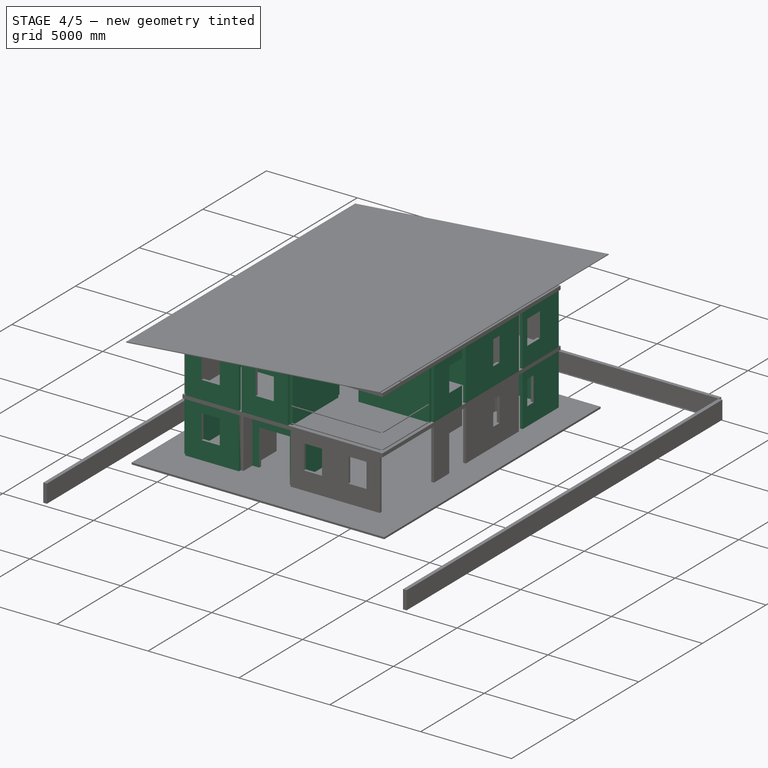
[diagram: stage 4 of 5 — iso view after this stage's code; geometry added in this stage tinted green]
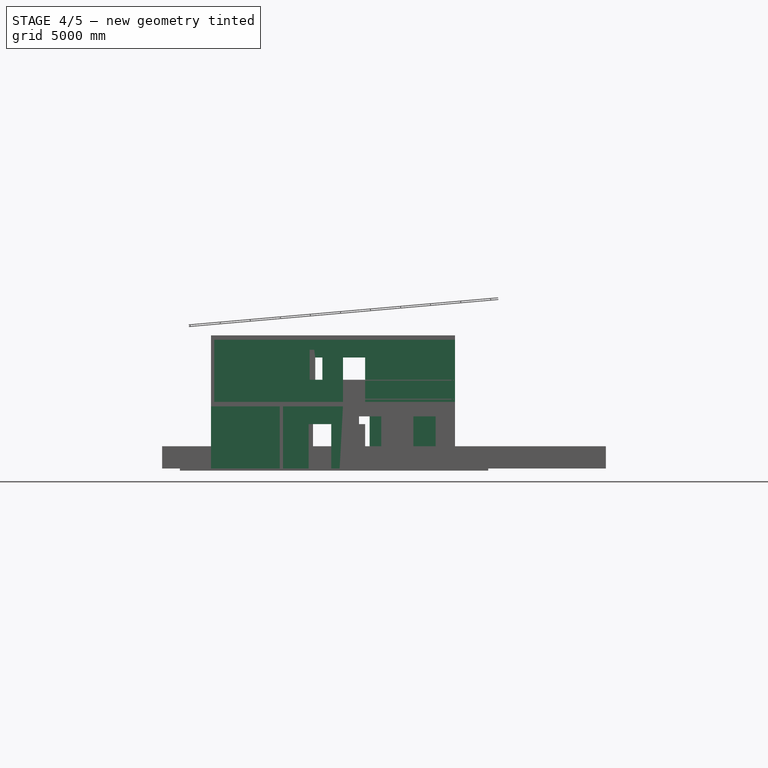
[diagram: stage 4 of 5 — front view after this stage's code; geometry added in this stage tinted green]
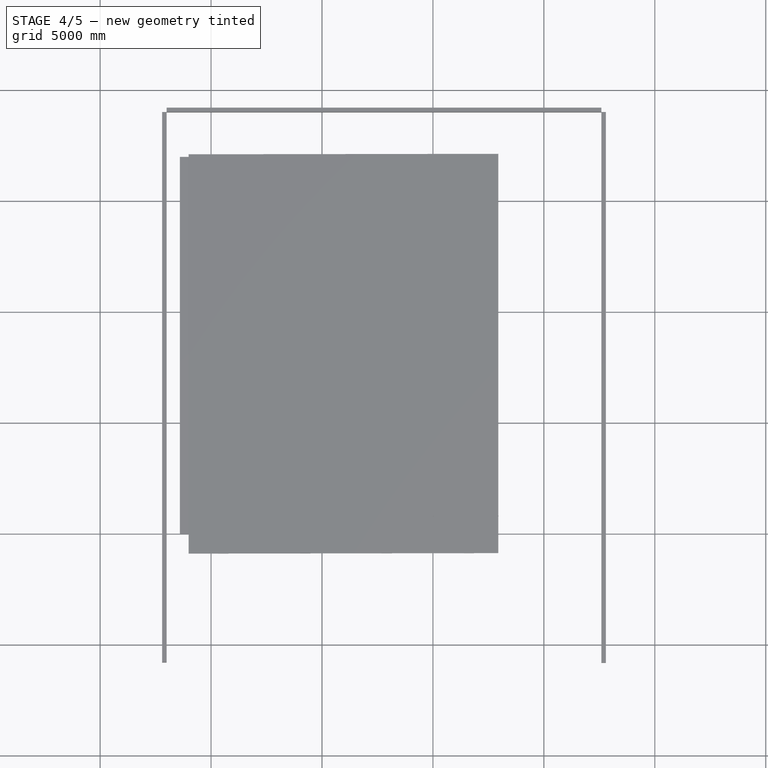
[diagram: stage 4 of 5 — top view after this stage's code; geometry added in this stage tinted green]
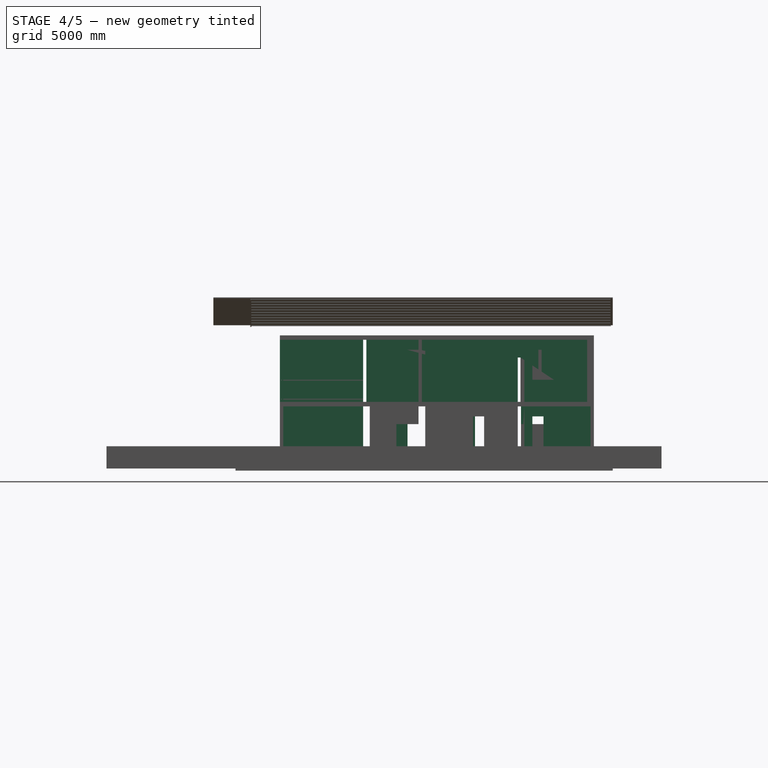
[diagram: stage 4 of 5 — right view after this stage's code; geometry added in this stage tinted green]
FEATURE [Part::Part2DObjectPython] Line025  # Draft 2D object (typed FeaturePython)
  ChamferSize = 0
  Closed = false
  End = (8945,13020,0)
  FilletRadius = 0
  Length = 2830
  MakeFace = true
  Placement = pos=(0,0,3000) rot=(0,0,1;0rad)
  Points = (2) [(8945,15850,-3000),(8945,13020,-3000)]
  Start = (8945,15850,0)
FEATURE [Part::FeaturePython] Wall028  # WARN: FeaturePython — macro-defined, semantics opaque (R4)
  Align = 2
  Base = -> Line009
  Face = 0
  Height = 2800
  Length = 0
  MoveWithHost = false
  Normal = (0,0,0)
  Role = 0
  Width = 150
FEATURE [Part::FeaturePython] Wall031  # WARN: FeaturePython — macro-defined, semantics opaque (R4)
  Align = 2
  Base = -> Line021
  Face = 0
  Height = 2800
  Length = 0
  MoveWithHost = false
  Normal = (0,0,0)
  Role = 0
  Width = 150
FEATURE [Part::FeaturePython] Wall033  # WARN: FeaturePython — macro-defined, semantics opaque (R4)
  Align = 2
  Base = -> Line018
  Face = 0
  Height = 2800
  Length = 0
  MoveWithHost = false
  Normal = (0,0,0)
  Role = 0
  Width = 150
FEATURE [Part::FeaturePython] Wall034  # WARN: FeaturePython — macro-defined, semantics opaque (R4)
  Align = 0
  Base = -> Line022
  Face = 0
  Height = 2800
  Length = 0
  MoveWithHost = false
  Normal = (0,0,0)
  Placement = pos=(0,0,3000) rot=(0,0,1;0rad)
  Role = 0
  Width = 150
FEATURE [Part::FeaturePython] Wall035  # WARN: FeaturePython — macro-defined, semantics opaque (R4)
  Align = 0
  Base = -> Line016
  Face = 0
  Height = 2800
  Length = 0
  MoveWithHost = false
  Normal = (0,0,0)
  Role = 0
  Width = 150
FEATURE [Part::Part2DObjectPython] Line026  # Draft 2D object (typed FeaturePython)
  ChamferSize = 0
  Closed = false
  End = (3095,5900,3000)
  FilletRadius = 0
  Length = 2950
  MakeFace = true
  Points = (2) [(145,5900,3000),(3095,5900,3000)]
  Start = (145,5900,3000)
FEATURE [Part::Part2DObjectPython] Line027  # Draft 2D object (typed FeaturePython)
  ChamferSize = 0
  Closed = false
  End = (5795,5900,3000)
  FilletRadius = 0
  Length = 1200
  MakeFace = true
  Points = (2) [(4595,5900,3000),(5795,5900,3000)]
  Start = (4595,5900,3000)
FEATURE [Part::FeaturePython] Wall046  # WARN: FeaturePython — macro-defined, semantics opaque (R4)
  Align = 1
  Base = -> Line026
  Face = 0
  Height = 2800
  Length = 0
  MoveWithHost = false
  Normal = (0,0,0)
  Role = 0
  Width = 150
FEATURE [Part::Part2DObjectPython] Line028  # Draft 2D object (typed FeaturePython)
  ChamferSize = 0
  Closed = false
  End = (10845,5900,3000)
  FilletRadius = 0
  Length = 4900
  MakeFace = true
  Points = (2) [(5945,5900,3000),(10845,5900,3000)]
  Start = (5945,5900,3000)
FEATURE [Part::Part2DObjectPython] Line029  # Draft 2D object (typed FeaturePython)
  ChamferSize = 0
  Closed = false
  End = (70,13020,3000)
  FilletRadius = 0
  Length = 2830
  MakeFace = true
  Points = (2) [(70,15850,3000),(70,13020,3000)]
  Start = (70,15850,3000)
FEATURE [Part::Part2DObjectPython] Line030  # Draft 2D object (typed FeaturePython)
  ChamferSize = 0
  Closed = false
  End = (145,16000,3000)
  FilletRadius = 0
  Length = 2950
  MakeFace = true
  Points = (2) [(3095,16000,3000),(145,16000,3000)]
  Start = (3095,16000,3000)
FEATURE [Part::FeaturePython] Wall048  # WARN: FeaturePython — macro-defined, semantics opaque (R4)
  Align = 2
  Base = -> Line029
  Face = 0
  Height = 2800
  Length = 0
  MoveWithHost = false
  Normal = (0,0,0)
  Role = 0
  Width = 150
FEATURE [Part::Part2DObjectPython] Line031  # Draft 2D object (typed FeaturePython)
  ChamferSize = 0
  Closed = false
  End = (3245,16000,3000)
  FilletRadius = 0
  Length = 2550
  MakeFace = true
  Points = (2) [(5795,16000,3000),(3245,16000,3000)]
  Start = (5795,16000,3000)
FEATURE [Part::Part2DObjectPython] Line039  # Draft 2D object (typed FeaturePython)
  ChamferSize = 0
  Closed = false
  End = (10845,10200,3000)
  FilletRadius = 0
  Length = 3550
  MakeFace = true
  Points = (2) [(7295,10200,3000),(10845,10200,3000)]
  Start = (7295,10200,3000)
FEATURE [Part::FeaturePython] Wall051  # WARN: FeaturePython — macro-defined, semantics opaque (R4)
  Align = 0
  Base = -> Line039
  Face = 0
  Height = 2800
  Length = 0
  MoveWithHost = false
  Normal = (0,0,0)
  Role = 0
  Width = 150
FEATURE [Part::Part2DObjectPython] Line023  # Draft 2D object (typed FeaturePython)
  ChamferSize = 0
  Closed = false
  End = (4520,12720,3000)
  FilletRadius = 0
  Length = 4170
  MakeFace = true
  Points = (2) [(4520,8550,3000),(4520,12720,3000)]
  Start = (4520,8550,3000)
FEATURE [Part::FeaturePython] Wall029  # WARN: FeaturePython — macro-defined, semantics opaque (R4)
  Align = 2
  Base = -> Line023
  Face = 0
  Height = 2800
  Length = 0
  MoveWithHost = false
  Normal = (0,0,0)
  Role = 0
  Width = 150
FEATURE [App::FeaturePython] Dimension004  # Draft dimension (typed FeaturePython)
  Dimline = (2324.22,8975.84,0)
  Direction = (0,0,0)
  Distance = 3.87329
  End = (1685.11,9400,3000)
  Normal = (0,0,1)
  Start = (1688.99,9400,3000)
FEATURE [Part::Part2DObjectPython] Line069  # Draft 2D object (typed FeaturePython)
  ChamferSize = 0
  Closed = false
  End = (-1718.63,8400,0)
  FilletRadius = 0
  Length = 3259.04
  MakeFace = true
  Points = (2) [(1540.41,8400,0),(-1718.63,8400,0)]
  Start = (1540.41,8400,0)
FEATURE [Part::Part2DObjectPython] Line070  # Draft 2D object (typed FeaturePython)
  ChamferSize = 0
  Closed = false
  End = (-1718.63,9600,0)
  FilletRadius = 0
  Length = 1863.63
  MakeFace = true
  Points = (2) [(145,9600,0),(-1718.63,9600,0)]
  Start = (145,9600,0)
FEATURE [Part::Part2DObjectPython] Line071  # Draft 2D object (typed FeaturePython)
  ChamferSize = 0
  Closed = false
  End = (4445,9600,0)
  FilletRadius = 0
  Length = 4300
  MakeFace = true
  Points = (2) [(145,9600,0),(4445,9600,0)]
  Start = (145,9600,0)
FEATURE [Part::Part2DObjectPython] Line072  # Draft 2D object (typed FeaturePython)
  ChamferSize = 0
  Closed = false
  End = (145,13020,0)
  FilletRadius = 0
  Length = 4300
  MakeFace = true
  Points = (2) [(4445,13020,0),(145,13020,0)]
  Start = (4445,13020,0)
FEATURE [Part::Part2DObjectPython] Line073  # Draft 2D object (typed FeaturePython)
  ChamferSize = 0
  Closed = false
  End = (5795,3000,0)
  FilletRadius = 0
  Length = 2550
  MakeFace = true
  Points = (2) [(3245,3000,0),(5795,3000,0)]
  Start = (3245,3000,0)
FEATURE [Part::Feature] Mesh
  Placement = pos=(5488.78,8171.39,0) rot=(0,0,1;0rad)
  shape: bbox 1200 x 4502 x 3000 mm, 40 faces (baked)
FEATURE [Part::Part2DObjectPython] Line074  # Draft 2D object (typed FeaturePython)
  ChamferSize = 0
  Closed = false
  End = (145,2000,0)
  FilletRadius = 0
  Length = 2950
  MakeFace = true
  Points = (2) [(3095,2000,0),(145,2000,0)]
  Start = (3095,2000,0)
FEATURE [Part::FeaturePython] Stairs  # WARN: FeaturePython — macro-defined, semantics opaque (R4)
  Align = 0
  Base = -> Mesh
  BlondelRatio = 0
  Height = 3000
  Landings = 0
  Length = 4500
  MoveWithHost = false
  Nosing = 0
  NumberOfSteps = 0
  Placement = pos=(5488.78,8171.39,0) rot=(0,0,1;0rad)
  RiserHeight = 0
  Role = 0
  StringerWidth = 0
  Structure = 0
  StructureOffset = 0
  StructureThickness = 0
  TreadDepth = 0
  TreadThickness = 0
  Width = 1000
  Winders = 0
FEATURE [Part::Part2DObjectPython] Line076  # Draft 2D object (typed FeaturePython)
  ChamferSize = 0
  Closed = false
  End = (70,12720,0)
  FilletRadius = 0
  Length = 4170
  MakeFace = true
  Points = (2) [(70,8550,0.180568),(70,12720,0)]
  Start = (70,8550,0.180568)
FEATURE [Part::Part2DObjectPython] Line077  # Draft 2D object (typed FeaturePython)
  ChamferSize = 0
  Closed = false
  End = (10920,15850,0)
  FilletRadius = 0
  Length = 2830
  MakeFace = true
  Points = (2) [(10920,13020,0),(10920,15850,0)]
  Start = (10920,13020,0)
FEATURE [Part::Part2DObjectPython] Line078  # Draft 2D object (typed FeaturePython)
  ChamferSize = 0
  Closed = false
  End = (5870,5750,0)
  FilletRadius = 0
  Length = 3600
  MakeFace = true
  Points = (2) [(5870,2150,0),(5870,5750,0)]
  Start = (5870,2150,0)
FEATURE [Part::FeaturePython] Wall074  # WARN: FeaturePython — macro-defined, semantics opaque (R4)
  Align = 2
  Base = -> Line078
  Face = 0
  Height = 2800
  Length = 0
  MoveWithHost = false
  Normal = (0,0,0)
  Role = 0
  Width = 150
FEATURE [Part::FeaturePython] Wall026  # WARN: FeaturePython — macro-defined, semantics opaque (R4)
  Align = 2
  Base = -> Line003
  Face = 0
  Height = 2800
  Length = 0
  MoveWithHost = false
  Normal = (0,0,0)
  Placement = pos=(0,0,3000) rot=(0,0,1;0rad)
  Role = 0
  Subtractions = -> [Window001]
  Width = 150
FEATURE [Part::FeaturePython] Wall030  # WARN: FeaturePython — macro-defined, semantics opaque (R4)
  Align = 2
  Base = -> Line004
  Face = 0
  Height = 2800
  Length = 0
  MoveWithHost = false
  Normal = (0,0,0)
  Placement = pos=(0,0,3000) rot=(0,0,1;0rad)
  Role = 0
  Subtractions = -> [Window003]
  Width = 150
FEATURE [Part::FeaturePython] Wall038  # WARN: FeaturePython — macro-defined, semantics opaque (R4)
  Align = 2
  Base = -> Line002
  Face = 0
  Height = 2800
  Length = 0
  MoveWithHost = false
  Normal = (0,0,0)
  Placement = pos=(0,0,3000) rot=(0,0,1;0rad)
  Role = 0
  Subtractions = -> [Window]
  Width = 150
FEATURE [Part::FeaturePython] Wall073  # WARN: FeaturePython — macro-defined, semantics opaque (R4)
  Align = 2
  Base = -> Line077
  Face = 0
  Height = 2800
  Length = 0
  MoveWithHost = false
  Normal = (0,0,0)
  Role = 0
  Subtractions = -> [Window005]
  Width = 150
FEATURE [Part::FeaturePython] Wall068  # WARN: FeaturePython — macro-defined, semantics opaque (R4)
  Align = 0
  Base = -> Line073
  Face = 0
  Height = 2800
  Length = 0
  MoveWithHost = false
  Normal = (0,0,0)
  Role = 0
  Subtractions = -> [Window007,Window008,Window009]
  Width = 150
FEATURE [Part::FeaturePython] Wall069  # WARN: FeaturePython — macro-defined, semantics opaque (R4)
  Align = 0
  Base = -> Line074
  Face = 0
  Height = 2800
  Length = 0
  MoveWithHost = false
  Normal = (0,0,0)
  Role = 0
  Subtractions = -> [Window012]
  Width = 150
FEATURE [Part::FeaturePython] Wall042  # WARN: FeaturePython — macro-defined, semantics opaque (R4)
  Align = 1
  Base = -> Line007
  Face = 0
  Height = 2800
  Length = 0
  MoveWithHost = false
  Normal = (0,0,0)
  Placement = pos=(0,0,3000) rot=(0,0,1;0rad)
  Role = 0
  Subtractions = -> [Window013]
  Width = 150
FEATURE [Part::FeaturePython] Wall023  # WARN: FeaturePython — macro-defined, semantics opaque (R4)
  Align = 0
  Base = -> Line010
  Face = 0
  Height = 2800
  Length = 0
  MoveWithHost = false
  Normal = (0,0,0)
  Role = 0
  Subtractions = -> [Window014,Window015]
  Width = 150
FEATURE [Part::FeaturePython] Wall  # WARN: FeaturePython — macro-defined, semantics opaque (R4)
  Align = 1
  Base = -> Line079
  Face = 0
  Height = 2800
  Length = 0
  MoveWithHost = false
  Normal = (0,0,0)
  Role = 0
  Subtractions = -> [Window019]
  Width = 150
FEATURE [Part::FeaturePython] Wall075  # WARN: FeaturePython — macro-defined, semantics opaque (R4)
  Align = 2
  Base = -> Line080
  Face = 0
  Height = 2800
  Length = 0
  MoveWithHost = false
  Normal = (0,0,0)
  Role = 0
  Subtractions = -> [Window024]
  Width = 150
FEATURE [Part::FeaturePython] Wall027  # WARN: FeaturePython — macro-defined, semantics opaque (R4)
  Align = 2
  Base = -> Line014
  Face = 0
  Height = 2800
  Length = 0
  MoveWithHost = false
  Normal = (0,0,0)
  Placement = pos=(0,0,3000) rot=(0,0,1;0rad)
  Role = 0
  Subtractions = -> [Window027]
  Width = 150
FEATURE [Part::FeaturePython] Wall072  # WARN: FeaturePython — macro-defined, semantics opaque (R4)
  Align = 2
  Base = -> Line076
  Face = 0
  Height = 2800
  Length = 0
  MoveWithHost = false
  Normal = (0,0,0)
  Role = 0
  Subtractions = -> [Window030,Window032]
  Width = 150
FEATURE [Part::FeaturePython] Wall041  # WARN: FeaturePython — macro-defined, semantics opaque (R4)
  Align = 2
  Base = -> Line015
  Face = 0
  Height = 2800
  Length = 0
  MoveWithHost = false
  Normal = (0,0,0)
  Placement = pos=(0,0,3000) rot=(0,0,1;0rad)
  Role = 0
  Subtractions = -> [Window029,Window031,Window033]
  Width = 150
FEATURE [Part::FeaturePython] Wall077  # WARN: FeaturePython — macro-defined, semantics opaque (R4)
  Align = 2
  Base = -> Line082
  Face = 0
  Height = 2800
  Length = 0
  MoveWithHost = false
  Normal = (0,0,0)
  Role = 0
  Subtractions = -> [Window034]
  Width = 150
FEATURE [Part::FeaturePython] Wall045  # WARN: FeaturePython — macro-defined, semantics opaque (R4)
  Align = 1
  Base = -> Line027
  Face = 0
  Height = 2800
  Length = 0
  MoveWithHost = false
  Normal = (0,0,0)
  Role = 0
  Subtractions = -> [Window039]
  Width = 150
FEATURE [Part::FeaturePython] Wall052  # WARN: FeaturePython — macro-defined, semantics opaque (R4)
  Align = 1
  Base = -> Line040
  Face = 0
  Height = 2800
  Length = 0
  MoveWithHost = false
  Normal = (0,0,0)
  Role = 0
  Subtractions = -> [Window040,Window041,Window042]
  Width = 150
FEATURE [Part::FeaturePython] Wall037  # WARN: FeaturePython — macro-defined, semantics opaque (R4)
  Align = 0
  Base = -> Line019
  Face = 0
  Height = 2800
  Length = 0
  MoveWithHost = false
  Normal = (0,0,0)
  Role = 0
  Subtractions = -> [Window043]
  Width = 150
FEATURE [Part::FeaturePython] Wall047  # WARN: FeaturePython — macro-defined, semantics opaque (R4)
  Align = 1
  Base = -> Line028
  Face = 0
  Height = 2800
  Length = 0
  MoveWithHost = false
  Normal = (0,0,0)
  Role = 0
  Subtractions = -> [Window044]
  Width = 150
FEATURE [Part::FeaturePython] Wall066  # WARN: FeaturePython — macro-defined, semantics opaque (R4)
  Align = 1
  Base = -> Line071
  Face = 0
  Height = 2800
  Length = 0
  MoveWithHost = false
  Normal = (0,0,0)
  Role = 0
  Subtractions = -> [Window045]
  Width = 150
FEATURE [Part::FeaturePython] Wall067  # WARN: FeaturePython — macro-defined, semantics opaque (R4)
  Align = 1
  Base = -> Line072
  Face = 0
  Height = 2800
  Length = 0
  MoveWithHost = false
  Normal = (0,0,0)
  Role = 0
  Subtractions = -> [Window049]
  Width = 150
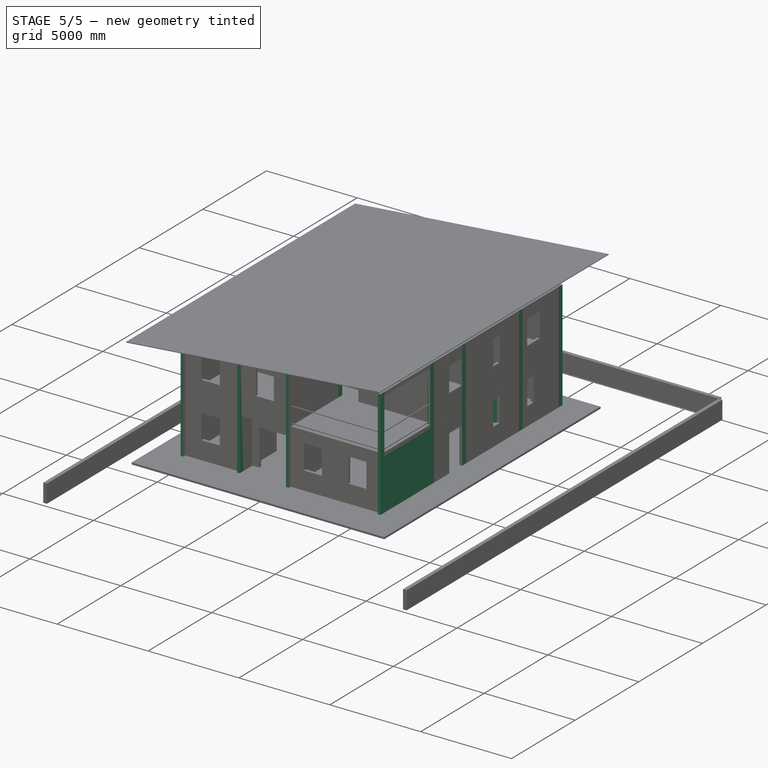
[diagram: stage 5 of 5 — iso view after this stage's code; geometry added in this stage tinted green]
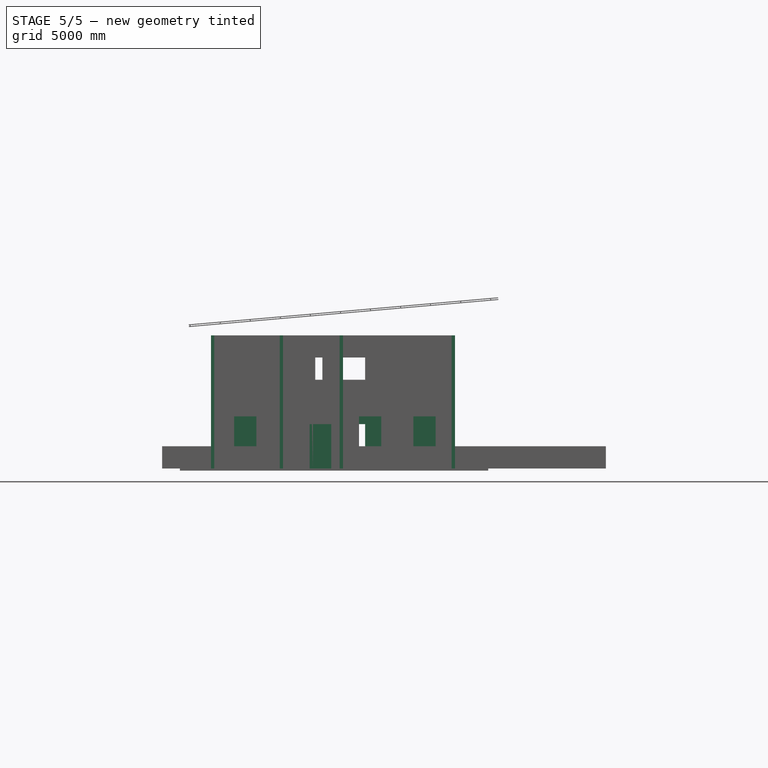
[diagram: stage 5 of 5 — front view after this stage's code; geometry added in this stage tinted green]
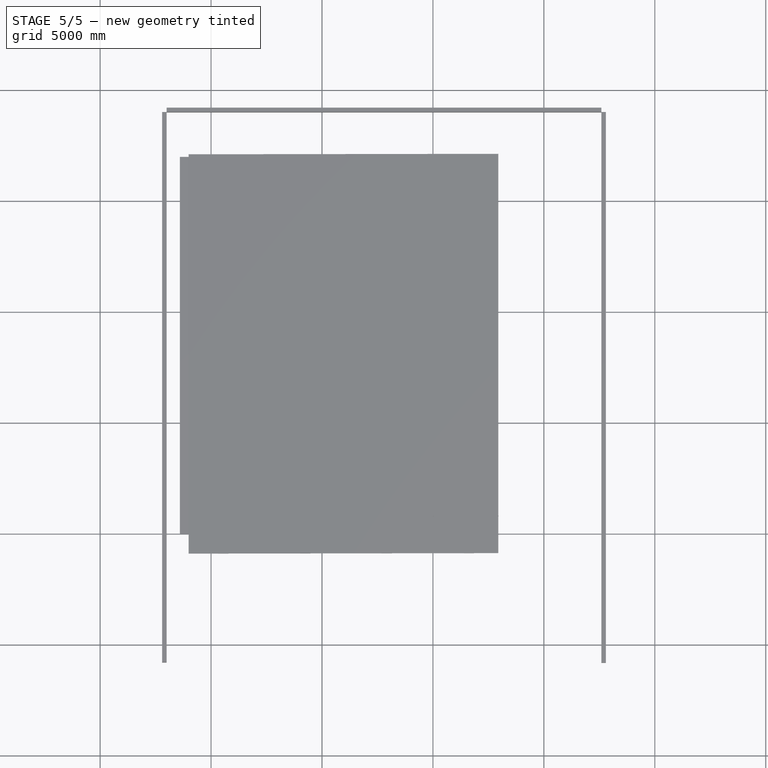
[diagram: stage 5 of 5 — top view after this stage's code; geometry added in this stage tinted green]
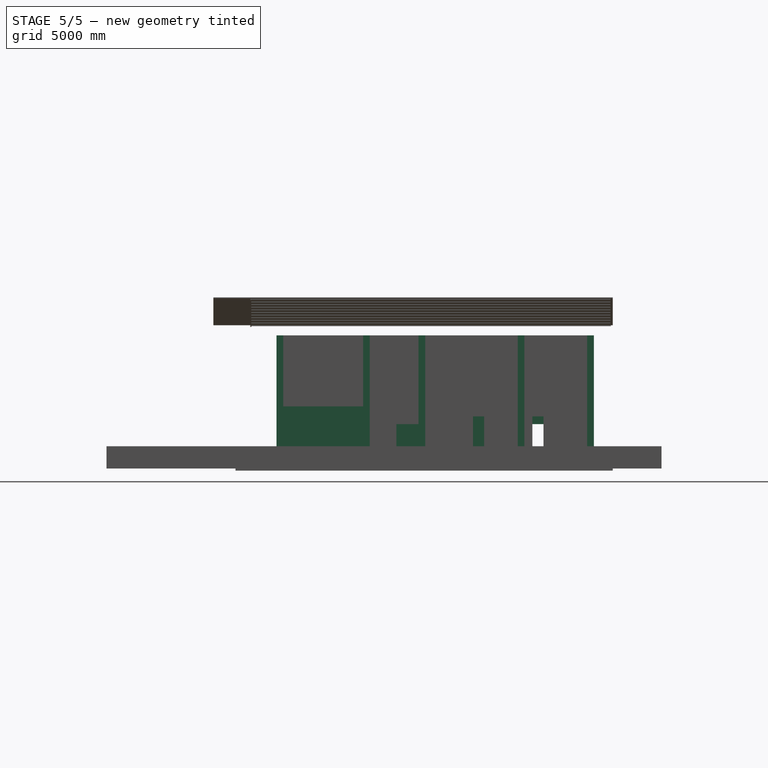
[diagram: stage 5 of 5 — right view after this stage's code; geometry added in this stage tinted green]
FEATURE [App::FeaturePython] Axes  # WARN: FeaturePython — macro-defined, semantics opaque (R4)
  Angles = [0,0,0,0,0]
  Distances = [70,3100,1350,1350,5050]
  Length = 17000
FEATURE [App::FeaturePython] Axes001  # WARN: FeaturePython — macro-defined, semantics opaque (R4)
  Angles = [0,0,0,0,0]
  Distances = [0,3130,4470,2500,3900]
  Length = 15000
  Placement = pos=(-2000,16000,0) rot=(0,0,-1;1.5708rad)
FEATURE [Part::FeaturePython] Structure  # WARN: FeaturePython — macro-defined, semantics opaque (R4)
  Height = 6000
  Length = 150
  MoveWithHost = false
  Nodes = (2) [(0,0,0),(0,0,6000)]
  Normal = (0,0,0)
  Placement = pos=(70,16000,0) rot=(0,0,1;0rad)
  Role = 1
  Width = 300
FEATURE [Part::FeaturePython] Structure001  # WARN: FeaturePython — macro-defined, semantics opaque (R4)
  Height = 6000
  Length = 150
  MoveWithHost = false
  Nodes = (2) [(0,0,0),(0,0,6000)]
  Normal = (0,0,0)
  Placement = pos=(3170,16000,0) rot=(0,0,1;0rad)
  Role = 1
  Width = 300
FEATURE [Part::FeaturePython] Structure003  # WARN: FeaturePython — macro-defined, semantics opaque (R4)
  Height = 6000
  Length = 150
  MoveWithHost = false
  Nodes = (2) [(0,0,0),(0,0,6000)]
  Normal = (0,0,0)
  Placement = pos=(10920,16000,0) rot=(0,0,1;0rad)
  Role = 1
  Width = 300
FEATURE [Part::FeaturePython] Structure016  # WARN: FeaturePython — macro-defined, semantics opaque (R4)
  Height = 6000
  Length = 150
  MoveWithHost = false
  Nodes = (2) [(0,0,0),(0,0,6000)]
  Normal = (0,0,0)
  Placement = pos=(70,5900,0) rot=(0,0,1;0rad)
  Role = 1
  Width = 300
FEATURE [Part::FeaturePython] Structure019  # WARN: FeaturePython — macro-defined, semantics opaque (R4)
  Height = 6000
  Length = 150
  MoveWithHost = false
  Nodes = (2) [(0,0,0),(0,0,6000)]
  Normal = (0,0,0)
  Placement = pos=(10920,5900,0) rot=(0,0,1;0rad)
  Role = 1
  Width = 300
FEATURE [Part::FeaturePython] Structure018  # WARN: FeaturePython — macro-defined, semantics opaque (R4)
  Height = 6000
  Length = 150
  MoveWithHost = false
  Nodes = (2) [(0,0,0),(0,0,6000)]
  Normal = (0,0,0)
  Placement = pos=(5870,5900,0) rot=(0,0,1;0rad)
  Role = 1
  Width = 300
FEATURE [Part::FeaturePython] Structure017  # WARN: FeaturePython — macro-defined, semantics opaque (R4)
  Height = 6000
  Length = 150
  MoveWithHost = false
  Nodes = (2) [(0,0,0),(0,0,6000)]
  Normal = (0,0,0)
  Placement = pos=(3170,5900,0) rot=(0,0,1;0rad)
  Role = 1
  Width = 300
FEATURE [Part::FeaturePython] Structure020  # WARN: FeaturePython — macro-defined, semantics opaque (R4)
  Height = 6000
  Length = 150
  MoveWithHost = false
  Nodes = (2) [(0,0,0),(0,0,6000)]
  Normal = (0,0,0)
  Placement = pos=(70,2000,0) rot=(0,0,1;0rad)
  Role = 1
  Width = 300
FEATURE [Part::FeaturePython] Structure021  # WARN: FeaturePython — macro-defined, semantics opaque (R4)
  Height = 6000
  Length = 150
  MoveWithHost = false
  Nodes = (2) [(0,0,0),(0,0,6000)]
  Normal = (0,0,0)
  Placement = pos=(10920,2000,0) rot=(0,0,1;0rad)
  Role = 1
  Width = 300
FEATURE [Part::FeaturePython] Structure022  # WARN: FeaturePython — macro-defined, semantics opaque (R4)
  Height = 6000
  Length = 150
  MoveWithHost = false
  Nodes = (2) [(0,0,0),(0,0,6000)]
  Normal = (0,0,0)
  Placement = pos=(5870,2000,0) rot=(0,0,1;0rad)
  Role = 1
  Width = 300
FEATURE [Part::FeaturePython] Structure023  # WARN: FeaturePython — macro-defined, semantics opaque (R4)
  Height = 6000
  Length = 150
  MoveWithHost = false
  Nodes = (2) [(0,0,0),(0,0,6000)]
  Normal = (0,0,0)
  Placement = pos=(3170,2000,0) rot=(0,0,1;0rad)
  Role = 1
  Width = 300
FEATURE [Part::FeaturePython] Structure024  # WARN: FeaturePython — macro-defined, semantics opaque (R4)
  Height = 6000
  Length = 150
  MoveWithHost = false
  Nodes = (2) [(0,0,0),(0,0,6000)]
  Normal = (0,0,0)
  Placement = pos=(70,8400,0) rot=(0,0,1;0rad)
  Role = 1
  Width = 300
FEATURE [Part::FeaturePython] Structure025  # WARN: FeaturePython — macro-defined, semantics opaque (R4)
  Height = 6000
  Length = 150
  MoveWithHost = false
  Nodes = (2) [(0,0,0),(0,0,6000)]
  Normal = (0,0,0)
  Placement = pos=(10920,8400,0) rot=(0,0,1;0rad)
  Role = 1
  Width = 300
FEATURE [Part::FeaturePython] Structure026  # WARN: FeaturePython — macro-defined, semantics opaque (R4)
  Height = 6000
  Length = 150
  MoveWithHost = false
  Nodes = (2) [(0,0,0),(0,0,6000)]
  Normal = (0,0,0)
  Placement = pos=(5870,8400,0) rot=(0,0,1;0rad)
  Role = 1
  Width = 300
FEATURE [Part::FeaturePython] Structure027  # WARN: FeaturePython — macro-defined, semantics opaque (R4)
  Height = 6000
  Length = 150
  MoveWithHost = false
  Nodes = (2) [(0,0,0),(0,0,6000)]
  Normal = (0,0,0)
  Placement = pos=(4520,8400,0) rot=(0,0,1;0rad)
  Role = 1
  Width = 300
FEATURE [Part::FeaturePython] Structure028  # WARN: FeaturePython — macro-defined, semantics opaque (R4)
  Height = 6000
  Length = 150
  MoveWithHost = false
  Nodes = (2) [(0,0,0),(0,0,6000)]
  Normal = (0,0,0)
  Placement = pos=(70,12870,0) rot=(0,0,1;0rad)
  Role = 1
  Width = 300
FEATURE [Part::FeaturePython] Structure029  # WARN: FeaturePython — macro-defined, semantics opaque (R4)
  Height = 6000
  Length = 150
  MoveWithHost = false
  Nodes = (2) [(0,0,0),(0,0,6000)]
  Normal = (0,0,0)
  Placement = pos=(10920,12870,0) rot=(0,0,1;0rad)
  Role = 1
  Width = 300
FEATURE [Part::FeaturePython] Structure030  # WARN: FeaturePython — macro-defined, semantics opaque (R4)
  Height = 6000
  Length = 150
  MoveWithHost = false
  Nodes = (2) [(0,0,0),(0,0,6000)]
  Normal = (0,0,0)
  Placement = pos=(5870,12870,0) rot=(0,0,1;0rad)
  Role = 1
  Width = 300
FEATURE [Part::FeaturePython] Structure031  # WARN: FeaturePython — macro-defined, semantics opaque (R4)
  Height = 6000
  Length = 150
  MoveWithHost = false
  Nodes = (2) [(0,0,0),(0,0,6000)]
  Normal = (0,0,0)
  Placement = pos=(4520,12870,0) rot=(0,0,1;0rad)
  Role = 1
  Width = 300
FEATURE [App::DocumentObjectGroup] Group  label="A-Columns"
  Group = -> [Structure,Structure001,Structure002,Structure003,Structure016,Structure017,Structure018,Structure019,Structure020,Structure021,Structure022,Structure023,Structure024,Structure025,Structure026,Structure027,Structure028,Structure029,Structure030,Structure031]
FEATURE [Part::Part2DObjectPython] Line  # Draft 2D object (typed FeaturePython)
  ChamferSize = 0
  Closed = false
  End = (10845,16000,0)
  FilletRadius = 0
  Length = 4900
  MakeFace = true
  Points = (2) [(5945,16000,0),(10845,16000,0)]
  Start = (5945,16000,0)
FEATURE [Part::Part2DObjectPython] Line001  # Draft 2D object (typed FeaturePython)
  ChamferSize = 0
  Closed = false
  End = (5795,16000,0)
  FilletRadius = 0
  Length = 1350
  MakeFace = true
  Points = (2) [(4445,16000,0),(5795,16000,0)]
  Start = (4445,16000,0)
FEATURE [Part::Part2DObjectPython] Line002  # Draft 2D object (typed FeaturePython)
  ChamferSize = 0
  Closed = false
  End = (10920,15850,0)
  FilletRadius = 0
  Length = 2830
  MakeFace = true
  Points = (2) [(10920,13020,0),(10920,15850,0)]
  Start = (10920,13020,0)
FEATURE [Part::Part2DObjectPython] Line003  # Draft 2D object (typed FeaturePython)
  ChamferSize = 0
  Closed = false
  End = (10920,12720,0)
  FilletRadius = 0
  Length = 4170
  MakeFace = true
  Points = (2) [(10920,8550,0),(10920,12720,0)]
  Start = (10920,8550,0)
FEATURE [Part::Part2DObjectPython] Line004  # Draft 2D object (typed FeaturePython)
  ChamferSize = 0
  Closed = false
  End = (10920,6050,0)
  FilletRadius = 0
  Length = 2200
  MakeFace = true
  Points = (2) [(10920,8250,0),(10920,6050,0)]
  Start = (10920,8250,0)
FEATURE [Part::Part2DObjectPython] Line005  # Draft 2D object (typed FeaturePython)
  ChamferSize = 0
  Closed = false
  End = (10920,5750,0)
  FilletRadius = 0
  Length = 3600
  MakeFace = true
  Points = (2) [(10920,2150,0),(10920,5750,0)]
  Start = (10920,2150,0)
FEATURE [Part::Part2DObjectPython] Line007  # Draft 2D object (typed FeaturePython)
  ChamferSize = 0
  Closed = false
  End = (3095,2000,0)
  FilletRadius = 0
  Length = 2950
  MakeFace = true
  Points = (2) [(145,2000,0),(3095,2000,0)]
  Start = (145,2000,0)
FEATURE [Part::Part2DObjectPython] Line008  # Draft 2D object (typed FeaturePython)
  ChamferSize = 0
  Closed = false
  End = (3170,2150,0)
  FilletRadius = 0
  Length = 3600
  MakeFace = true
  Points = (2) [(3170,5750,0),(3170,2150,0)]
  Start = (3170,5750,0)
FEATURE [Part::Part2DObjectPython] Line009  # Draft 2D object (typed FeaturePython)
  ChamferSize = 0
  Closed = false
  End = (5870,2150,3000)
  FilletRadius = 0
  Length = 3600
  MakeFace = true
  Points = (2) [(5870,5750,3000),(5870,2150,3000)]
  Start = (5870,5750,3000)
FEATURE [Part::Part2DObjectPython] Line010  # Draft 2D object (typed FeaturePython)
  ChamferSize = 0
  Closed = false
  End = (3245,2000,3000)
  FilletRadius = 0
  Length = 2550
  MakeFace = true
  Placement = pos=(0,-1000,0) rot=(0,0,1;0rad)
  Points = (2) [(5795,3000,3000),(3245,3000,3000)]
  Start = (5795,2000,3000)
FEATURE [Part::Part2DObjectPython] Line011  # Draft 2D object (typed FeaturePython)
  ChamferSize = 0
  Closed = false
  End = (10845,2000,0)
  FilletRadius = 0
  Length = 4900
  MakeFace = true
  Points = (2) [(5945,2000,0),(10845,2000,0)]
  Start = (5945,2000,0)
FEATURE [Part::Part2DObjectPython] Line013  # Draft 2D object (typed FeaturePython)
  ChamferSize = 0
  Closed = false
  End = (70,5750,0)
  FilletRadius = 0
  Length = 3600
  MakeFace = true
  Placement = pos=(-10850,0,-3172.19) rot=(0,0,1;0rad)
  Points = (2) [(10920,2150,3172.19),(10920,5750,3172.19)]
  Start = (70,2150,0)
FEATURE [Part::Part2DObjectPython] Line014  # Draft 2D object (typed FeaturePython)
  ChamferSize = 0
  Closed = false
  End = (70,6050,0)
  FilletRadius = 0
  Length = 2200
  MakeFace = true
  Placement = pos=(-10850,0,-3172.19) rot=(0,0,1;0rad)
  Points = (2) [(10920,8250,3172.19),(10920,6050,3172.19)]
  Start = (70,8250,0)
FEATURE [Part::Part2DObjectPython] Line015  # Draft 2D object (typed FeaturePython)
  ChamferSize = 0
  Closed = false
  End = (70,12720,0)
  FilletRadius = 0
  Length = 4170
  MakeFace = true
  Placement = pos=(-10850,0,-3172.19) rot=(0,0,1;0rad)
  Points = (2) [(10920,8550,3172.19),(10920,12720,3172.19)]
  Start = (70,8550,0)
FEATURE [Part::Part2DObjectPython] Line016  # Draft 2D object (typed FeaturePython)
  ChamferSize = 0
  Closed = false
  End = (10845,11850,3000)
  FilletRadius = 0
  Length = 3550
  MakeFace = true
  Placement = pos=(0,-1020,3000) rot=(0,0,1;0rad)
  Points = (2) [(7295,12870,0),(10845,12870,0)]
  Start = (7295,11850,3000)
FEATURE [Part::Part2DObjectPython] Line017  # Draft 2D object (typed FeaturePython)
  ChamferSize = 0
  Closed = false
  End = (4595,12870,0)
  FilletRadius = 0
  Length = 1200
  MakeFace = true
  Points = (2) [(5795,12870,0),(4595,12870,0)]
  Start = (5795,12870,0)
FEATURE [Part::Part2DObjectPython] Line018  # Draft 2D object (typed FeaturePython)
  ChamferSize = 0
  Closed = false
  End = (4520,15350,3000)
  FilletRadius = 0
  Length = 500
  MakeFace = true
  Points = (2) [(4520,15850,3000),(4520,15350,3000)]
  Start = (4520,15850,3000)
FEATURE [Part::Part2DObjectPython] Line019  # Draft 2D object (typed FeaturePython)
  ChamferSize = 0
  Closed = false
  End = (145,12000,3000)
  FilletRadius = 0
  Length = 4300
  MakeFace = true
  Placement = pos=(0,-870,3000) rot=(0,0,1;0rad)
  Points = (2) [(4445,12870,0),(145,12870,0)]
  Start = (4445,12000,3000)
FEATURE [Part::Part2DObjectPython] Line020  # Draft 2D object (typed FeaturePython)
  ChamferSize = 0
  Closed = false
  End = (145,8400,3000)
  FilletRadius = 0
  Length = 2950
  MakeFace = true
  Points = (2) [(3095,8400,3000),(145,8400,3000)]
  Start = (3095,8400,3000)
FEATURE [Part::Part2DObjectPython] Line021  # Draft 2D object (typed FeaturePython)
  ChamferSize = 0
  Closed = false
  End = (3170,6050,3000)
  FilletRadius = 0
  Length = 3550
  MakeFace = true
  Points = (2) [(3170,9600,3000),(3170,6050,3000)]
  Start = (3170,9600,3000)
FEATURE [Part::Part2DObjectPython] Line022  # Draft 2D object (typed FeaturePython)
  ChamferSize = 0
  Closed = false
  End = (145,9600,0)
  FilletRadius = 0
  Length = 4300
  MakeFace = true
  Placement = pos=(0,50,0) rot=(0,0,1;0rad)
  Points = (2) [(4445,9550,0),(145,9550,0)]
  Start = (4445,9600,0)
FEATURE [Part::FeaturePython] Wall004  # WARN: FeaturePython — macro-defined, semantics opaque (R4)
  Align = 2
  Base = -> Line005
  Face = 0
  Height = 2800
  Length = 0
  MoveWithHost = false
  Normal = (0,0,0)
  Role = 0
  Width = 150
FEATURE [Part::FeaturePython] Wall013  # WARN: FeaturePython — macro-defined, semantics opaque (R4)
  Align = 0
  Base = -> Line017
  Face = 0
  Height = 2800
  Length = 0
  MoveWithHost = false
  Normal = (0,0,0)
  Role = 0
  Width = 150
FEATURE [Part::FeaturePython] Wall015  # WARN: FeaturePython — macro-defined, semantics opaque (R4)
  Align = 0
  Base = -> Line001
  Face = 0
  Height = 2800
  Length = 0
  MoveWithHost = false
  Normal = (0,0,0)
  Role = 0
  Width = 150
FEATURE [Part::Part2DObjectPython] Line060  # Draft 2D object (typed FeaturePython)
  ChamferSize = 0
  Closed = false
  End = (10845,12870,0)
  FilletRadius = 0
  Length = 4900
  MakeFace = true
  Points = (2) [(5945,12870,0),(10845,12870,0)]
  Start = (5945,12870,0)
FEATURE [Part::Part2DObjectPython] Line061  # Draft 2D object (typed FeaturePython)
  ChamferSize = 0
  Closed = false
  End = (10845,16814.3,0)
  FilletRadius = 0
  Length = 2358.9
  MakeFace = true
  Points = (2) [(10845,14455.4,0),(10845,16814.3,0)]
  Start = (10845,14455.4,0)
FEATURE [Part::Part2DObjectPython] Line062  # Draft 2D object (typed FeaturePython)
  ChamferSize = 0
  Closed = false
  End = (4520,15850,0)
  FilletRadius = 0
  Length = 2830
  MakeFace = true
  Points = (2) [(4520,13020,0),(4520,15850,0)]
  Start = (4520,13020,0)
FEATURE [Part::Part2DObjectPython] Line063  # Draft 2D object (typed FeaturePython)
  ChamferSize = 0
  Closed = false
  End = (4520,12720,0)
  FilletRadius = 0
  Length = 4170
  MakeFace = true
  Points = (2) [(4520,8550,0),(4520,12720,0)]
  Start = (4520,8550,0)
FEATURE [Part::FeaturePython] Wall062  # WARN: FeaturePython — macro-defined, semantics opaque (R4)
  Align = 2
  Base = -> Line063
  Face = 0
  Height = 2800
  Length = 0
  MoveWithHost = false
  Normal = (0,0,0)
  Role = 0
  Width = 150
FEATURE [Part::Part2DObjectPython] Line064  # Draft 2D object (typed FeaturePython)
  ChamferSize = 0
  Closed = false
  End = (3170,6050,0)
  FilletRadius = 0
  Length = 3550
  MakeFace = true
  Points = (2) [(3170,9600,0),(3170,6050,0)]
  Start = (3170,9600,0)
FEATURE [Part::Part2DObjectPython] Line065  # Draft 2D object (typed FeaturePython)
  ChamferSize = 0
  Closed = false
  End = (-1337.85,2150,0)
  FilletRadius = 0
  Length = 2264.08
  MakeFace = true
  Points = (2) [(926.23,2150,0),(-1337.85,2150,0)]
  Start = (926.23,2150,0)
FEATURE [Part::Part2DObjectPython] Line066  # Draft 2D object (typed FeaturePython)
  ChamferSize = 0
  Closed = false
  End = (-1337.85,6500,0)
  FilletRadius = 0
  Length = 2264.08
  MakeFace = true
  Points = (2) [(926.23,6500,0),(-1337.85,6500,0)]
  Start = (926.23,6500,0)
FEATURE [Part::Part2DObjectPython] Line067  # Draft 2D object (typed FeaturePython)
  ChamferSize = 0
  Closed = false
  End = (3095,6500,0)
  FilletRadius = 0
  Length = 2950
  MakeFace = true
  Points = (2) [(145,6500,0),(3095,6500,0)]
  Start = (145,6500,0)
FEATURE [Part::Part2DObjectPython] Line068  # Draft 2D object (typed FeaturePython)
  ChamferSize = 0
  Closed = false
  End = (3095,8250,0)
  FilletRadius = 0
  Length = 2950
  MakeFace = true
  Points = (2) [(145,8250,0),(3095,8250,0)]
  Start = (145,8250,0)
FEATURE [Part::FeaturePython] Wall065  # WARN: FeaturePython — macro-defined, semantics opaque (R4)
  Align = 1
  Base = -> Line068
  Face = 0
  Height = 2800
  Length = 0
  MoveWithHost = false
  Normal = (0,0,0)
  Role = 0
  Width = 150
FEATURE [Part::FeaturePython] Wall061  # WARN: FeaturePython — macro-defined, semantics opaque (R4)
  Align = 2
  Base = -> Line062
  Face = 0
  Height = 2800
  Length = 0
  MoveWithHost = false
  Normal = (0,0,0)
  Role = 0
  Subtractions = -> [Window038]
  Width = 150
FEATURE [Part::FeaturePython] Wall063  # WARN: FeaturePython — macro-defined, semantics opaque (R4)
  Align = 2
  Base = -> Line064
  Face = 0
  Height = 2800
  Length = 0
  MoveWithHost = false
  Normal = (0,0,0)
  Role = 0
  Subtractions = -> [Window046]
  Width = 150
FEATURE [Part::FeaturePython] Wall064  # WARN: FeaturePython — macro-defined, semantics opaque (R4)
  Align = 1
  Base = -> Line067
  Face = 0
  Height = 2800
  Length = 0
  MoveWithHost = false
  Normal = (0,0,0)
  Role = 0
  Subtractions = -> [Window047]
  Width = 150
FEATURE [Part::FeaturePython] Wall060  # WARN: FeaturePython — macro-defined, semantics opaque (R4)
  Align = 0
  Base = -> Line025
  Face = 0
  Height = 2800
  Length = 0
  MoveWithHost = false
  Normal = (0,0,0)
  Role = 0
  Subtractions = -> [Window050]
  Width = 150
FEATURE [Part::FeaturePython] Wall059  # WARN: FeaturePython — macro-defined, semantics opaque (R4)
  Align = 1
  Base = -> Line060
  Face = 0
  Height = 2800
  Length = 0
  MoveWithHost = false
  Normal = (0,0,0)
  Role = 0
  Subtractions = -> [Window051]
  Width = 150
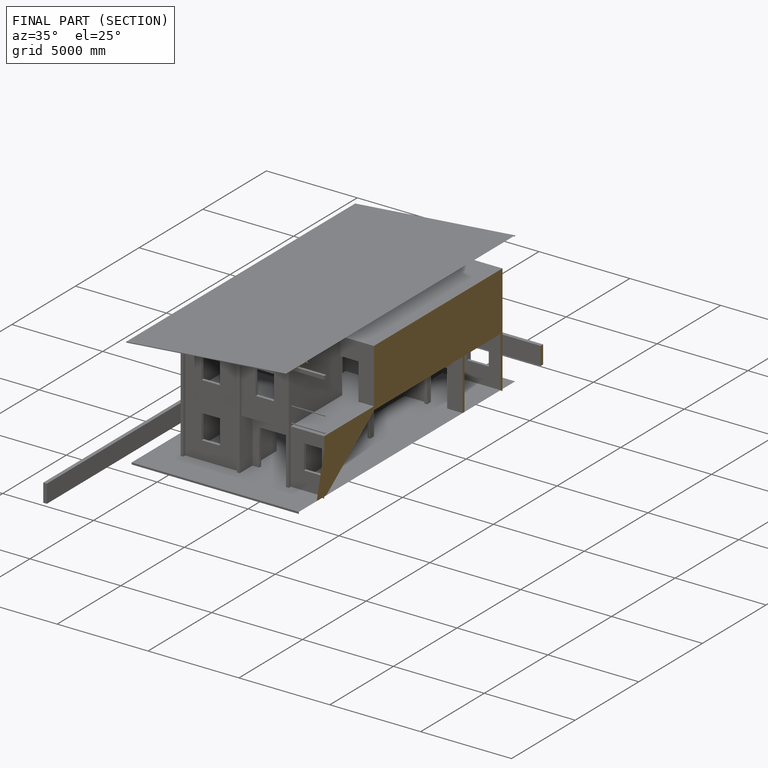
[diagram: finished part — half-section view (interior)]
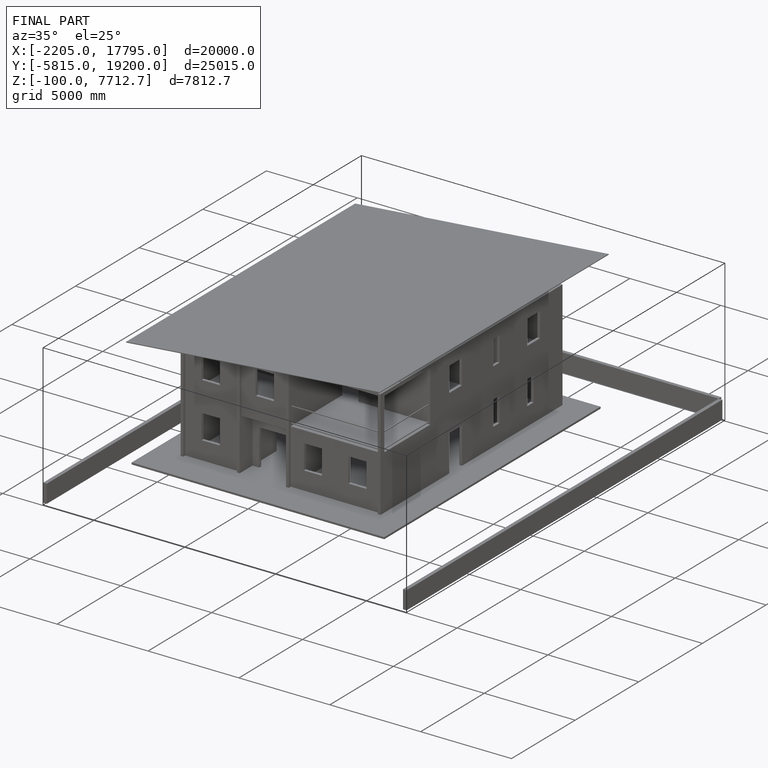
[diagram: finished part — iso view with bounding-box wireframe]
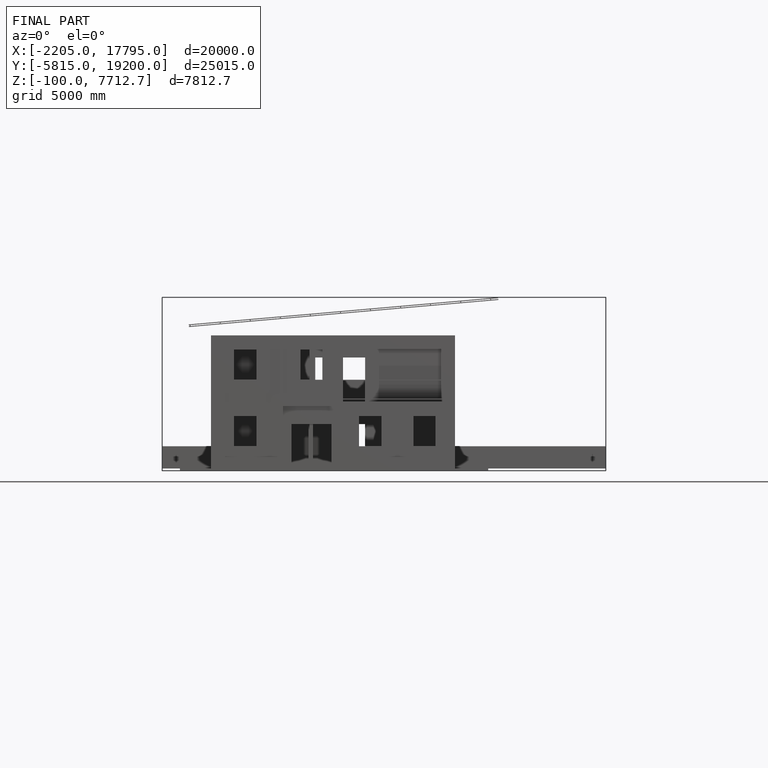
[diagram: finished part — front view with bounding-box wireframe]
